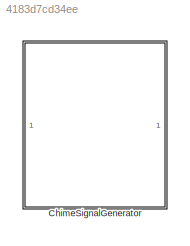
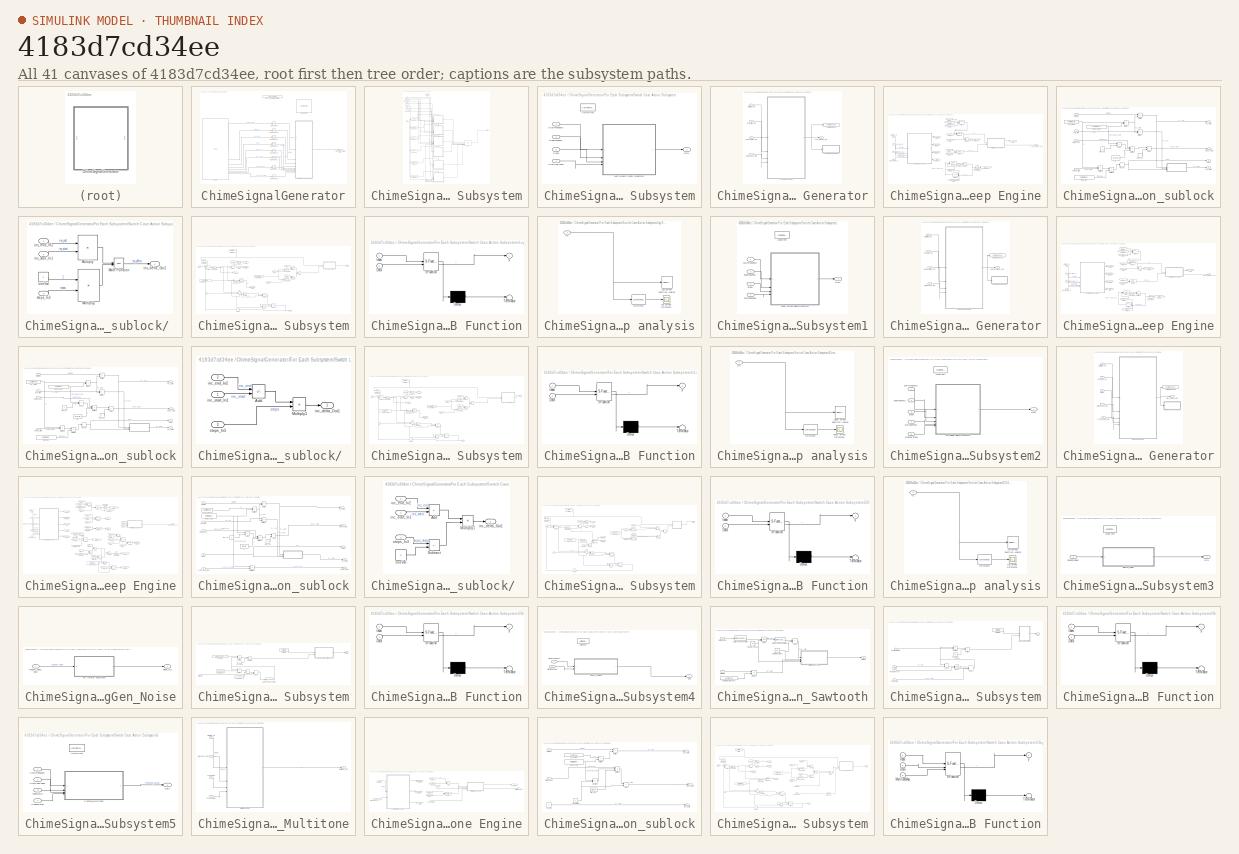
[diagram: thumbnail index - all 41 canvases of the model, root first then tree order]
MODEL slx_4183d7cd34ee
KIND library
CONFIG AbsTol = auto
CONFIG EnableMultiTasking = off
CONFIG FixedStep = auto
CONFIG MaxStep = auto
CONFIG MinStep = auto
CONFIG RelTol = 1e-3
CONFIG SampleTimeConstraint = Unconstrained
CONFIG SolverName = VariableStepAuto
CONFIG StartTime = 0.0
CONFIG StopTime = 10.0
BLOCK [SubSystem] ChimeSignalGenerator
BLOCK [Reference] ChimeSignalGenerator/FeaturePath  REF=FeaturePath/FeaturePath
  SourceBlock = FeaturePath/FeaturePath
  SourceType = Talaria Feature Path
BLOCK [SubSystem] ChimeSignalGenerator/For Each Subsystem
  TreatAsAtomicUnit = on
BLOCK [Inport] ChimeSignalGenerator/For Each Subsystem/CyclesPerSteps
  Partition = on
  PartitionDimension = 2
  PartitionOffset = 0
  PartitionWidth = 2
  Port = 8
BLOCK [DataTypeConversion] ChimeSignalGenerator/For Each Subsystem/Data Type Conversion
  OutDataTypeStr = single
  RndMeth = Floor
  SaturateOnIntegerOverflow = off
BLOCK [Inport] ChimeSignalGenerator/For Each Subsystem/EndFrequency
  Partition = on
  PartitionDimension = 2
  PartitionOffset = 0
  PartitionWidth = 2
  Port = 3
BLOCK [ForEach] ChimeSignalGenerator/For Each Subsystem/For Each
  DisableCoverage = on
BLOCK [Merge] ChimeSignalGenerator/For Each Subsystem/Merge
  Inputs = 6
BLOCK [Outport] ChimeSignalGenerator/For Each Subsystem/Out
  ConcatenationDimension = 2
BLOCK [Inport] ChimeSignalGenerator/For Each Subsystem/RandomNoise
  Partition = on
  PartitionDimension = 2
  PartitionOffset = 0
  PartitionWidth = 2
  Port = 7
BLOCK [Inport] ChimeSignalGenerator/For Each Subsystem/StartFrequency
  Partition = on
  PartitionDimension = 2
  PartitionOffset = 0
  PartitionWidth = 2
  Port = 2
BLOCK [Inport] ChimeSignalGenerator/For Each Subsystem/StartingPhase
  Partition = on
  PartitionDimension = 2
  PartitionOffset = 0
  PartitionWidth = 2
  Port = 5
BLOCK [Inport] ChimeSignalGenerator/For Each Subsystem/Steps
  Partition = on
  PartitionDimension = 2
  PartitionOffset = 0
  PartitionWidth = 2
  Port = 4
BLOCK [SwitchCase] ChimeSignalGenerator/For Each Subsystem/Switch Case
  ShowDefaultCase = off
BLOCK [SubSystem] ChimeSignalGenerator/For Each Subsystem/Switch Case Action Subsystem
  TreatAsAtomicUnit = on
BLOCK [ActionPort] ChimeSignalGenerator/For Each Subsystem/Switch Case Action Subsystem/Action Port
BLOCK [Inport] ChimeSignalGenerator/For Each Subsystem/Switch Case Action Subsystem/EndFrequency
  Port = 2
BLOCK [SubSystem] ChimeSignalGenerator/For Each Subsystem/Switch Case Action Subsystem/Log Sweep Signal Generator
BLOCK [SubSystem] ChimeSignalGenerator/For Each Subsystem/Switch Case Action Subsystem/Log Sweep Signal Generator/Log Sweep Engine
  TreatAsAtomicUnit = on
BLOCK [Reference] ChimeSignalGenerator/For Each Subsystem/Switch Case Action Subsystem/Log Sweep Signal Generator/Log Sweep Engine/Compare To Constant1  REF=simulink/Logic and Bit
Operations/Compare
To Constant
  NameLocation = top
  SourceBlock = simulink/Logic and Bit\nOperations/Compare\nTo Constant
  SourceType = Compare To Constant
BLOCK [SubSystem] ChimeSignalGenerator/For Each Subsystem/Switch Case Action Subsystem/Log Sweep Signal Generator/Log Sweep Engine/Configuration_sublock
BLOCK [SubSystem] ChimeSignalGenerator/For Each Subsystem/Switch Case Action Subsystem/Log Sweep Signal Generator/Log Sweep Engine/Configuration_sublock/ 
  TreatAsAtomicUnit = on
BLOCK [Math] ChimeSignalGenerator/For Each Subsystem/Switch Case Action Subsystem/Log Sweep Signal Generator/Log Sweep Engine/Configuration_sublock/ /Math Function
  Operator = pow
  SignedPower = on
BLOCK [Product] ChimeSignalGenerator/For Each Subsystem/Switch Case Action Subsystem/Log Sweep Signal Generator/Log Sweep Engine/Configuration_sublock/ /Multiply
  Inputs = */
BLOCK [Product] ChimeSignalGenerator/For Each Subsystem/Switch Case Action Subsystem/Log Sweep Signal Generator/Log Sweep Engine/Configuration_sublock/ /Multiply1
  Inputs = */
BLOCK [Outport] ChimeSignalGenerator/For Each Subsystem/Switch Case Action Subsystem/Log Sweep Signal Generator/Log Sweep Engine/Configuration_sublock/ /inc_delta_Out1
  VectorParamsAs1DForOutWhenUnconnected = off
BLOCK [Inport] ChimeSignalGenerator/For Each Subsystem/Switch Case Action Subsystem/Log Sweep Signal Generator/Log Sweep Engine/Configuration_sublock/ /inc_end_In2
  Port = 2
BLOCK [Inport] ChimeSignalGenerator/For Each Subsystem/Switch Case Action Subsystem/Log Sweep Signal Generator/Log Sweep Engine/Configuration_sublock/ /inc_start_In1
BLOCK [Constant] ChimeSignalGenerator/For Each Subsystem/Switch Case Action Subsystem/Log Sweep Signal Generator/Log Sweep Engine/Configuration_sublock/ /oneVal
  OutDataTypeStr = single
BLOCK [Inport] ChimeSignalGenerator/For Each Subsystem/Switch Case Action Subsystem/Log Sweep Signal Generator/Log Sweep Engine/Configuration_sublock/ /steps_In3
  Port = 3
BLOCK [Sum] ChimeSignalGenerator/For Each Subsystem/Switch Case Action Subsystem/Log Sweep Signal Generator/Log Sweep Engine/Configuration_sublock/Add
  IconShape = rectangular
BLOCK [Sum] ChimeSignalGenerator/For Each Subsystem/Switch Case Action Subsystem/Log Sweep Signal Generator/Log Sweep Engine/Configuration_sublock/Add1
  IconShape = rectangular
  Inputs = +-
BLOCK [Constant] ChimeSignalGenerator/For Each Subsystem/Switch Case Action Subsystem/Log Sweep Signal Generator/Log Sweep Engine/Configuration_sublock/Fs_value
  OutDataTypeStr = single
  Value = Config.FsHz
BLOCK [Product] ChimeSignalGenerator/For Each Subsystem/Switch Case Action Subsystem/Log Sweep Signal Generator/Log Sweep Engine/Configuration_sublock/Multiply
  Inputs = */
BLOCK [Product] ChimeSignalGenerator/For Each Subsystem/Switch Case Action Subsystem/Log Sweep Signal Generator/Log Sweep Engine/Configuration_sublock/Multiply1
  Inputs = */
BLOCK [Product] ChimeSignalGenerator/For Each Subsystem/Switch Case Action Subsystem/Log Sweep Signal Generator/Log Sweep Engine/Configuration_sublock/Multiply2
  Inputs = ***
BLOCK [Product] ChimeSignalGenerator/For Each Subsystem/Switch Case Action Subsystem/Log Sweep Signal Generator/Log Sweep Engine/Configuration_sublock/Multiply4
  Inputs = */
BLOCK [Product] ChimeSignalGenerator/For Each Subsystem/Switch Case Action Subsystem/Log Sweep Signal Generator/Log Sweep Engine/Configuration_sublock/Multiply5
  Inputs = **
BLOCK [Product] ChimeSignalGenerator/For Each Subsystem/Switch Case Action Subsystem/Log Sweep Signal Generator/Log Sweep Engine/Configuration_sublock/Multiply6
  Inputs = */
BLOCK [Rounding] ChimeSignalGenerator/For Each Subsystem/Switch Case Action Subsystem/Log Sweep Signal Generator/Log Sweep Engine/Configuration_sublock/Round
  Operator = round
BLOCK [Inport] ChimeSignalGenerator/For Each Subsystem/Switch Case Action Subsystem/Log Sweep Signal Generator/Log Sweep Engine/Configuration_sublock/end_freq
  Port = 2
BLOCK [Constant] ChimeSignalGenerator/For Each Subsystem/Switch Case Action Subsystem/Log Sweep Signal Generator/Log Sweep Engine/Configuration_sublock/framesize
  OutDataTypeStr = uint32
  Value = Config.FrameSizeSamples
  VectorParams1D = off
BLOCK [Outport] ChimeSignalGenerator/For Each Subsystem/Switch Case Action Subsystem/Log Sweep Signal Generator/Log Sweep Engine/Configuration_sublock/inc_delta
  Port = 4
  VectorParamsAs1DForOutWhenUnconnected = off
BLOCK [Outport] ChimeSignalGenerator/For Each Subsystem/Switch Case Action Subsystem/Log Sweep Signal Generator/Log Sweep Engine/Configuration_sublock/inc_start
  VectorParamsAs1DForOutWhenUnconnected = off
BLOCK [Outport] ChimeSignalGenerator/For Each Subsystem/Switch Case Action Subsystem/Log Sweep Signal Generator/Log Sweep Engine/Configuration_sublock/index_start
  Port = 3
  VectorParamsAs1DForOutWhenUnconnected = off
BLOCK [Constant] ChimeSignalGenerator/For Each Subsystem/Switch Case Action Subsystem/Log Sweep Signal Generator/Log Sweep Engine/Configuration_sublock/pi
  OutDataTypeStr = single
  Value = 1/(2*pi)
  VectorParams1D = off
BLOCK [Inport] ChimeSignalGenerator/For Each Subsystem/Switch Case Action Subsystem/Log Sweep Signal Generator/Log Sweep Engine/Configuration_sublock/start_freq
BLOCK [Inport] ChimeSignalGenerator/For Each Subsystem/Switch Case Action Subsystem/Log Sweep Signal Generator/Log Sweep Engine/Configuration_sublock/start_phase
  Port = 3
BLOCK [Outport] ChimeSignalGenerator/For Each Subsystem/Switch Case Action Subsystem/Log Sweep Signal Generator/Log Sweep Engine/Configuration_sublock/steps
  Port = 2
  VectorParamsAs1DForOutWhenUnconnected = off
BLOCK [Inport] ChimeSignalGenerator/For Each Subsystem/Switch Case Action Subsystem/Log Sweep Signal Generator/Log Sweep Engine/Configuration_sublock/sweep_time 
  Port = 4
BLOCK [Constant] ChimeSignalGenerator/For Each Subsystem/Switch Case Action Subsystem/Log Sweep Signal Generator/Log Sweep Engine/Configuration_sublock/tableLength
  OutDataTypeStr = single
  Value = Config.SineTableLength
  VectorParams1D = off
BLOCK [Constant] ChimeSignalGenerator/For Each Subsystem/Switch Case Action Subsystem/Log Sweep Signal Generator/Log Sweep Engine/Configuration_sublock/two_val
  OutDataTypeStr = uint32
  VectorParams1D = off
BLOCK [Constant] ChimeSignalGenerator/For Each Subsystem/Switch Case Action Subsystem/Log Sweep Signal Generator/Log Sweep Engine/Configuration_sublock/zero_Val
  OutDataTypeStr = single
  VectorParams1D = off
BLOCK [Constant] ChimeSignalGenerator/For Each Subsystem/Switch Case Action Subsystem/Log Sweep Signal Generator/Log Sweep Engine/Constant1
  OutDataTypeStr = single
BLOCK [Delay] ChimeSignalGenerator/For Each Subsystem/Switch Case Action Subsystem/Log Sweep Signal Generator/Log Sweep Engine/Delay
  DelayLength = 1
  InitialConditionSource = Input port
  InputPortMap = u0,p4
BLOCK [Delay] ChimeSignalGenerator/For Each Subsystem/Switch Case Action Subsystem/Log Sweep Signal Generator/Log Sweep Engine/Delay1
  DelayLength = 1
  InitialConditionSource = Input port
  InputPortMap = u0,p4
BLOCK [Delay] ChimeSignalGenerator/For Each Subsystem/Switch Case Action Subsystem/Log Sweep Signal Generator/Log Sweep Engine/Delay2
  DelayLength = 1
  InitialConditionSource = Input port
  InputPortMap = u0,p4
BLOCK [SubSystem] ChimeSignalGenerator/For Each Subsystem/Switch Case Action Subsystem/Log Sweep Signal Generator/Log Sweep Engine/For Iterator Subsystem
  TreatAsAtomicUnit = on
BLOCK [Sum] ChimeSignalGenerator/For Each Subsystem/Switch Case Action Subsystem/Log Sweep Signal Generator/Log Sweep Engine/For Iterator Subsystem/Add
  IconShape = rectangular
BLOCK [Sum] ChimeSignalGenerator/For Each Subsystem/Switch Case Action Subsystem/Log Sweep Signal Generator/Log Sweep Engine/For Iterator Subsystem/Add2
  IconShape = rectangular
BLOCK [Sum] ChimeSignalGenerator/For Each Subsystem/Switch Case Action Subsystem/Log Sweep Signal Generator/Log Sweep Engine/For Iterator Subsystem/Add3
  IconShape = rectangular
BLOCK [Reference] ChimeSignalGenerator/For Each Subsystem/Switch Case Action Subsystem/Log Sweep Signal Generator/Log Sweep Engine/For Iterator Subsystem/Bitwise AND  REF=simulink/Logic and Bit
Operations/Bitwise
Operator
  SourceBlock = simulink/Logic and Bit\nOperations/Bitwise\nOperator
  SourceType = Bitwise Operator
BLOCK [Reference] ChimeSignalGenerator/For Each Subsystem/Switch Case Action Subsystem/Log Sweep Signal Generator/Log Sweep Engine/For Iterator Subsystem/Compare To Constant  REF=simulink/Logic and Bit
Operations/Compare
To Constant
  SourceBlock = simulink/Logic and Bit\nOperations/Compare\nTo Constant
  SourceType = Compare To Constant
BLOCK [Constant] ChimeSignalGenerator/For Each Subsystem/Switch Case Action Subsystem/Log Sweep Signal Generator/Log Sweep Engine/For Iterator Subsystem/Constant1
  OutDataTypeStr = single
BLOCK [DataTypeConversion] ChimeSignalGenerator/For Each Subsystem/Switch Case Action Subsystem/Log Sweep Signal Generator/Log Sweep Engine/For Iterator Subsystem/Data Type Conversion
  OutDataTypeStr = uint32
  RndMeth = Floor
  SaturateOnIntegerOverflow = off
BLOCK [DataTypeConversion] ChimeSignalGenerator/For Each Subsystem/Switch Case Action Subsystem/Log Sweep Signal Generator/Log Sweep Engine/For Iterator Subsystem/Data Type Conversion1
  OutDataTypeStr = uint32
  RndMeth = Floor
  SaturateOnIntegerOverflow = off
BLOCK [Delay] ChimeSignalGenerator/For Each Subsystem/Switch Case Action Subsystem/Log Sweep Signal Generator/Log Sweep Engine/For Iterator Subsystem/Delay
  DelayLength = 0
  InputPortMap = u0
BLOCK [ForIterator] ChimeSignalGenerator/For Each Subsystem/Switch Case Action Subsystem/Log Sweep Signal Generator/Log Sweep Engine/For Iterator Subsystem/For Iterator
  IterationLimit = Config.FrameSizeSamples
  ResetStates = reset
BLOCK [From] ChimeSignalGenerator/For Each Subsystem/Switch Case Action Subsystem/Log Sweep Signal Generator/Log Sweep Engine/For Iterator Subsystem/From
  GotoTag = w0
BLOCK [From] ChimeSignalGenerator/For Each Subsystem/Switch Case Action Subsystem/Log Sweep Signal Generator/Log Sweep Engine/For Iterator Subsystem/From1
  GotoTag = w1
BLOCK [From] ChimeSignalGenerator/For Each Subsystem/Switch Case Action Subsystem/Log Sweep Signal Generator/Log Sweep Engine/For Iterator Subsystem/From2
  GotoTag = m0
BLOCK [From] ChimeSignalGenerator/For Each Subsystem/Switch Case Action Subsystem/Log Sweep Signal Generator/Log Sweep Engine/For Iterator Subsystem/From4
  GotoTag = m1
BLOCK [Goto] ChimeSignalGenerator/For Each Subsystem/Switch Case Action Subsystem/Log Sweep Signal Generator/Log Sweep Engine/For Iterator Subsystem/Goto
  GotoTag = w0
BLOCK [Goto] ChimeSignalGenerator/For Each Subsystem/Switch Case Action Subsystem/Log Sweep Signal Generator/Log Sweep Engine/For Iterator Subsystem/Goto1
  GotoTag = w1
BLOCK [Goto] ChimeSignalGenerator/For Each Subsystem/Switch Case Action Subsystem/Log Sweep Signal Generator/Log Sweep Engine/For Iterator Subsystem/Goto2
  GotoTag = m0
BLOCK [Goto] ChimeSignalGenerator/For Each Subsystem/Switch Case Action Subsystem/Log Sweep Signal Generator/Log Sweep Engine/For Iterator Subsystem/Goto3
  GotoTag = m1
BLOCK [Inport] ChimeSignalGenerator/For Each Subsystem/Switch Case Action Subsystem/Log Sweep Signal Generator/Log Sweep Engine/For Iterator Subsystem/Inc 
BLOCK [Selector] ChimeSignalGenerator/For Each Subsystem/Switch Case Action Subsystem/Log Sweep Signal Generator/Log Sweep Engine/For Iterator Subsystem/LookUpTable
  IndexMode = Zero-based
  IndexOptions = Index vector (port)
  Indices = [1 3]
  InputPortWidth = Config.SineTableLength
  OutputSizes = 1
BLOCK [Selector] ChimeSignalGenerator/For Each Subsystem/Switch Case Action Subsystem/Log Sweep Signal Generator/Log Sweep Engine/For Iterator Subsystem/LookUpTable1
  IndexMode = Zero-based
  IndexOptions = Index vector (port)
  Indices = [1 3]
  InputPortWidth = Config.SineTableLength
  OutputSizes = 1
BLOCK [SubSystem] ChimeSignalGenerator/For Each Subsystem/Switch Case Action Subsystem/Log Sweep Signal Generator/Log Sweep Engine/For Iterator Subsystem/MATLAB Function
  ErrorFcn = Stateflow.Translate.translate
  PermitHierarchicalResolution = ExplicitOnly
  SFBlockType = MATLAB Function
  TreatAsAtomicUnit = on
BLOCK [Demux] ChimeSignalGenerator/For Each Subsystem/Switch Case Action Subsystem/Log Sweep Signal Generator/Log Sweep Engine/For Iterator Subsystem/MATLAB Function/ Demux 
  Outputs = 1
BLOCK [S-Function] ChimeSignalGenerator/For Each Subsystem/Switch Case Action Subsystem/Log Sweep Signal Generator/Log Sweep Engine/For Iterator Subsystem/MATLAB Function/ SFunction 
  EnableBusSupport = off
  FunctionName = sf_sfun
  Parameters = frameSize_samples
  PortCounts = [2 2]
  SFcnIsStateOwnerBlock = off
  SFunctionDeploymentMode = off
  Tag = Stateflow S-Function 59
BLOCK [Terminator] ChimeSignalGenerator/For Each Subsystem/Switch Case Action Subsystem/Log Sweep Signal Generator/Log Sweep Engine/For Iterator Subsystem/MATLAB Function/ Terminator 
BLOCK [Inport] ChimeSignalGenerator/For Each Subsystem/Switch Case Action Subsystem/Log Sweep Signal Generator/Log Sweep Engine/For Iterator Subsystem/MATLAB Function/Data
  Port = 2
BLOCK [Inport] ChimeSignalGenerator/For Each Subsystem/Switch Case Action Subsystem/Log Sweep Signal Generator/Log Sweep Engine/For Iterator Subsystem/MATLAB Function/Index
BLOCK [Outport] ChimeSignalGenerator/For Each Subsystem/Switch Case Action Subsystem/Log Sweep Signal Generator/Log Sweep Engine/For Iterator Subsystem/MATLAB Function/y
  VectorParamsAs1DForOutWhenUnconnected = off
BLOCK [Memory] ChimeSignalGenerator/For Each Subsystem/Switch Case Action Subsystem/Log Sweep Signal Generator/Log Sweep Engine/For Iterator Subsystem/Memory
  InheritSampleTime = on
BLOCK [Outport] ChimeSignalGenerator/For Each Subsystem/Switch Case Action Subsystem/Log Sweep Signal Generator/Log Sweep Engine/For Iterator Subsystem/Out1
  Port = 2
  VectorParamsAs1DForOutWhenUnconnected = off
BLOCK [Product] ChimeSignalGenerator/For Each Subsystem/Switch Case Action Subsystem/Log Sweep Signal Generator/Log Sweep Engine/For Iterator Subsystem/Product
BLOCK [Product] ChimeSignalGenerator/For Each Subsystem/Switch Case Action Subsystem/Log Sweep Signal Generator/Log Sweep Engine/For Iterator Subsystem/Product1
BLOCK [Sum] ChimeSignalGenerator/For Each Subsystem/Switch Case Action Subsystem/Log Sweep Signal Generator/Log Sweep Engine/For Iterator Subsystem/Subtract
  IconShape = rectangular
  Inputs = +-
  OutDataTypeStr = single
BLOCK [Sum] ChimeSignalGenerator/For Each Subsystem/Switch Case Action Subsystem/Log Sweep Signal Generator/Log Sweep Engine/For Iterator Subsystem/Subtract1
  IconShape = rectangular
  Inputs = +-
  OutDataTypeStr = single
BLOCK [Sum] ChimeSignalGenerator/For Each Subsystem/Switch Case Action Subsystem/Log Sweep Signal Generator/Log Sweep Engine/For Iterator Subsystem/Subtract2
  IconShape = rectangular
  Inputs = +-
BLOCK [Switch] ChimeSignalGenerator/For Each Subsystem/Switch Case Action Subsystem/Log Sweep Signal Generator/Log Sweep Engine/For Iterator Subsystem/Switch
  Criteria = u2 ~= 0
  InputSameDT = off
  SaturateOnIntegerOverflow = off
BLOCK [Switch] ChimeSignalGenerator/For Each Subsystem/Switch Case Action Subsystem/Log Sweep Signal Generator/Log Sweep Engine/For Iterator Subsystem/Switch1
  InputSameDT = off
  SaturateOnIntegerOverflow = off
BLOCK [Switch] ChimeSignalGenerator/For Each Subsystem/Switch Case Action Subsystem/Log Sweep Signal Generator/Log Sweep Engine/For Iterator Subsystem/Switch2
  InputSameDT = off
  SaturateOnIntegerOverflow = off
BLOCK [Constant] ChimeSignalGenerator/For Each Subsystem/Switch Case Action Subsystem/Log Sweep Signal Generator/Log Sweep Engine/For Iterator Subsystem/TableLength
  OutDataTypeStr = single
  Value = Config.SineTableLength
  VectorParams1D = off
BLOCK [Inport] ChimeSignalGenerator/For Each Subsystem/Switch Case Action Subsystem/Log Sweep Signal Generator/Log Sweep Engine/For Iterator Subsystem/index
  Port = 2
BLOCK [Outport] ChimeSignalGenerator/For Each Subsystem/Switch Case Action Subsystem/Log Sweep Signal Generator/Log Sweep Engine/For Iterator Subsystem/m
  VectorParamsAs1DForOutWhenUnconnected = off
BLOCK [Constant] ChimeSignalGenerator/For Each Subsystem/Switch Case Action Subsystem/Log Sweep Signal Generator/Log Sweep Engine/For Iterator Subsystem/sineTable
  OutDataTypeStr = single
  Value = Config.SineTable
BLOCK [From] ChimeSignalGenerator/For Each Subsystem/Switch Case Action Subsystem/Log Sweep Signal Generator/Log Sweep Engine/From
  GotoTag = Delta
BLOCK [From] ChimeSignalGenerator/For Each Subsystem/Switch Case Action Subsystem/Log Sweep Signal Generator/Log Sweep Engine/From1
  GotoTag = Index_init
BLOCK [From] ChimeSignalGenerator/For Each Subsystem/Switch Case Action Subsystem/Log Sweep Signal Generator/Log Sweep Engine/From2
  GotoTag = Step_Init
BLOCK [From] ChimeSignalGenerator/For Each Subsystem/Switch Case Action Subsystem/Log Sweep Signal Generator/Log Sweep Engine/From3
  GotoTag = If_Step_Gt_zero
BLOCK [From] ChimeSignalGenerator/For Each Subsystem/Switch Case Action Subsystem/Log Sweep Signal Generator/Log Sweep Engine/From4
  GotoTag = m
BLOCK [From] ChimeSignalGenerator/For Each Subsystem/Switch Case Action Subsystem/Log Sweep Signal Generator/Log Sweep Engine/From5
  GotoTag = If_Step_Gt_zero
BLOCK [From] ChimeSignalGenerator/For Each Subsystem/Switch Case Action Subsystem/Log Sweep Signal Generator/Log Sweep Engine/From6
  GotoTag = Inc_add_delta
BLOCK [From] ChimeSignalGenerator/For Each Subsystem/Switch Case Action Subsystem/Log Sweep Signal Generator/Log Sweep Engine/From7
  GotoTag = Inc_init
BLOCK [From] ChimeSignalGenerator/For Each Subsystem/Switch Case Action Subsystem/Log Sweep Signal Generator/Log Sweep Engine/From8
  GotoTag = Inc_init
BLOCK [Goto] ChimeSignalGenerator/For Each Subsystem/Switch Case Action Subsystem/Log Sweep Signal Generator/Log Sweep Engine/Goto
  GotoTag = Delta
BLOCK [Goto] ChimeSignalGenerator/For Each Subsystem/Switch Case Action Subsystem/Log Sweep Signal Generator/Log Sweep Engine/Goto1
  GotoTag = Index_init
BLOCK [Goto] ChimeSignalGenerator/For Each Subsystem/Switch Case Action Subsystem/Log Sweep Signal Generator/Log Sweep Engine/Goto2
  GotoTag = Step_Init
BLOCK [Goto] ChimeSignalGenerator/For Each Subsystem/Switch Case Action Subsystem/Log Sweep Signal Generator/Log Sweep Engine/Goto3
  GotoTag = If_Step_Gt_zero
BLOCK [Goto] ChimeSignalGenerator/For Each Subsystem/Switch Case Action Subsystem/Log Sweep Signal Generator/Log Sweep Engine/Goto4
  GotoTag = m
BLOCK [Goto] ChimeSignalGenerator/For Each Subsystem/Switch Case Action Subsystem/Log Sweep Signal Generator/Log Sweep Engine/Goto5
  GotoTag = Inc_add_delta
BLOCK [Goto] ChimeSignalGenerator/For Each Subsystem/Switch Case Action Subsystem/Log Sweep Signal Generator/Log Sweep Engine/Goto6
  GotoTag = Inc_init
BLOCK [Outport] ChimeSignalGenerator/For Each Subsystem/Switch Case Action Subsystem/Log Sweep Signal Generator/Log Sweep Engine/Log_Sweep_Out
  VectorParamsAs1DForOutWhenUnconnected = off
BLOCK [Product] ChimeSignalGenerator/For Each Subsystem/Switch Case Action Subsystem/Log Sweep Signal Generator/Log Sweep Engine/Product
BLOCK [Sum] ChimeSignalGenerator/For Each Subsystem/Switch Case Action Subsystem/Log Sweep Signal Generator/Log Sweep Engine/Subtract
  IconShape = rectangular
  Inputs = +-
BLOCK [Switch] ChimeSignalGenerator/For Each Subsystem/Switch Case Action Subsystem/Log Sweep Signal Generator/Log Sweep Engine/Switch1
  Criteria = u2 ~= 0
  InputSameDT = off
  NameLocation = top
  SaturateOnIntegerOverflow = off
BLOCK [Switch] ChimeSignalGenerator/For Each Subsystem/Switch Case Action Subsystem/Log Sweep Signal Generator/Log Sweep Engine/Switch2
  Criteria = u2 ~= 0
  InputSameDT = off
  SaturateOnIntegerOverflow = off
BLOCK [Inport] ChimeSignalGenerator/For Each Subsystem/Switch Case Action Subsystem/Log Sweep Signal Generator/Log Sweep Engine/end_freq_In
  Port = 2
BLOCK [Inport] ChimeSignalGenerator/For Each Subsystem/Switch Case Action Subsystem/Log Sweep Signal Generator/Log Sweep Engine/start_freq_In
BLOCK [Inport] ChimeSignalGenerator/For Each Subsystem/Switch Case Action Subsystem/Log Sweep Signal Generator/Log Sweep Engine/start_phase_In
  Port = 4
BLOCK [Inport] ChimeSignalGenerator/For Each Subsystem/Switch Case Action Subsystem/Log Sweep Signal Generator/Log Sweep Engine/sweep_time_In
  Port = 3
BLOCK [SubSystem] ChimeSignalGenerator/For Each Subsystem/Switch Case Action Subsystem/Log Sweep Signal Generator/Log sweep analysis
  Commented = on
BLOCK [Reference] ChimeSignalGenerator/For Each Subsystem/Switch Case Action Subsystem/Log Sweep Signal Generator/Log sweep analysis/Difference  REF=dspmathops/Difference
  SourceBlock = dspmathops/Difference
  SourceType = Difference
  UserDataPersistent = on
BLOCK [Inport] ChimeSignalGenerator/For Each Subsystem/Switch Case Action Subsystem/Log Sweep Signal Generator/Log sweep analysis/In1
BLOCK [Scope] ChimeSignalGenerator/For Each Subsystem/Switch Case Action Subsystem/Log Sweep Signal Generator/Log sweep analysis/Log Sweep Difference
  DefaultConfigurationName = spbscopes.TimeScopeBlockCfg
  Floating = off
  NumInputPorts = 1
  ScopeSpecificationString = spbscopes.TimeScopeBlockCfg('CurrentConfiguration', extmgr.ConfigurationSet(extmgr.Configuration('Core','General UI',true,'FigureColor',[0.156862745098039 0.156862745098039 0.156862745098039]),extmgr.Configuration('Core','Source UI',true),extmgr.Configuration('Sources','WiredSimulink',true,'DataLoggingVariableName','ScopeData6'),extmgr.Configuration('Visuals','Time Domain',true,'DisplayPropertyDef...<+1454ch>  <repeated x3 — deduplicated; at blocks: Log Sweep Difference, Linear Sweep Difference, Old Sweep Difference>
  UserDataPersistent = on
BLOCK [SpectrumAnalyzer] ChimeSignalGenerator/For Each Subsystem/Switch Case Action Subsystem/Log Sweep Signal Generator/Log sweep analysis/Log Sweep Spectrum Analyzer
  ScopeSpecificationString = spbscopes.SpectrumAnalyzerBlockCfg('CurrentConfiguration', extmgr.ConfigurationSet(extmgr.Configuration('Core','General UI',true),extmgr.Configuration('Core','Source UI',true),extmgr.Configuration('Sources','WiredSimulink',true),extmgr.Configuration('Visuals','Spectrum',true,'AxesProperties',struct('Color',{[0 0 0],[0 0 0]},'XColor',{[0.686274509803922 0.686274509803922 0.686274509803922],[0.68627...<+2154ch>  <repeated x3 — deduplicated; at blocks: Log Sweep Spectrum Analyzer, Linear Sweep Spectrum Analyzer, Old Sweep Spectrum Analyzer>
BLOCK [Outport] ChimeSignalGenerator/For Each Subsystem/Switch Case Action Subsystem/Log Sweep Signal Generator/Log_Sweep_Out
  VectorParamsAs1DForOutWhenUnconnected = off
BLOCK [ToWorkspace] ChimeSignalGenerator/For Each Subsystem/Switch Case Action Subsystem/Log Sweep Signal Generator/To Workspace
  Commented = on
  MaxDataPoints = inf
  SampleTime = -1
  Save2DSignal = 2-D array (concatenate along first dimension)
  VariableName = LogSweepOutput
BLOCK [Inport] ChimeSignalGenerator/For Each Subsystem/Switch Case Action Subsystem/Log Sweep Signal Generator/end_freq_Hz
  Port = 2
BLOCK [Inport] ChimeSignalGenerator/For Each Subsystem/Switch Case Action Subsystem/Log Sweep Signal Generator/start_freq_Hz
BLOCK [Inport] ChimeSignalGenerator/For Each Subsystem/Switch Case Action Subsystem/Log Sweep Signal Generator/start_phase_rad
  Port = 4
BLOCK [Inport] ChimeSignalGenerator/For Each Subsystem/Switch Case Action Subsystem/Log Sweep Signal Generator/sweep_time_sec
  Port = 3
BLOCK [Outport] ChimeSignalGenerator/For Each Subsystem/Switch Case Action Subsystem/Out1
BLOCK [Inport] ChimeSignalGenerator/For Each Subsystem/Switch Case Action Subsystem/StartFrequency
BLOCK [Inport] ChimeSignalGenerator/For Each Subsystem/Switch Case Action Subsystem/StartingPhase
  Port = 4
BLOCK [Inport] ChimeSignalGenerator/For Each Subsystem/Switch Case Action Subsystem/Steps
  Port = 3
BLOCK [SubSystem] ChimeSignalGenerator/For Each Subsystem/Switch Case Action Subsystem1
  TreatAsAtomicUnit = on
BLOCK [ActionPort] ChimeSignalGenerator/For Each Subsystem/Switch Case Action Subsystem1/Action Port
BLOCK [Inport] ChimeSignalGenerator/For Each Subsystem/Switch Case Action Subsystem1/EndFrequency
  Port = 2
BLOCK [SubSystem] ChimeSignalGenerator/For Each Subsystem/Switch Case Action Subsystem1/Linear Sweep Signal Generator
BLOCK [SubSystem] ChimeSignalGenerator/For Each Subsystem/Switch Case Action Subsystem1/Linear Sweep Signal Generator/Linear Sweep Engine
  TreatAsAtomicUnit = on
BLOCK [Sum] ChimeSignalGenerator/For Each Subsystem/Switch Case Action Subsystem1/Linear Sweep Signal Generator/Linear Sweep Engine/Add
  IconShape = rectangular
BLOCK [Reference] ChimeSignalGenerator/For Each Subsystem/Switch Case Action Subsystem1/Linear Sweep Signal Generator/Linear Sweep Engine/Compare To Constant1  REF=simulink/Logic and Bit
Operations/Compare
To Constant
  NameLocation = top
  SourceBlock = simulink/Logic and Bit\nOperations/Compare\nTo Constant
  SourceType = Compare To Constant
BLOCK [SubSystem] ChimeSignalGenerator/For Each Subsystem/Switch Case Action Subsystem1/Linear Sweep Signal Generator/Linear Sweep Engine/Configuration_sublock
BLOCK [SubSystem] ChimeSignalGenerator/For Each Subsystem/Switch Case Action Subsystem1/Linear Sweep Signal Generator/Linear Sweep Engine/Configuration_sublock/ 
  TreatAsAtomicUnit = on
BLOCK [Sum] ChimeSignalGenerator/For Each Subsystem/Switch Case Action Subsystem1/Linear Sweep Signal Generator/Linear Sweep Engine/Configuration_sublock/ /Add
  IconShape = rectangular
  Inputs = +-
BLOCK [Product] ChimeSignalGenerator/For Each Subsystem/Switch Case Action Subsystem1/Linear Sweep Signal Generator/Linear Sweep Engine/Configuration_sublock/ /Multiply1
  Inputs = */
BLOCK [Outport] ChimeSignalGenerator/For Each Subsystem/Switch Case Action Subsystem1/Linear Sweep Signal Generator/Linear Sweep Engine/Configuration_sublock/ /inc_delta_Out1
  VectorParamsAs1DForOutWhenUnconnected = off
BLOCK [Inport] ChimeSignalGenerator/For Each Subsystem/Switch Case Action Subsystem1/Linear Sweep Signal Generator/Linear Sweep Engine/Configuration_sublock/ /inc_end_In2
  Port = 2
BLOCK [Inport] ChimeSignalGenerator/For Each Subsystem/Switch Case Action Subsystem1/Linear Sweep Signal Generator/Linear Sweep Engine/Configuration_sublock/ /inc_start_In1
BLOCK [Inport] ChimeSignalGenerator/For Each Subsystem/Switch Case Action Subsystem1/Linear Sweep Signal Generator/Linear Sweep Engine/Configuration_sublock/ /steps_In3
  Port = 3
BLOCK [Sum] ChimeSignalGenerator/For Each Subsystem/Switch Case Action Subsystem1/Linear Sweep Signal Generator/Linear Sweep Engine/Configuration_sublock/Add
  IconShape = rectangular
BLOCK [Sum] ChimeSignalGenerator/For Each Subsystem/Switch Case Action Subsystem1/Linear Sweep Signal Generator/Linear Sweep Engine/Configuration_sublock/Add1
  IconShape = rectangular
  Inputs = +-
BLOCK [Constant] ChimeSignalGenerator/For Each Subsystem/Switch Case Action Subsystem1/Linear Sweep Signal Generator/Linear Sweep Engine/Configuration_sublock/Fs_value
  OutDataTypeStr = single
  Value = Config.FsHz
BLOCK [Product] ChimeSignalGenerator/For Each Subsystem/Switch Case Action Subsystem1/Linear Sweep Signal Generator/Linear Sweep Engine/Configuration_sublock/Multiply
  Inputs = */
BLOCK [Product] ChimeSignalGenerator/For Each Subsystem/Switch Case Action Subsystem1/Linear Sweep Signal Generator/Linear Sweep Engine/Configuration_sublock/Multiply1
  Inputs = */
BLOCK [Product] ChimeSignalGenerator/For Each Subsystem/Switch Case Action Subsystem1/Linear Sweep Signal Generator/Linear Sweep Engine/Configuration_sublock/Multiply2
  Inputs = ***
BLOCK [Product] ChimeSignalGenerator/For Each Subsystem/Switch Case Action Subsystem1/Linear Sweep Signal Generator/Linear Sweep Engine/Configuration_sublock/Multiply4
  Inputs = */
BLOCK [Product] ChimeSignalGenerator/For Each Subsystem/Switch Case Action Subsystem1/Linear Sweep Signal Generator/Linear Sweep Engine/Configuration_sublock/Multiply5
  Inputs = **
BLOCK [Product] ChimeSignalGenerator/For Each Subsystem/Switch Case Action Subsystem1/Linear Sweep Signal Generator/Linear Sweep Engine/Configuration_sublock/Multiply6
  Inputs = */
BLOCK [Rounding] ChimeSignalGenerator/For Each Subsystem/Switch Case Action Subsystem1/Linear Sweep Signal Generator/Linear Sweep Engine/Configuration_sublock/Round
  Operator = round
BLOCK [Inport] ChimeSignalGenerator/For Each Subsystem/Switch Case Action Subsystem1/Linear Sweep Signal Generator/Linear Sweep Engine/Configuration_sublock/end_freq
  Port = 2
BLOCK [Constant] ChimeSignalGenerator/For Each Subsystem/Switch Case Action Subsystem1/Linear Sweep Signal Generator/Linear Sweep Engine/Configuration_sublock/framesize
  OutDataTypeStr = uint32
  Value = Config.FrameSizeSamples
  VectorParams1D = off
BLOCK [Outport] ChimeSignalGenerator/For Each Subsystem/Switch Case Action Subsystem1/Linear Sweep Signal Generator/Linear Sweep Engine/Configuration_sublock/inc_delta
  Port = 4
  VectorParamsAs1DForOutWhenUnconnected = off
BLOCK [Outport] ChimeSignalGenerator/For Each Subsystem/Switch Case Action Subsystem1/Linear Sweep Signal Generator/Linear Sweep Engine/Configuration_sublock/inc_start
  VectorParamsAs1DForOutWhenUnconnected = off
BLOCK [Outport] ChimeSignalGenerator/For Each Subsystem/Switch Case Action Subsystem1/Linear Sweep Signal Generator/Linear Sweep Engine/Configuration_sublock/index_start
  Port = 3
  VectorParamsAs1DForOutWhenUnconnected = off
BLOCK [Constant] ChimeSignalGenerator/For Each Subsystem/Switch Case Action Subsystem1/Linear Sweep Signal Generator/Linear Sweep Engine/Configuration_sublock/pi
  OutDataTypeStr = single
  Value = 1/(2*pi)
  VectorParams1D = off
BLOCK [Inport] ChimeSignalGenerator/For Each Subsystem/Switch Case Action Subsystem1/Linear Sweep Signal Generator/Linear Sweep Engine/Configuration_sublock/start_freq
BLOCK [Inport] ChimeSignalGenerator/For Each Subsystem/Switch Case Action Subsystem1/Linear Sweep Signal Generator/Linear Sweep Engine/Configuration_sublock/start_phase
  Port = 3
BLOCK [Outport] ChimeSignalGenerator/For Each Subsystem/Switch Case Action Subsystem1/Linear Sweep Signal Generator/Linear Sweep Engine/Configuration_sublock/steps
  Port = 2
  VectorParamsAs1DForOutWhenUnconnected = off
BLOCK [Inport] ChimeSignalGenerator/For Each Subsystem/Switch Case Action Subsystem1/Linear Sweep Signal Generator/Linear Sweep Engine/Configuration_sublock/sweep_time 
  Port = 4
BLOCK [Constant] ChimeSignalGenerator/For Each Subsystem/Switch Case Action Subsystem1/Linear Sweep Signal Generator/Linear Sweep Engine/Configuration_sublock/tableLength
  OutDataTypeStr = single
  Value = Config.SineTableLength
  VectorParams1D = off
BLOCK [Constant] ChimeSignalGenerator/For Each Subsystem/Switch Case Action Subsystem1/Linear Sweep Signal Generator/Linear Sweep Engine/Configuration_sublock/two_val
  OutDataTypeStr = uint32
  VectorParams1D = off
BLOCK [Constant] ChimeSignalGenerator/For Each Subsystem/Switch Case Action Subsystem1/Linear Sweep Signal Generator/Linear Sweep Engine/Configuration_sublock/zero_Val
  OutDataTypeStr = single
  VectorParams1D = off
BLOCK [Constant] ChimeSignalGenerator/For Each Subsystem/Switch Case Action Subsystem1/Linear Sweep Signal Generator/Linear Sweep Engine/Constant1
  OutDataTypeStr = single
BLOCK [Delay] ChimeSignalGenerator/For Each Subsystem/Switch Case Action Subsystem1/Linear Sweep Signal Generator/Linear Sweep Engine/Delay
  DelayLength = 1
  InitialConditionSource = Input port
  InputPortMap = u0,p4
BLOCK [Delay] ChimeSignalGenerator/For Each Subsystem/Switch Case Action Subsystem1/Linear Sweep Signal Generator/Linear Sweep Engine/Delay1
  DelayLength = 1
  InitialConditionSource = Input port
  InputPortMap = u0,p4
BLOCK [Delay] ChimeSignalGenerator/For Each Subsystem/Switch Case Action Subsystem1/Linear Sweep Signal Generator/Linear Sweep Engine/Delay2
  DelayLength = 1
  InitialConditionSource = Input port
  InputPortMap = u0,p4
BLOCK [SubSystem] ChimeSignalGenerator/For Each Subsystem/Switch Case Action Subsystem1/Linear Sweep Signal Generator/Linear Sweep Engine/For Iterator Subsystem
  TreatAsAtomicUnit = on
BLOCK [Sum] ChimeSignalGenerator/For Each Subsystem/Switch Case Action Subsystem1/Linear Sweep Signal Generator/Linear Sweep Engine/For Iterator Subsystem/Add
  IconShape = rectangular
BLOCK [Sum] ChimeSignalGenerator/For Each Subsystem/Switch Case Action Subsystem1/Linear Sweep Signal Generator/Linear Sweep Engine/For Iterator Subsystem/Add2
  IconShape = rectangular
BLOCK [Sum] ChimeSignalGenerator/For Each Subsystem/Switch Case Action Subsystem1/Linear Sweep Signal Generator/Linear Sweep Engine/For Iterator Subsystem/Add3
  IconShape = rectangular
BLOCK [Reference] ChimeSignalGenerator/For Each Subsystem/Switch Case Action Subsystem1/Linear Sweep Signal Generator/Linear Sweep Engine/For Iterator Subsystem/Bitwise AND  REF=simulink/Logic and Bit
Operations/Bitwise
Operator
  SourceBlock = simulink/Logic and Bit\nOperations/Bitwise\nOperator
  SourceType = Bitwise Operator
BLOCK [Reference] ChimeSignalGenerator/For Each Subsystem/Switch Case Action Subsystem1/Linear Sweep Signal Generator/Linear Sweep Engine/For Iterator Subsystem/Compare To Constant  REF=simulink/Logic and Bit
Operations/Compare
To Constant
  SourceBlock = simulink/Logic and Bit\nOperations/Compare\nTo Constant
  SourceType = Compare To Constant
BLOCK [Constant] ChimeSignalGenerator/For Each Subsystem/Switch Case Action Subsystem1/Linear Sweep Signal Generator/Linear Sweep Engine/For Iterator Subsystem/Constant1
  OutDataTypeStr = single
BLOCK [DataTypeConversion] ChimeSignalGenerator/For Each Subsystem/Switch Case Action Subsystem1/Linear Sweep Signal Generator/Linear Sweep Engine/For Iterator Subsystem/Data Type Conversion
  OutDataTypeStr = uint32
  RndMeth = Floor
  SaturateOnIntegerOverflow = off
BLOCK [DataTypeConversion] ChimeSignalGenerator/For Each Subsystem/Switch Case Action Subsystem1/Linear Sweep Signal Generator/Linear Sweep Engine/For Iterator Subsystem/Data Type Conversion1
  OutDataTypeStr = uint32
  RndMeth = Floor
  SaturateOnIntegerOverflow = off
BLOCK [Delay] ChimeSignalGenerator/For Each Subsystem/Switch Case Action Subsystem1/Linear Sweep Signal Generator/Linear Sweep Engine/For Iterator Subsystem/Delay
  DelayLength = 0
  InputPortMap = u0
BLOCK [ForIterator] ChimeSignalGenerator/For Each Subsystem/Switch Case Action Subsystem1/Linear Sweep Signal Generator/Linear Sweep Engine/For Iterator Subsystem/For Iterator
  IterationLimit = Config.FrameSizeSamples
  ResetStates = reset
BLOCK [From] ChimeSignalGenerator/For Each Subsystem/Switch Case Action Subsystem1/Linear Sweep Signal Generator/Linear Sweep Engine/For Iterator Subsystem/From
  GotoTag = w0
BLOCK [From] ChimeSignalGenerator/For Each Subsystem/Switch Case Action Subsystem1/Linear Sweep Signal Generator/Linear Sweep Engine/For Iterator Subsystem/From1
  GotoTag = w1
BLOCK [From] ChimeSignalGenerator/For Each Subsystem/Switch Case Action Subsystem1/Linear Sweep Signal Generator/Linear Sweep Engine/For Iterator Subsystem/From2
  GotoTag = m0
BLOCK [From] ChimeSignalGenerator/For Each Subsystem/Switch Case Action Subsystem1/Linear Sweep Signal Generator/Linear Sweep Engine/For Iterator Subsystem/From4
  GotoTag = m1
BLOCK [Goto] ChimeSignalGenerator/For Each Subsystem/Switch Case Action Subsystem1/Linear Sweep Signal Generator/Linear Sweep Engine/For Iterator Subsystem/Goto
  GotoTag = w0
BLOCK [Goto] ChimeSignalGenerator/For Each Subsystem/Switch Case Action Subsystem1/Linear Sweep Signal Generator/Linear Sweep Engine/For Iterator Subsystem/Goto1
  GotoTag = w1
BLOCK [Goto] ChimeSignalGenerator/For Each Subsystem/Switch Case Action Subsystem1/Linear Sweep Signal Generator/Linear Sweep Engine/For Iterator Subsystem/Goto2
  GotoTag = m0
BLOCK [Goto] ChimeSignalGenerator/For Each Subsystem/Switch Case Action Subsystem1/Linear Sweep Signal Generator/Linear Sweep Engine/For Iterator Subsystem/Goto3
  GotoTag = m1
BLOCK [Inport] ChimeSignalGenerator/For Each Subsystem/Switch Case Action Subsystem1/Linear Sweep Signal Generator/Linear Sweep Engine/For Iterator Subsystem/Inc 
BLOCK [Selector] ChimeSignalGenerator/For Each Subsystem/Switch Case Action Subsystem1/Linear Sweep Signal Generator/Linear Sweep Engine/For Iterator Subsystem/LookUpTable
  IndexMode = Zero-based
  IndexOptions = Index vector (port)
  Indices = [1 3]
  InputPortWidth = Config.SineTableLength
  OutputSizes = 1
BLOCK [Selector] ChimeSignalGenerator/For Each Subsystem/Switch Case Action Subsystem1/Linear Sweep Signal Generator/Linear Sweep Engine/For Iterator Subsystem/LookUpTable1
  IndexMode = Zero-based
  IndexOptions = Index vector (port)
  Indices = [1 3]
  InputPortWidth = Config.SineTableLength
  OutputSizes = 1
BLOCK [SubSystem] ChimeSignalGenerator/For Each Subsystem/Switch Case Action Subsystem1/Linear Sweep Signal Generator/Linear Sweep Engine/For Iterator Subsystem/MATLAB Function
  ErrorFcn = Stateflow.Translate.translate
  PermitHierarchicalResolution = ExplicitOnly
  SFBlockType = MATLAB Function
  TreatAsAtomicUnit = on
BLOCK [Demux] ChimeSignalGenerator/For Each Subsystem/Switch Case Action Subsystem1/Linear Sweep Signal Generator/Linear Sweep Engine/For Iterator Subsystem/MATLAB Function/ Demux 
  Outputs = 1
BLOCK [S-Function] ChimeSignalGenerator/For Each Subsystem/Switch Case Action Subsystem1/Linear Sweep Signal Generator/Linear Sweep Engine/For Iterator Subsystem/MATLAB Function/ SFunction 
  EnableBusSupport = off
  FunctionName = sf_sfun
  Parameters = frameSize_samples
  PortCounts = [2 2]
  SFcnIsStateOwnerBlock = off
  SFunctionDeploymentMode = off
  Tag = Stateflow S-Function 58
BLOCK [Terminator] ChimeSignalGenerator/For Each Subsystem/Switch Case Action Subsystem1/Linear Sweep Signal Generator/Linear Sweep Engine/For Iterator Subsystem/MATLAB Function/ Terminator 
BLOCK [Inport] ChimeSignalGenerator/For Each Subsystem/Switch Case Action Subsystem1/Linear Sweep Signal Generator/Linear Sweep Engine/For Iterator Subsystem/MATLAB Function/Data
  Port = 2
BLOCK [Inport] ChimeSignalGenerator/For Each Subsystem/Switch Case Action Subsystem1/Linear Sweep Signal Generator/Linear Sweep Engine/For Iterator Subsystem/MATLAB Function/Index
BLOCK [Outport] ChimeSignalGenerator/For Each Subsystem/Switch Case Action Subsystem1/Linear Sweep Signal Generator/Linear Sweep Engine/For Iterator Subsystem/MATLAB Function/y
  VectorParamsAs1DForOutWhenUnconnected = off
BLOCK [Memory] ChimeSignalGenerator/For Each Subsystem/Switch Case Action Subsystem1/Linear Sweep Signal Generator/Linear Sweep Engine/For Iterator Subsystem/Memory
  InheritSampleTime = on
BLOCK [Outport] ChimeSignalGenerator/For Each Subsystem/Switch Case Action Subsystem1/Linear Sweep Signal Generator/Linear Sweep Engine/For Iterator Subsystem/Out1
  Port = 2
  VectorParamsAs1DForOutWhenUnconnected = off
BLOCK [Product] ChimeSignalGenerator/For Each Subsystem/Switch Case Action Subsystem1/Linear Sweep Signal Generator/Linear Sweep Engine/For Iterator Subsystem/Product
BLOCK [Product] ChimeSignalGenerator/For Each Subsystem/Switch Case Action Subsystem1/Linear Sweep Signal Generator/Linear Sweep Engine/For Iterator Subsystem/Product1
BLOCK [Sum] ChimeSignalGenerator/For Each Subsystem/Switch Case Action Subsystem1/Linear Sweep Signal Generator/Linear Sweep Engine/For Iterator Subsystem/Subtract
  IconShape = rectangular
  Inputs = +-
  OutDataTypeStr = single
BLOCK [Sum] ChimeSignalGenerator/For Each Subsystem/Switch Case Action Subsystem1/Linear Sweep Signal Generator/Linear Sweep Engine/For Iterator Subsystem/Subtract1
  IconShape = rectangular
  Inputs = +-
  OutDataTypeStr = single
BLOCK [Sum] ChimeSignalGenerator/For Each Subsystem/Switch Case Action Subsystem1/Linear Sweep Signal Generator/Linear Sweep Engine/For Iterator Subsystem/Subtract2
  IconShape = rectangular
  Inputs = +-
BLOCK [Switch] ChimeSignalGenerator/For Each Subsystem/Switch Case Action Subsystem1/Linear Sweep Signal Generator/Linear Sweep Engine/For Iterator Subsystem/Switch
  Criteria = u2 ~= 0
  InputSameDT = off
  SaturateOnIntegerOverflow = off
BLOCK [Switch] ChimeSignalGenerator/For Each Subsystem/Switch Case Action Subsystem1/Linear Sweep Signal Generator/Linear Sweep Engine/For Iterator Subsystem/Switch1
  InputSameDT = off
  SaturateOnIntegerOverflow = off
BLOCK [Switch] ChimeSignalGenerator/For Each Subsystem/Switch Case Action Subsystem1/Linear Sweep Signal Generator/Linear Sweep Engine/For Iterator Subsystem/Switch2
  InputSameDT = off
  SaturateOnIntegerOverflow = off
BLOCK [Constant] ChimeSignalGenerator/For Each Subsystem/Switch Case Action Subsystem1/Linear Sweep Signal Generator/Linear Sweep Engine/For Iterator Subsystem/TableLength
  OutDataTypeStr = single
  Value = Config.SineTableLength
  VectorParams1D = off
BLOCK [Inport] ChimeSignalGenerator/For Each Subsystem/Switch Case Action Subsystem1/Linear Sweep Signal Generator/Linear Sweep Engine/For Iterator Subsystem/index
  Port = 2
BLOCK [Outport] ChimeSignalGenerator/For Each Subsystem/Switch Case Action Subsystem1/Linear Sweep Signal Generator/Linear Sweep Engine/For Iterator Subsystem/m
  VectorParamsAs1DForOutWhenUnconnected = off
BLOCK [Constant] ChimeSignalGenerator/For Each Subsystem/Switch Case Action Subsystem1/Linear Sweep Signal Generator/Linear Sweep Engine/For Iterator Subsystem/sineTable
  OutDataTypeStr = single
  Value = Config.SineTable
BLOCK [From] ChimeSignalGenerator/For Each Subsystem/Switch Case Action Subsystem1/Linear Sweep Signal Generator/Linear Sweep Engine/From
  GotoTag = Delta
BLOCK [From] ChimeSignalGenerator/For Each Subsystem/Switch Case Action Subsystem1/Linear Sweep Signal Generator/Linear Sweep Engine/From1
  GotoTag = Index_init
BLOCK [From] ChimeSignalGenerator/For Each Subsystem/Switch Case Action Subsystem1/Linear Sweep Signal Generator/Linear Sweep Engine/From2
  GotoTag = Step_Init
BLOCK [From] ChimeSignalGenerator/For Each Subsystem/Switch Case Action Subsystem1/Linear Sweep Signal Generator/Linear Sweep Engine/From3
  GotoTag = If_Step_Gt_zero
BLOCK [From] ChimeSignalGenerator/For Each Subsystem/Switch Case Action Subsystem1/Linear Sweep Signal Generator/Linear Sweep Engine/From4
  GotoTag = m
BLOCK [From] ChimeSignalGenerator/For Each Subsystem/Switch Case Action Subsystem1/Linear Sweep Signal Generator/Linear Sweep Engine/From5
  GotoTag = If_Step_Gt_zero
BLOCK [From] ChimeSignalGenerator/For Each Subsystem/Switch Case Action Subsystem1/Linear Sweep Signal Generator/Linear Sweep Engine/From6
  GotoTag = Inc_add_delta
BLOCK [From] ChimeSignalGenerator/For Each Subsystem/Switch Case Action Subsystem1/Linear Sweep Signal Generator/Linear Sweep Engine/From7
  GotoTag = Inc_init
BLOCK [From] ChimeSignalGenerator/For Each Subsystem/Switch Case Action Subsystem1/Linear Sweep Signal Generator/Linear Sweep Engine/From8
  GotoTag = Inc_init
BLOCK [Goto] ChimeSignalGenerator/For Each Subsystem/Switch Case Action Subsystem1/Linear Sweep Signal Generator/Linear Sweep Engine/Goto
  GotoTag = Delta
BLOCK [Goto] ChimeSignalGenerator/For Each Subsystem/Switch Case Action Subsystem1/Linear Sweep Signal Generator/Linear Sweep Engine/Goto1
  GotoTag = Index_init
BLOCK [Goto] ChimeSignalGenerator/For Each Subsystem/Switch Case Action Subsystem1/Linear Sweep Signal Generator/Linear Sweep Engine/Goto2
  GotoTag = Step_Init
BLOCK [Goto] ChimeSignalGenerator/For Each Subsystem/Switch Case Action Subsystem1/Linear Sweep Signal Generator/Linear Sweep Engine/Goto3
  GotoTag = If_Step_Gt_zero
BLOCK [Goto] ChimeSignalGenerator/For Each Subsystem/Switch Case Action Subsystem1/Linear Sweep Signal Generator/Linear Sweep Engine/Goto4
  GotoTag = m
BLOCK [Goto] ChimeSignalGenerator/For Each Subsystem/Switch Case Action Subsystem1/Linear Sweep Signal Generator/Linear Sweep Engine/Goto5
  GotoTag = Inc_add_delta
BLOCK [Goto] ChimeSignalGenerator/For Each Subsystem/Switch Case Action Subsystem1/Linear Sweep Signal Generator/Linear Sweep Engine/Goto6
  GotoTag = Inc_init
BLOCK [Outport] ChimeSignalGenerator/For Each Subsystem/Switch Case Action Subsystem1/Linear Sweep Signal Generator/Linear Sweep Engine/Linear_Sweep_Out
  VectorParamsAs1DForOutWhenUnconnected = off
BLOCK [Sum] ChimeSignalGenerator/For Each Subsystem/Switch Case Action Subsystem1/Linear Sweep Signal Generator/Linear Sweep Engine/Subtract
  IconShape = rectangular
  Inputs = +-
BLOCK [Switch] ChimeSignalGenerator/For Each Subsystem/Switch Case Action Subsystem1/Linear Sweep Signal Generator/Linear Sweep Engine/Switch1
  Criteria = u2 ~= 0
  InputSameDT = off
  NameLocation = top
  SaturateOnIntegerOverflow = off
BLOCK [Switch] ChimeSignalGenerator/For Each Subsystem/Switch Case Action Subsystem1/Linear Sweep Signal Generator/Linear Sweep Engine/Switch2
  Criteria = u2 ~= 0
  InputSameDT = off
  SaturateOnIntegerOverflow = off
BLOCK [Inport] ChimeSignalGenerator/For Each Subsystem/Switch Case Action Subsystem1/Linear Sweep Signal Generator/Linear Sweep Engine/end_freq_In
  Port = 2
BLOCK [Inport] ChimeSignalGenerator/For Each Subsystem/Switch Case Action Subsystem1/Linear Sweep Signal Generator/Linear Sweep Engine/start_freq_In
BLOCK [Inport] ChimeSignalGenerator/For Each Subsystem/Switch Case Action Subsystem1/Linear Sweep Signal Generator/Linear Sweep Engine/start_phase_In
  Port = 4
BLOCK [Inport] ChimeSignalGenerator/For Each Subsystem/Switch Case Action Subsystem1/Linear Sweep Signal Generator/Linear Sweep Engine/sweep_time_In
  Port = 3
BLOCK [SubSystem] ChimeSignalGenerator/For Each Subsystem/Switch Case Action Subsystem1/Linear Sweep Signal Generator/Linear sweep analysis
  Commented = on
BLOCK [Reference] ChimeSignalGenerator/For Each Subsystem/Switch Case Action Subsystem1/Linear Sweep Signal Generator/Linear sweep analysis/Difference  REF=dspmathops/Difference
  SourceBlock = dspmathops/Difference
  SourceType = Difference
  UserDataPersistent = on
BLOCK [Inport] ChimeSignalGenerator/For Each Subsystem/Switch Case Action Subsystem1/Linear Sweep Signal Generator/Linear sweep analysis/In1
BLOCK [Scope] ChimeSignalGenerator/For Each Subsystem/Switch Case Action Subsystem1/Linear Sweep Signal Generator/Linear sweep analysis/Linear Sweep Difference
  DefaultConfigurationName = spbscopes.TimeScopeBlockCfg
  Floating = off
  NumInputPorts = 1
  UserDataPersistent = on
BLOCK [SpectrumAnalyzer] ChimeSignalGenerator/For Each Subsystem/Switch Case Action Subsystem1/Linear Sweep Signal Generator/Linear sweep analysis/Linear Sweep Spectrum Analyzer
BLOCK [Outport] ChimeSignalGenerator/For Each Subsystem/Switch Case Action Subsystem1/Linear Sweep Signal Generator/Linear_Sweep_Out
  VectorParamsAs1DForOutWhenUnconnected = off
BLOCK [ToWorkspace] ChimeSignalGenerator/For Each Subsystem/Switch Case Action Subsystem1/Linear Sweep Signal Generator/To Workspace1
  Commented = on
  MaxDataPoints = inf
  SampleTime = -1
  Save2DSignal = 2-D array (concatenate along first dimension)
  VariableName = LinearSweepOutput
BLOCK [Inport] ChimeSignalGenerator/For Each Subsystem/Switch Case Action Subsystem1/Linear Sweep Signal Generator/end_freq_Hz
  Port = 2
BLOCK [Inport] ChimeSignalGenerator/For Each Subsystem/Switch Case Action Subsystem1/Linear Sweep Signal Generator/start_freq_Hz
BLOCK [Inport] ChimeSignalGenerator/For Each Subsystem/Switch Case Action Subsystem1/Linear Sweep Signal Generator/start_phase_rad
  Port = 4
BLOCK [Inport] ChimeSignalGenerator/For Each Subsystem/Switch Case Action Subsystem1/Linear Sweep Signal Generator/sweep_time_sec
  Port = 3
BLOCK [Outport] ChimeSignalGenerator/For Each Subsystem/Switch Case Action Subsystem1/Out1
BLOCK [Inport] ChimeSignalGenerator/For Each Subsystem/Switch Case Action Subsystem1/StartFrequency
BLOCK [Inport] ChimeSignalGenerator/For Each Subsystem/Switch Case Action Subsystem1/StartingPhase
  Port = 4
BLOCK [Inport] ChimeSignalGenerator/For Each Subsystem/Switch Case Action Subsystem1/Steps
  Port = 3
BLOCK [SubSystem] ChimeSignalGenerator/For Each Subsystem/Switch Case Action Subsystem2
  TreatAsAtomicUnit = on
BLOCK [ActionPort] ChimeSignalGenerator/For Each Subsystem/Switch Case Action Subsystem2/Action Port
BLOCK [Inport] ChimeSignalGenerator/For Each Subsystem/Switch Case Action Subsystem2/CyclesPerSteps
  Port = 5
BLOCK [Inport] ChimeSignalGenerator/For Each Subsystem/Switch Case Action Subsystem2/EndFrequency
  Port = 2
BLOCK [SubSystem] ChimeSignalGenerator/For Each Subsystem/Switch Case Action Subsystem2/Old Sweep Signal Generator
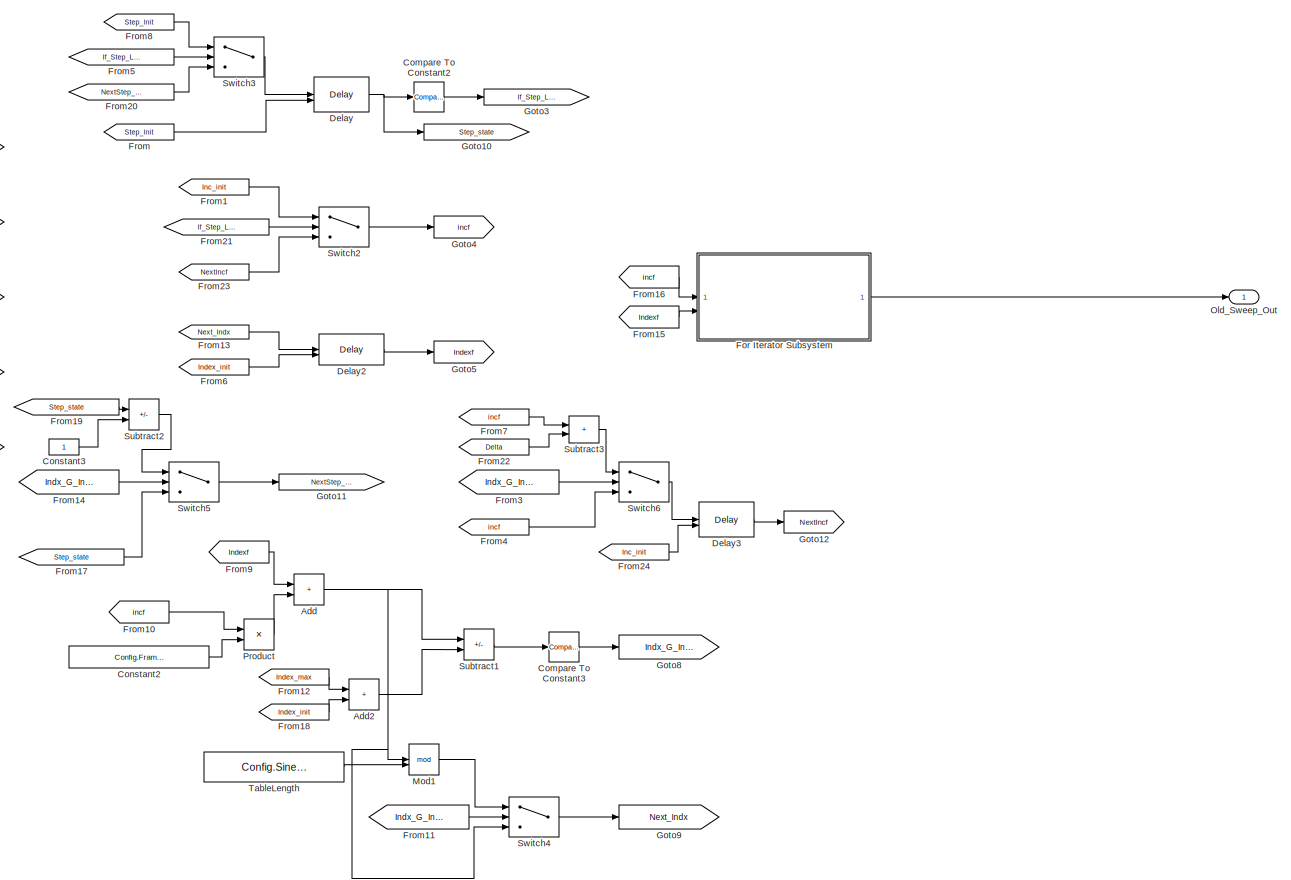
[diagram: ChimeSignalGenerator/For Each Subsystem/Switch Case Action Subsystem2/Old Sweep Signal Generator/Old Sweep Engine - part 1/2, center side, full height]
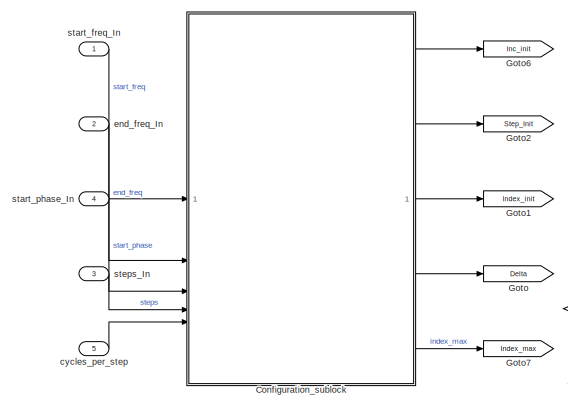
[diagram: ChimeSignalGenerator/For Each Subsystem/Switch Case Action Subsystem2/Old Sweep Signal Generator/Old Sweep Engine - part 2/2, middle left region]
BLOCK [SubSystem] ChimeSignalGenerator/For Each Subsystem/Switch Case Action Subsystem2/Old Sweep Signal Generator/Old Sweep Engine
  TreatAsAtomicUnit = on
BLOCK [Sum] ChimeSignalGenerator/For Each Subsystem/Switch Case Action Subsystem2/Old Sweep Signal Generator/Old Sweep Engine/Add
  IconShape = rectangular
BLOCK [Sum] ChimeSignalGenerator/For Each Subsystem/Switch Case Action Subsystem2/Old Sweep Signal Generator/Old Sweep Engine/Add2
  AccumDataTypeStr = single
  IconShape = rectangular
BLOCK [Reference] ChimeSignalGenerator/For Each Subsystem/Switch Case Action Subsystem2/Old Sweep Signal Generator/Old Sweep Engine/Compare To Constant2  REF=simulink/Logic and Bit
Operations/Compare
To Constant
  NameLocation = top
  SourceBlock = simulink/Logic and Bit\nOperations/Compare\nTo Constant
  SourceType = Compare To Constant
BLOCK [Reference] ChimeSignalGenerator/For Each Subsystem/Switch Case Action Subsystem2/Old Sweep Signal Generator/Old Sweep Engine/Compare To Constant3  REF=simulink/Logic and Bit
Operations/Compare
To Constant
  NameLocation = top
  SourceBlock = simulink/Logic and Bit\nOperations/Compare\nTo Constant
  SourceType = Compare To Constant
BLOCK [SubSystem] ChimeSignalGenerator/For Each Subsystem/Switch Case Action Subsystem2/Old Sweep Signal Generator/Old Sweep Engine/Configuration_sublock
BLOCK [SubSystem] ChimeSignalGenerator/For Each Subsystem/Switch Case Action Subsystem2/Old Sweep Signal Generator/Old Sweep Engine/Configuration_sublock/ 
  TreatAsAtomicUnit = on
BLOCK [Sum] ChimeSignalGenerator/For Each Subsystem/Switch Case Action Subsystem2/Old Sweep Signal Generator/Old Sweep Engine/Configuration_sublock/ /Add
  IconShape = rectangular
  Inputs = +-
BLOCK [Product] ChimeSignalGenerator/For Each Subsystem/Switch Case Action Subsystem2/Old Sweep Signal Generator/Old Sweep Engine/Configuration_sublock/ /Multiply1
  Inputs = */
BLOCK [Sum] ChimeSignalGenerator/For Each Subsystem/Switch Case Action Subsystem2/Old Sweep Signal Generator/Old Sweep Engine/Configuration_sublock/ /Subtract
  IconShape = rectangular
  Inputs = +-
BLOCK [Outport] ChimeSignalGenerator/For Each Subsystem/Switch Case Action Subsystem2/Old Sweep Signal Generator/Old Sweep Engine/Configuration_sublock/ /inc_delta_Out1
  VectorParamsAs1DForOutWhenUnconnected = off
BLOCK [Inport] ChimeSignalGenerator/For Each Subsystem/Switch Case Action Subsystem2/Old Sweep Signal Generator/Old Sweep Engine/Configuration_sublock/ /inc_end_In2
  Port = 2
BLOCK [Inport] ChimeSignalGenerator/For Each Subsystem/Switch Case Action Subsystem2/Old Sweep Signal Generator/Old Sweep Engine/Configuration_sublock/ /inc_start_In1
BLOCK [Constant] ChimeSignalGenerator/For Each Subsystem/Switch Case Action Subsystem2/Old Sweep Signal Generator/Old Sweep Engine/Configuration_sublock/ /oneVal
  OutDataTypeStr = uint32
BLOCK [Inport] ChimeSignalGenerator/For Each Subsystem/Switch Case Action Subsystem2/Old Sweep Signal Generator/Old Sweep Engine/Configuration_sublock/ /steps_In3
  Port = 3
BLOCK [Sum] ChimeSignalGenerator/For Each Subsystem/Switch Case Action Subsystem2/Old Sweep Signal Generator/Old Sweep Engine/Configuration_sublock/Add
  IconShape = rectangular
BLOCK [Sum] ChimeSignalGenerator/For Each Subsystem/Switch Case Action Subsystem2/Old Sweep Signal Generator/Old Sweep Engine/Configuration_sublock/Add1
  IconShape = rectangular
  Inputs = +-
BLOCK [Constant] ChimeSignalGenerator/For Each Subsystem/Switch Case Action Subsystem2/Old Sweep Signal Generator/Old Sweep Engine/Configuration_sublock/Fs_value
  OutDataTypeStr = single
  Value = Config.FsHz
BLOCK [Product] ChimeSignalGenerator/For Each Subsystem/Switch Case Action Subsystem2/Old Sweep Signal Generator/Old Sweep Engine/Configuration_sublock/Multiply
  Inputs = */
BLOCK [Product] ChimeSignalGenerator/For Each Subsystem/Switch Case Action Subsystem2/Old Sweep Signal Generator/Old Sweep Engine/Configuration_sublock/Multiply1
  Inputs = */
BLOCK [Product] ChimeSignalGenerator/For Each Subsystem/Switch Case Action Subsystem2/Old Sweep Signal Generator/Old Sweep Engine/Configuration_sublock/Multiply2
  Inputs = ***
BLOCK [Product] ChimeSignalGenerator/For Each Subsystem/Switch Case Action Subsystem2/Old Sweep Signal Generator/Old Sweep Engine/Configuration_sublock/Multiply4
  Inputs = */
BLOCK [Product] ChimeSignalGenerator/For Each Subsystem/Switch Case Action Subsystem2/Old Sweep Signal Generator/Old Sweep Engine/Configuration_sublock/Multiply5
  Inputs = **
BLOCK [Inport] ChimeSignalGenerator/For Each Subsystem/Switch Case Action Subsystem2/Old Sweep Signal Generator/Old Sweep Engine/Configuration_sublock/cycles_per_step
  Port = 5
BLOCK [Inport] ChimeSignalGenerator/For Each Subsystem/Switch Case Action Subsystem2/Old Sweep Signal Generator/Old Sweep Engine/Configuration_sublock/end_freq
  Port = 2
BLOCK [Outport] ChimeSignalGenerator/For Each Subsystem/Switch Case Action Subsystem2/Old Sweep Signal Generator/Old Sweep Engine/Configuration_sublock/inc_delta
  Port = 4
  VectorParamsAs1DForOutWhenUnconnected = off
BLOCK [Outport] ChimeSignalGenerator/For Each Subsystem/Switch Case Action Subsystem2/Old Sweep Signal Generator/Old Sweep Engine/Configuration_sublock/inc_start
  VectorParamsAs1DForOutWhenUnconnected = off
BLOCK [Outport] ChimeSignalGenerator/For Each Subsystem/Switch Case Action Subsystem2/Old Sweep Signal Generator/Old Sweep Engine/Configuration_sublock/index_max
  Port = 5
  VectorParamsAs1DForOutWhenUnconnected = off
BLOCK [Outport] ChimeSignalGenerator/For Each Subsystem/Switch Case Action Subsystem2/Old Sweep Signal Generator/Old Sweep Engine/Configuration_sublock/index_start
  Port = 3
  VectorParamsAs1DForOutWhenUnconnected = off
BLOCK [Constant] ChimeSignalGenerator/For Each Subsystem/Switch Case Action Subsystem2/Old Sweep Signal Generator/Old Sweep Engine/Configuration_sublock/pi
  OutDataTypeStr = single
  Value = 1/(2*pi)
  VectorParams1D = off
BLOCK [Inport] ChimeSignalGenerator/For Each Subsystem/Switch Case Action Subsystem2/Old Sweep Signal Generator/Old Sweep Engine/Configuration_sublock/start_freq
BLOCK [Inport] ChimeSignalGenerator/For Each Subsystem/Switch Case Action Subsystem2/Old Sweep Signal Generator/Old Sweep Engine/Configuration_sublock/start_phase
  Port = 3
BLOCK [Outport] ChimeSignalGenerator/For Each Subsystem/Switch Case Action Subsystem2/Old Sweep Signal Generator/Old Sweep Engine/Configuration_sublock/steps
  Port = 2
  VectorParamsAs1DForOutWhenUnconnected = off
BLOCK [Inport] ChimeSignalGenerator/For Each Subsystem/Switch Case Action Subsystem2/Old Sweep Signal Generator/Old Sweep Engine/Configuration_sublock/steps 
  Port = 4
BLOCK [Constant] ChimeSignalGenerator/For Each Subsystem/Switch Case Action Subsystem2/Old Sweep Signal Generator/Old Sweep Engine/Configuration_sublock/tableLength
  OutDataTypeStr = single
  Value = Config.SineTableLength
BLOCK [Constant] ChimeSignalGenerator/For Each Subsystem/Switch Case Action Subsystem2/Old Sweep Signal Generator/Old Sweep Engine/Configuration_sublock/two_val
  OutDataTypeStr = uint32
  VectorParams1D = off
BLOCK [Constant] ChimeSignalGenerator/For Each Subsystem/Switch Case Action Subsystem2/Old Sweep Signal Generator/Old Sweep Engine/Configuration_sublock/zero_Val
  OutDataTypeStr = uint32
  Value = 0
BLOCK [Constant] ChimeSignalGenerator/For Each Subsystem/Switch Case Action Subsystem2/Old Sweep Signal Generator/Old Sweep Engine/Constant2
  OutDataTypeStr = uint32
  Value = Config.FrameSizeSamples
BLOCK [Constant] ChimeSignalGenerator/For Each Subsystem/Switch Case Action Subsystem2/Old Sweep Signal Generator/Old Sweep Engine/Constant3
  OutDataTypeStr = single
BLOCK [Delay] ChimeSignalGenerator/For Each Subsystem/Switch Case Action Subsystem2/Old Sweep Signal Generator/Old Sweep Engine/Delay
  DelayLength = 1
  InitialConditionSource = Input port
  InputPortMap = u0,p4
BLOCK [Delay] ChimeSignalGenerator/For Each Subsystem/Switch Case Action Subsystem2/Old Sweep Signal Generator/Old Sweep Engine/Delay2
  DelayLength = 1
  InitialConditionSource = Input port
  InputPortMap = u0,p4
BLOCK [Delay] ChimeSignalGenerator/For Each Subsystem/Switch Case Action Subsystem2/Old Sweep Signal Generator/Old Sweep Engine/Delay3
  DelayLength = 1
  InitialConditionSource = Input port
  InputPortMap = u0,p4
BLOCK [SubSystem] ChimeSignalGenerator/For Each Subsystem/Switch Case Action Subsystem2/Old Sweep Signal Generator/Old Sweep Engine/For Iterator Subsystem
  TreatAsAtomicUnit = on
BLOCK [Sum] ChimeSignalGenerator/For Each Subsystem/Switch Case Action Subsystem2/Old Sweep Signal Generator/Old Sweep Engine/For Iterator Subsystem/Add
  IconShape = rectangular
BLOCK [Sum] ChimeSignalGenerator/For Each Subsystem/Switch Case Action Subsystem2/Old Sweep Signal Generator/Old Sweep Engine/For Iterator Subsystem/Add2
  IconShape = rectangular
BLOCK [Sum] ChimeSignalGenerator/For Each Subsystem/Switch Case Action Subsystem2/Old Sweep Signal Generator/Old Sweep Engine/For Iterator Subsystem/Add3
  IconShape = rectangular
BLOCK [Reference] ChimeSignalGenerator/For Each Subsystem/Switch Case Action Subsystem2/Old Sweep Signal Generator/Old Sweep Engine/For Iterator Subsystem/Bitwise AND  REF=simulink/Logic and Bit
Operations/Bitwise
Operator
  SourceBlock = simulink/Logic and Bit\nOperations/Bitwise\nOperator
  SourceType = Bitwise Operator
BLOCK [Reference] ChimeSignalGenerator/For Each Subsystem/Switch Case Action Subsystem2/Old Sweep Signal Generator/Old Sweep Engine/For Iterator Subsystem/Compare To Constant  REF=simulink/Logic and Bit
Operations/Compare
To Constant
  SourceBlock = simulink/Logic and Bit\nOperations/Compare\nTo Constant
  SourceType = Compare To Constant
BLOCK [Constant] ChimeSignalGenerator/For Each Subsystem/Switch Case Action Subsystem2/Old Sweep Signal Generator/Old Sweep Engine/For Iterator Subsystem/Constant1
  OutDataTypeStr = single
BLOCK [Constant] ChimeSignalGenerator/For Each Subsystem/Switch Case Action Subsystem2/Old Sweep Signal Generator/Old Sweep Engine/For Iterator Subsystem/Constant4
  NameLocation = top
  OutDataTypeStr = uint32
BLOCK [DataTypeConversion] ChimeSignalGenerator/For Each Subsystem/Switch Case Action Subsystem2/Old Sweep Signal Generator/Old Sweep Engine/For Iterator Subsystem/Data Type Conversion
  OutDataTypeStr = uint32
  RndMeth = Floor
  SaturateOnIntegerOverflow = off
BLOCK [DataTypeConversion] ChimeSignalGenerator/For Each Subsystem/Switch Case Action Subsystem2/Old Sweep Signal Generator/Old Sweep Engine/For Iterator Subsystem/Data Type Conversion1
  OutDataTypeStr = uint32
  RndMeth = Floor
  SaturateOnIntegerOverflow = off
BLOCK [Delay] ChimeSignalGenerator/For Each Subsystem/Switch Case Action Subsystem2/Old Sweep Signal Generator/Old Sweep Engine/For Iterator Subsystem/Delay
  DelayLength = 0
  InputPortMap = u0
BLOCK [ForIterator] ChimeSignalGenerator/For Each Subsystem/Switch Case Action Subsystem2/Old Sweep Signal Generator/Old Sweep Engine/For Iterator Subsystem/For Iterator
  IterationLimit = Config.FrameSizeSamples
  ResetStates = reset
BLOCK [From] ChimeSignalGenerator/For Each Subsystem/Switch Case Action Subsystem2/Old Sweep Signal Generator/Old Sweep Engine/For Iterator Subsystem/From
  GotoTag = w0
BLOCK [From] ChimeSignalGenerator/For Each Subsystem/Switch Case Action Subsystem2/Old Sweep Signal Generator/Old Sweep Engine/For Iterator Subsystem/From1
  GotoTag = w1
BLOCK [From] ChimeSignalGenerator/For Each Subsystem/Switch Case Action Subsystem2/Old Sweep Signal Generator/Old Sweep Engine/For Iterator Subsystem/From2
  GotoTag = m0
BLOCK [From] ChimeSignalGenerator/For Each Subsystem/Switch Case Action Subsystem2/Old Sweep Signal Generator/Old Sweep Engine/For Iterator Subsystem/From4
  GotoTag = m1
BLOCK [Goto] ChimeSignalGenerator/For Each Subsystem/Switch Case Action Subsystem2/Old Sweep Signal Generator/Old Sweep Engine/For Iterator Subsystem/Goto
  GotoTag = w0
BLOCK [Goto] ChimeSignalGenerator/For Each Subsystem/Switch Case Action Subsystem2/Old Sweep Signal Generator/Old Sweep Engine/For Iterator Subsystem/Goto1
  GotoTag = w1
BLOCK [Goto] ChimeSignalGenerator/For Each Subsystem/Switch Case Action Subsystem2/Old Sweep Signal Generator/Old Sweep Engine/For Iterator Subsystem/Goto2
  GotoTag = m0
BLOCK [Goto] ChimeSignalGenerator/For Each Subsystem/Switch Case Action Subsystem2/Old Sweep Signal Generator/Old Sweep Engine/For Iterator Subsystem/Goto3
  GotoTag = m1
BLOCK [Inport] ChimeSignalGenerator/For Each Subsystem/Switch Case Action Subsystem2/Old Sweep Signal Generator/Old Sweep Engine/For Iterator Subsystem/Inc 
BLOCK [Selector] ChimeSignalGenerator/For Each Subsystem/Switch Case Action Subsystem2/Old Sweep Signal Generator/Old Sweep Engine/For Iterator Subsystem/LookUpTable
  IndexMode = Zero-based
  IndexOptions = Index vector (port)
  Indices = [1 3]
  InputPortWidth = Config.SineTableLength
  OutputSizes = 1
BLOCK [Selector] ChimeSignalGenerator/For Each Subsystem/Switch Case Action Subsystem2/Old Sweep Signal Generator/Old Sweep Engine/For Iterator Subsystem/LookUpTable1
  IndexMode = Zero-based
  IndexOptions = Index vector (port)
  Indices = [1 3]
  InputPortWidth = Config.SineTableLength
  OutputSizes = 1
BLOCK [SubSystem] ChimeSignalGenerator/For Each Subsystem/Switch Case Action Subsystem2/Old Sweep Signal Generator/Old Sweep Engine/For Iterator Subsystem/MATLAB Function
  ErrorFcn = Stateflow.Translate.translate
  PermitHierarchicalResolution = ExplicitOnly
  SFBlockType = MATLAB Function
  TreatAsAtomicUnit = on
BLOCK [Demux] ChimeSignalGenerator/For Each Subsystem/Switch Case Action Subsystem2/Old Sweep Signal Generator/Old Sweep Engine/For Iterator Subsystem/MATLAB Function/ Demux 
  Outputs = 1
BLOCK [S-Function] ChimeSignalGenerator/For Each Subsystem/Switch Case Action Subsystem2/Old Sweep Signal Generator/Old Sweep Engine/For Iterator Subsystem/MATLAB Function/ SFunction 
  EnableBusSupport = off
  FunctionName = sf_sfun
  Parameters = frameSize_samples
  PortCounts = [2 2]
  SFcnIsStateOwnerBlock = off
  SFunctionDeploymentMode = off
  Tag = Stateflow S-Function 61
BLOCK [Terminator] ChimeSignalGenerator/For Each Subsystem/Switch Case Action Subsystem2/Old Sweep Signal Generator/Old Sweep Engine/For Iterator Subsystem/MATLAB Function/ Terminator 
BLOCK [Inport] ChimeSignalGenerator/For Each Subsystem/Switch Case Action Subsystem2/Old Sweep Signal Generator/Old Sweep Engine/For Iterator Subsystem/MATLAB Function/Data
  Port = 2
BLOCK [Inport] ChimeSignalGenerator/For Each Subsystem/Switch Case Action Subsystem2/Old Sweep Signal Generator/Old Sweep Engine/For Iterator Subsystem/MATLAB Function/Index
BLOCK [Outport] ChimeSignalGenerator/For Each Subsystem/Switch Case Action Subsystem2/Old Sweep Signal Generator/Old Sweep Engine/For Iterator Subsystem/MATLAB Function/y
  VectorParamsAs1DForOutWhenUnconnected = off
BLOCK [Memory] ChimeSignalGenerator/For Each Subsystem/Switch Case Action Subsystem2/Old Sweep Signal Generator/Old Sweep Engine/For Iterator Subsystem/Memory
  InheritSampleTime = on
BLOCK [Outport] ChimeSignalGenerator/For Each Subsystem/Switch Case Action Subsystem2/Old Sweep Signal Generator/Old Sweep Engine/For Iterator Subsystem/Out1
  VectorParamsAs1DForOutWhenUnconnected = off
BLOCK [Product] ChimeSignalGenerator/For Each Subsystem/Switch Case Action Subsystem2/Old Sweep Signal Generator/Old Sweep Engine/For Iterator Subsystem/Product
BLOCK [Product] ChimeSignalGenerator/For Each Subsystem/Switch Case Action Subsystem2/Old Sweep Signal Generator/Old Sweep Engine/For Iterator Subsystem/Product1
BLOCK [Sum] ChimeSignalGenerator/For Each Subsystem/Switch Case Action Subsystem2/Old Sweep Signal Generator/Old Sweep Engine/For Iterator Subsystem/Subtract
  IconShape = rectangular
  Inputs = +-
  OutDataTypeStr = single
BLOCK [Sum] ChimeSignalGenerator/For Each Subsystem/Switch Case Action Subsystem2/Old Sweep Signal Generator/Old Sweep Engine/For Iterator Subsystem/Subtract1
  IconShape = rectangular
  Inputs = +-
  OutDataTypeStr = single
BLOCK [Sum] ChimeSignalGenerator/For Each Subsystem/Switch Case Action Subsystem2/Old Sweep Signal Generator/Old Sweep Engine/For Iterator Subsystem/Subtract2
  IconShape = rectangular
  Inputs = +-
BLOCK [Sum] ChimeSignalGenerator/For Each Subsystem/Switch Case Action Subsystem2/Old Sweep Signal Generator/Old Sweep Engine/For Iterator Subsystem/Subtract3
  IconShape = rectangular
  Inputs = +-
BLOCK [Switch] ChimeSignalGenerator/For Each Subsystem/Switch Case Action Subsystem2/Old Sweep Signal Generator/Old Sweep Engine/For Iterator Subsystem/Switch
  Criteria = u2 ~= 0
  InputSameDT = off
  SaturateOnIntegerOverflow = off
BLOCK [Switch] ChimeSignalGenerator/For Each Subsystem/Switch Case Action Subsystem2/Old Sweep Signal Generator/Old Sweep Engine/For Iterator Subsystem/Switch1
  InputSameDT = off
  SaturateOnIntegerOverflow = off
BLOCK [Switch] ChimeSignalGenerator/For Each Subsystem/Switch Case Action Subsystem2/Old Sweep Signal Generator/Old Sweep Engine/For Iterator Subsystem/Switch2
  InputSameDT = off
  SaturateOnIntegerOverflow = off
BLOCK [Constant] ChimeSignalGenerator/For Each Subsystem/Switch Case Action Subsystem2/Old Sweep Signal Generator/Old Sweep Engine/For Iterator Subsystem/TableLength
  OutDataTypeStr = single
  Value = Config.SineTableLength
  VectorParams1D = off
BLOCK [Inport] ChimeSignalGenerator/For Each Subsystem/Switch Case Action Subsystem2/Old Sweep Signal Generator/Old Sweep Engine/For Iterator Subsystem/index
  Port = 2
BLOCK [Constant] ChimeSignalGenerator/For Each Subsystem/Switch Case Action Subsystem2/Old Sweep Signal Generator/Old Sweep Engine/For Iterator Subsystem/sineTable
  OutDataTypeStr = single
  Value = Config.SineTable
BLOCK [From] ChimeSignalGenerator/For Each Subsystem/Switch Case Action Subsystem2/Old Sweep Signal Generator/Old Sweep Engine/From
  GotoTag = Step_Init
BLOCK [From] ChimeSignalGenerator/For Each Subsystem/Switch Case Action Subsystem2/Old Sweep Signal Generator/Old Sweep Engine/From1
  GotoTag = Inc_init
BLOCK [From] ChimeSignalGenerator/For Each Subsystem/Switch Case Action Subsystem2/Old Sweep Signal Generator/Old Sweep Engine/From10
  GotoTag = incf
BLOCK [From] ChimeSignalGenerator/For Each Subsystem/Switch Case Action Subsystem2/Old Sweep Signal Generator/Old Sweep Engine/From11
  GotoTag = Indx_G_IndxMax
BLOCK [From] ChimeSignalGenerator/For Each Subsystem/Switch Case Action Subsystem2/Old Sweep Signal Generator/Old Sweep Engine/From12
  GotoTag = Index_max
  TagVisibility = global
BLOCK [From] ChimeSignalGenerator/For Each Subsystem/Switch Case Action Subsystem2/Old Sweep Signal Generator/Old Sweep Engine/From13
  GotoTag = Next_Indx
BLOCK [From] ChimeSignalGenerator/For Each Subsystem/Switch Case Action Subsystem2/Old Sweep Signal Generator/Old Sweep Engine/From14
  GotoTag = Indx_G_IndxMax
BLOCK [From] ChimeSignalGenerator/For Each Subsystem/Switch Case Action Subsystem2/Old Sweep Signal Generator/Old Sweep Engine/From15
  GotoTag = Indexf
BLOCK [From] ChimeSignalGenerator/For Each Subsystem/Switch Case Action Subsystem2/Old Sweep Signal Generator/Old Sweep Engine/From16
  GotoTag = incf
BLOCK [From] ChimeSignalGenerator/For Each Subsystem/Switch Case Action Subsystem2/Old Sweep Signal Generator/Old Sweep Engine/From17
  GotoTag = Step_state
BLOCK [From] ChimeSignalGenerator/For Each Subsystem/Switch Case Action Subsystem2/Old Sweep Signal Generator/Old Sweep Engine/From18
  GotoTag = Index_init
BLOCK [From] ChimeSignalGenerator/For Each Subsystem/Switch Case Action Subsystem2/Old Sweep Signal Generator/Old Sweep Engine/From19
  GotoTag = Step_state
BLOCK [From] ChimeSignalGenerator/For Each Subsystem/Switch Case Action Subsystem2/Old Sweep Signal Generator/Old Sweep Engine/From20
  GotoTag = NextStep_state
BLOCK [From] ChimeSignalGenerator/For Each Subsystem/Switch Case Action Subsystem2/Old Sweep Signal Generator/Old Sweep Engine/From21
  GotoTag = If_Step_Ls_zero
BLOCK [From] ChimeSignalGenerator/For Each Subsystem/Switch Case Action Subsystem2/Old Sweep Signal Generator/Old Sweep Engine/From22
  GotoTag = Delta
BLOCK [From] ChimeSignalGenerator/For Each Subsystem/Switch Case Action Subsystem2/Old Sweep Signal Generator/Old Sweep Engine/From23
  GotoTag = NextIncf
BLOCK [From] ChimeSignalGenerator/For Each Subsystem/Switch Case Action Subsystem2/Old Sweep Signal Generator/Old Sweep Engine/From24
  GotoTag = Inc_init
BLOCK [From] ChimeSignalGenerator/For Each Subsystem/Switch Case Action Subsystem2/Old Sweep Signal Generator/Old Sweep Engine/From3
  GotoTag = Indx_G_IndxMax
BLOCK [From] ChimeSignalGenerator/For Each Subsystem/Switch Case Action Subsystem2/Old Sweep Signal Generator/Old Sweep Engine/From4
  GotoTag = incf
BLOCK [From] ChimeSignalGenerator/For Each Subsystem/Switch Case Action Subsystem2/Old Sweep Signal Generator/Old Sweep Engine/From5
  GotoTag = If_Step_Ls_zero
BLOCK [From] ChimeSignalGenerator/For Each Subsystem/Switch Case Action Subsystem2/Old Sweep Signal Generator/Old Sweep Engine/From6
  GotoTag = Index_init
BLOCK [From] ChimeSignalGenerator/For Each Subsystem/Switch Case Action Subsystem2/Old Sweep Signal Generator/Old Sweep Engine/From7
  GotoTag = incf
BLOCK [From] ChimeSignalGenerator/For Each Subsystem/Switch Case Action Subsystem2/Old Sweep Signal Generator/Old Sweep Engine/From8
  GotoTag = Step_Init
BLOCK [From] ChimeSignalGenerator/For Each Subsystem/Switch Case Action Subsystem2/Old Sweep Signal Generator/Old Sweep Engine/From9
  GotoTag = Indexf
BLOCK [Goto] ChimeSignalGenerator/For Each Subsystem/Switch Case Action Subsystem2/Old Sweep Signal Generator/Old Sweep Engine/Goto
  GotoTag = Delta
BLOCK [Goto] ChimeSignalGenerator/For Each Subsystem/Switch Case Action Subsystem2/Old Sweep Signal Generator/Old Sweep Engine/Goto1
  GotoTag = Index_init
BLOCK [Goto] ChimeSignalGenerator/For Each Subsystem/Switch Case Action Subsystem2/Old Sweep Signal Generator/Old Sweep Engine/Goto10
  GotoTag = Step_state
BLOCK [Goto] ChimeSignalGenerator/For Each Subsystem/Switch Case Action Subsystem2/Old Sweep Signal Generator/Old Sweep Engine/Goto11
  GotoTag = NextStep_state
BLOCK [Goto] ChimeSignalGenerator/For Each Subsystem/Switch Case Action Subsystem2/Old Sweep Signal Generator/Old Sweep Engine/Goto12
  GotoTag = NextIncf
BLOCK [Goto] ChimeSignalGenerator/For Each Subsystem/Switch Case Action Subsystem2/Old Sweep Signal Generator/Old Sweep Engine/Goto2
  GotoTag = Step_Init
BLOCK [Goto] ChimeSignalGenerator/For Each Subsystem/Switch Case Action Subsystem2/Old Sweep Signal Generator/Old Sweep Engine/Goto3
  GotoTag = If_Step_Ls_zero
BLOCK [Goto] ChimeSignalGenerator/For Each Subsystem/Switch Case Action Subsystem2/Old Sweep Signal Generator/Old Sweep Engine/Goto4
  GotoTag = incf
BLOCK [Goto] ChimeSignalGenerator/For Each Subsystem/Switch Case Action Subsystem2/Old Sweep Signal Generator/Old Sweep Engine/Goto5
  GotoTag = Indexf
BLOCK [Goto] ChimeSignalGenerator/For Each Subsystem/Switch Case Action Subsystem2/Old Sweep Signal Generator/Old Sweep Engine/Goto6
  GotoTag = Inc_init
BLOCK [Goto] ChimeSignalGenerator/For Each Subsystem/Switch Case Action Subsystem2/Old Sweep Signal Generator/Old Sweep Engine/Goto7
  GotoTag = Index_max
  TagVisibility = global
BLOCK [Goto] ChimeSignalGenerator/For Each Subsystem/Switch Case Action Subsystem2/Old Sweep Signal Generator/Old Sweep Engine/Goto8
  GotoTag = Indx_G_IndxMax
BLOCK [Goto] ChimeSignalGenerator/For Each Subsystem/Switch Case Action Subsystem2/Old Sweep Signal Generator/Old Sweep Engine/Goto9
  GotoTag = Next_Indx
BLOCK [Math] ChimeSignalGenerator/For Each Subsystem/Switch Case Action Subsystem2/Old Sweep Signal Generator/Old Sweep Engine/Mod1
  Operator = mod
  SignedPower = on
BLOCK [Outport] ChimeSignalGenerator/For Each Subsystem/Switch Case Action Subsystem2/Old Sweep Signal Generator/Old Sweep Engine/Old_Sweep_Out
  VectorParamsAs1DForOutWhenUnconnected = off
BLOCK [Product] ChimeSignalGenerator/For Each Subsystem/Switch Case Action Subsystem2/Old Sweep Signal Generator/Old Sweep Engine/Product
BLOCK [Sum] ChimeSignalGenerator/For Each Subsystem/Switch Case Action Subsystem2/Old Sweep Signal Generator/Old Sweep Engine/Subtract1
  IconShape = rectangular
  Inputs = +-
BLOCK [Sum] ChimeSignalGenerator/For Each Subsystem/Switch Case Action Subsystem2/Old Sweep Signal Generator/Old Sweep Engine/Subtract2
  IconShape = rectangular
  Inputs = +-
BLOCK [Sum] ChimeSignalGenerator/For Each Subsystem/Switch Case Action Subsystem2/Old Sweep Signal Generator/Old Sweep Engine/Subtract3
  IconShape = rectangular
BLOCK [Switch] ChimeSignalGenerator/For Each Subsystem/Switch Case Action Subsystem2/Old Sweep Signal Generator/Old Sweep Engine/Switch2
  Criteria = u2 ~= 0
  InputSameDT = off
  SaturateOnIntegerOverflow = off
BLOCK [Switch] ChimeSignalGenerator/For Each Subsystem/Switch Case Action Subsystem2/Old Sweep Signal Generator/Old Sweep Engine/Switch3
  Criteria = u2 ~= 0
  InputSameDT = off
  SaturateOnIntegerOverflow = off
BLOCK [Switch] ChimeSignalGenerator/For Each Subsystem/Switch Case Action Subsystem2/Old Sweep Signal Generator/Old Sweep Engine/Switch4
  Criteria = u2 ~= 0
  InputSameDT = off
  SaturateOnIntegerOverflow = off
BLOCK [Switch] ChimeSignalGenerator/For Each Subsystem/Switch Case Action Subsystem2/Old Sweep Signal Generator/Old Sweep Engine/Switch5
  Criteria = u2 ~= 0
  InputSameDT = off
  SaturateOnIntegerOverflow = off
BLOCK [Switch] ChimeSignalGenerator/For Each Subsystem/Switch Case Action Subsystem2/Old Sweep Signal Generator/Old Sweep Engine/Switch6
  Criteria = u2 ~= 0
  InputSameDT = off
  SaturateOnIntegerOverflow = off
BLOCK [Constant] ChimeSignalGenerator/For Each Subsystem/Switch Case Action Subsystem2/Old Sweep Signal Generator/Old Sweep Engine/TableLength
  OutDataTypeStr = single
  Value = Config.SineTableLength
  VectorParams1D = off
BLOCK [Inport] ChimeSignalGenerator/For Each Subsystem/Switch Case Action Subsystem2/Old Sweep Signal Generator/Old Sweep Engine/cycles_per_step
  Port = 5
BLOCK [Inport] ChimeSignalGenerator/For Each Subsystem/Switch Case Action Subsystem2/Old Sweep Signal Generator/Old Sweep Engine/end_freq_In
  Port = 2
BLOCK [Inport] ChimeSignalGenerator/For Each Subsystem/Switch Case Action Subsystem2/Old Sweep Signal Generator/Old Sweep Engine/start_freq_In
BLOCK [Inport] ChimeSignalGenerator/For Each Subsystem/Switch Case Action Subsystem2/Old Sweep Signal Generator/Old Sweep Engine/start_phase_In
  Port = 4
BLOCK [Inport] ChimeSignalGenerator/For Each Subsystem/Switch Case Action Subsystem2/Old Sweep Signal Generator/Old Sweep Engine/steps_In
  Port = 3
BLOCK [SubSystem] ChimeSignalGenerator/For Each Subsystem/Switch Case Action Subsystem2/Old Sweep Signal Generator/Old sine sweep analysis
  Commented = on
BLOCK [Reference] ChimeSignalGenerator/For Each Subsystem/Switch Case Action Subsystem2/Old Sweep Signal Generator/Old sine sweep analysis/Difference  REF=dspmathops/Difference
  SourceBlock = dspmathops/Difference
  SourceType = Difference
  UserDataPersistent = on
BLOCK [Inport] ChimeSignalGenerator/For Each Subsystem/Switch Case Action Subsystem2/Old Sweep Signal Generator/Old sine sweep analysis/In1
BLOCK [Scope] ChimeSignalGenerator/For Each Subsystem/Switch Case Action Subsystem2/Old Sweep Signal Generator/Old sine sweep analysis/Old Sweep Difference
  DefaultConfigurationName = spbscopes.TimeScopeBlockCfg
  Floating = off
  NumInputPorts = 1
  UserDataPersistent = on
BLOCK [SpectrumAnalyzer] ChimeSignalGenerator/For Each Subsystem/Switch Case Action Subsystem2/Old Sweep Signal Generator/Old sine sweep analysis/Old Sweep Spectrum Analyzer
BLOCK [Outport] ChimeSignalGenerator/For Each Subsystem/Switch Case Action Subsystem2/Old Sweep Signal Generator/Old_sweep_Out
  VectorParamsAs1DForOutWhenUnconnected = off
BLOCK [ToWorkspace] ChimeSignalGenerator/For Each Subsystem/Switch Case Action Subsystem2/Old Sweep Signal Generator/To Workspace5
  Commented = on
  MaxDataPoints = inf
  SampleTime = -1
  Save2DSignal = 2-D array (concatenate along first dimension)
  VariableName = OldSweepOutput
BLOCK [Inport] ChimeSignalGenerator/For Each Subsystem/Switch Case Action Subsystem2/Old Sweep Signal Generator/cycles_per_step
  Port = 5
BLOCK [Inport] ChimeSignalGenerator/For Each Subsystem/Switch Case Action Subsystem2/Old Sweep Signal Generator/end_freq_Hz
  Port = 2
BLOCK [Inport] ChimeSignalGenerator/For Each Subsystem/Switch Case Action Subsystem2/Old Sweep Signal Generator/start_freq_Hz
BLOCK [Inport] ChimeSignalGenerator/For Each Subsystem/Switch Case Action Subsystem2/Old Sweep Signal Generator/start_phase_rad
  Port = 4
BLOCK [Inport] ChimeSignalGenerator/For Each Subsystem/Switch Case Action Subsystem2/Old Sweep Signal Generator/steps
  Port = 3
BLOCK [Outport] ChimeSignalGenerator/For Each Subsystem/Switch Case Action Subsystem2/Out1
BLOCK [Inport] ChimeSignalGenerator/For Each Subsystem/Switch Case Action Subsystem2/StartFrequency
BLOCK [Inport] ChimeSignalGenerator/For Each Subsystem/Switch Case Action Subsystem2/StartingPhase
  Port = 4
BLOCK [Inport] ChimeSignalGenerator/For Each Subsystem/Switch Case Action Subsystem2/Steps
  Port = 3
BLOCK [SubSystem] ChimeSignalGenerator/For Each Subsystem/Switch Case Action Subsystem3
  TreatAsAtomicUnit = on
BLOCK [ActionPort] ChimeSignalGenerator/For Each Subsystem/Switch Case Action Subsystem3/Action Port
BLOCK [Outport] ChimeSignalGenerator/For Each Subsystem/Switch Case Action Subsystem3/Out1
BLOCK [Inport] ChimeSignalGenerator/For Each Subsystem/Switch Case Action Subsystem3/RandomNoise
BLOCK [SubSystem] ChimeSignalGenerator/For Each Subsystem/Switch Case Action Subsystem3/SigGen_Noise
  TreatAsAtomicUnit = on
BLOCK [SubSystem] ChimeSignalGenerator/For Each Subsystem/Switch Case Action Subsystem3/SigGen_Noise/For Iterator Subsystem
  TreatAsAtomicUnit = on
BLOCK [Sum] ChimeSignalGenerator/For Each Subsystem/Switch Case Action Subsystem3/SigGen_Noise/For Iterator Subsystem/Add1
  IconShape = rectangular
BLOCK [Constant] ChimeSignalGenerator/For Each Subsystem/Switch Case Action Subsystem3/SigGen_Noise/For Iterator Subsystem/Constant4
BLOCK [DataTypeConversion] ChimeSignalGenerator/For Each Subsystem/Switch Case Action Subsystem3/SigGen_Noise/For Iterator Subsystem/Data Type Conversion
  OutDataTypeStr = uint32
  RndMeth = Floor
  SaturateOnIntegerOverflow = off
BLOCK [Delay] ChimeSignalGenerator/For Each Subsystem/Switch Case Action Subsystem3/SigGen_Noise/For Iterator Subsystem/Delay1
  DelayLength = 1
  InitialConditionSource = Input port
  InputPortMap = u0,p4
BLOCK [ForIterator] ChimeSignalGenerator/For Each Subsystem/Switch Case Action Subsystem3/SigGen_Noise/For Iterator Subsystem/For Iterator
  IterationLimit = Config.FrameSizeSamples
BLOCK [Inport] ChimeSignalGenerator/For Each Subsystem/Switch Case Action Subsystem3/SigGen_Noise/For Iterator Subsystem/InitSeed
BLOCK [SubSystem] ChimeSignalGenerator/For Each Subsystem/Switch Case Action Subsystem3/SigGen_Noise/For Iterator Subsystem/MATLAB Function
  ErrorFcn = Stateflow.Translate.translate
  PermitHierarchicalResolution = ExplicitOnly
  SFBlockType = MATLAB Function
  TreatAsAtomicUnit = on
BLOCK [Demux] ChimeSignalGenerator/For Each Subsystem/Switch Case Action Subsystem3/SigGen_Noise/For Iterator Subsystem/MATLAB Function/ Demux 
  Outputs = 1
BLOCK [S-Function] ChimeSignalGenerator/For Each Subsystem/Switch Case Action Subsystem3/SigGen_Noise/For Iterator Subsystem/MATLAB Function/ SFunction 
  EnableBusSupport = off
  FunctionName = sf_sfun
  Parameters = frameSize_samples
  PortCounts = [2 2]
  SFcnIsStateOwnerBlock = off
  SFunctionDeploymentMode = off
  Tag = Stateflow S-Function 63
BLOCK [Terminator] ChimeSignalGenerator/For Each Subsystem/Switch Case Action Subsystem3/SigGen_Noise/For Iterator Subsystem/MATLAB Function/ Terminator 
BLOCK [Inport] ChimeSignalGenerator/For Each Subsystem/Switch Case Action Subsystem3/SigGen_Noise/For Iterator Subsystem/MATLAB Function/Data
  Port = 2
BLOCK [Inport] ChimeSignalGenerator/For Each Subsystem/Switch Case Action Subsystem3/SigGen_Noise/For Iterator Subsystem/MATLAB Function/Index
BLOCK [Outport] ChimeSignalGenerator/For Each Subsystem/Switch Case Action Subsystem3/SigGen_Noise/For Iterator Subsystem/MATLAB Function/y
  VectorParamsAs1DForOutWhenUnconnected = off
BLOCK [Product] ChimeSignalGenerator/For Each Subsystem/Switch Case Action Subsystem3/SigGen_Noise/For Iterator Subsystem/Multiply
BLOCK [Product] ChimeSignalGenerator/For Each Subsystem/Switch Case Action Subsystem3/SigGen_Noise/For Iterator Subsystem/Multiply1
BLOCK [Outport] ChimeSignalGenerator/For Each Subsystem/Switch Case Action Subsystem3/SigGen_Noise/For Iterator Subsystem/Out1
  VectorParamsAs1DForOutWhenUnconnected = off
BLOCK [Sum] ChimeSignalGenerator/For Each Subsystem/Switch Case Action Subsystem3/SigGen_Noise/For Iterator Subsystem/Subtract
  IconShape = rectangular
  Inputs = +-
BLOCK [Constant] ChimeSignalGenerator/For Each Subsystem/Switch Case Action Subsystem3/SigGen_Noise/For Iterator Subsystem/rnParam1
  Value = 4.656612873077393e-010
BLOCK [Constant] ChimeSignalGenerator/For Each Subsystem/Switch Case Action Subsystem3/SigGen_Noise/For Iterator Subsystem/rnParam2
  Value = 1664525
BLOCK [Constant] ChimeSignalGenerator/For Each Subsystem/Switch Case Action Subsystem3/SigGen_Noise/For Iterator Subsystem/rnParam3
  Value = 1013904223
BLOCK [Outport] ChimeSignalGenerator/For Each Subsystem/Switch Case Action Subsystem3/SigGen_Noise/Noise_Out
  VectorParamsAs1DForOutWhenUnconnected = off
BLOCK [Inport] ChimeSignalGenerator/For Each Subsystem/Switch Case Action Subsystem3/SigGen_Noise/random_noise_input
BLOCK [SubSystem] ChimeSignalGenerator/For Each Subsystem/Switch Case Action Subsystem4
  TreatAsAtomicUnit = on
BLOCK [ActionPort] ChimeSignalGenerator/For Each Subsystem/Switch Case Action Subsystem4/Action Port
BLOCK [Outport] ChimeSignalGenerator/For Each Subsystem/Switch Case Action Subsystem4/Out1
BLOCK [SubSystem] ChimeSignalGenerator/For Each Subsystem/Switch Case Action Subsystem4/SigGen_Sawtooth
  TreatAsAtomicUnit = on
BLOCK [Sum] ChimeSignalGenerator/For Each Subsystem/Switch Case Action Subsystem4/SigGen_Sawtooth/Add
  IconShape = rectangular
BLOCK [DataTypeConversion] ChimeSignalGenerator/For Each Subsystem/Switch Case Action Subsystem4/SigGen_Sawtooth/Data Type Conversion
  OutDataTypeStr = double
  RndMeth = Floor
  SaturateOnIntegerOverflow = off
BLOCK [DataTypeConversion] ChimeSignalGenerator/For Each Subsystem/Switch Case Action Subsystem4/SigGen_Sawtooth/Data Type Conversion1
  OutDataTypeStr = single
  RndMeth = Floor
  SaturateOnIntegerOverflow = off
BLOCK [Product] ChimeSignalGenerator/For Each Subsystem/Switch Case Action Subsystem4/SigGen_Sawtooth/Divide1
  Inputs = */
BLOCK [SubSystem] ChimeSignalGenerator/For Each Subsystem/Switch Case Action Subsystem4/SigGen_Sawtooth/For Iterator Subsystem
  TreatAsAtomicUnit = on
BLOCK [Sum] ChimeSignalGenerator/For Each Subsystem/Switch Case Action Subsystem4/SigGen_Sawtooth/For Iterator Subsystem/Add1
  IconShape = rectangular
BLOCK [Constant] ChimeSignalGenerator/For Each Subsystem/Switch Case Action Subsystem4/SigGen_Sawtooth/For Iterator Subsystem/Constant
  Value = -2.0
BLOCK [Delay] ChimeSignalGenerator/For Each Subsystem/Switch Case Action Subsystem4/SigGen_Sawtooth/For Iterator Subsystem/Delay
  DelayLength = 1
  InitialConditionSource = Input port
  InputPortMap = u0,p4
BLOCK [ForIterator] ChimeSignalGenerator/For Each Subsystem/Switch Case Action Subsystem4/SigGen_Sawtooth/For Iterator Subsystem/For Iterator
  IterationLimit = Config.FrameSizeSamples
BLOCK [Inport] ChimeSignalGenerator/For Each Subsystem/Switch Case Action Subsystem4/SigGen_Sawtooth/For Iterator Subsystem/IncStart
  Port = 3
BLOCK [Inport] ChimeSignalGenerator/For Each Subsystem/Switch Case Action Subsystem4/SigGen_Sawtooth/For Iterator Subsystem/IndexStart
BLOCK [SubSystem] ChimeSignalGenerator/For Each Subsystem/Switch Case Action Subsystem4/SigGen_Sawtooth/For Iterator Subsystem/MATLAB Function
  ErrorFcn = Stateflow.Translate.translate
  PermitHierarchicalResolution = ExplicitOnly
  SFBlockType = MATLAB Function
  TreatAsAtomicUnit = on
BLOCK [Demux] ChimeSignalGenerator/For Each Subsystem/Switch Case Action Subsystem4/SigGen_Sawtooth/For Iterator Subsystem/MATLAB Function/ Demux 
  Outputs = 1
BLOCK [S-Function] ChimeSignalGenerator/For Each Subsystem/Switch Case Action Subsystem4/SigGen_Sawtooth/For Iterator Subsystem/MATLAB Function/ SFunction 
  EnableBusSupport = off
  FunctionName = sf_sfun
  Parameters = frameSize_samples
  PortCounts = [2 2]
  SFcnIsStateOwnerBlock = off
  SFunctionDeploymentMode = off
  Tag = Stateflow S-Function 64
BLOCK [Terminator] ChimeSignalGenerator/For Each Subsystem/Switch Case Action Subsystem4/SigGen_Sawtooth/For Iterator Subsystem/MATLAB Function/ Terminator 
BLOCK [Inport] ChimeSignalGenerator/For Each Subsystem/Switch Case Action Subsystem4/SigGen_Sawtooth/For Iterator Subsystem/MATLAB Function/Data
  Port = 2
BLOCK [Inport] ChimeSignalGenerator/For Each Subsystem/Switch Case Action Subsystem4/SigGen_Sawtooth/For Iterator Subsystem/MATLAB Function/Index
BLOCK [Outport] ChimeSignalGenerator/For Each Subsystem/Switch Case Action Subsystem4/SigGen_Sawtooth/For Iterator Subsystem/MATLAB Function/y
  VectorParamsAs1DForOutWhenUnconnected = off
BLOCK [Math] ChimeSignalGenerator/For Each Subsystem/Switch Case Action Subsystem4/SigGen_Sawtooth/For Iterator Subsystem/Mod1
  Operator = mod
  SignedPower = on
BLOCK [Inport] ChimeSignalGenerator/For Each Subsystem/Switch Case Action Subsystem4/SigGen_Sawtooth/For Iterator Subsystem/ModulePhase
  Port = 4
BLOCK [Product] ChimeSignalGenerator/For Each Subsystem/Switch Case Action Subsystem4/SigGen_Sawtooth/For Iterator Subsystem/Multiply
BLOCK [Outport] ChimeSignalGenerator/For Each Subsystem/Switch Case Action Subsystem4/SigGen_Sawtooth/For Iterator Subsystem/Out1
  VectorParamsAs1DForOutWhenUnconnected = off
BLOCK [Inport] ChimeSignalGenerator/For Each Subsystem/Switch Case Action Subsystem4/SigGen_Sawtooth/For Iterator Subsystem/SawtoothOffset
  Port = 2
BLOCK [Sum] ChimeSignalGenerator/For Each Subsystem/Switch Case Action Subsystem4/SigGen_Sawtooth/For Iterator Subsystem/Subtract
  IconShape = rectangular
  Inputs = +-
BLOCK [Math] ChimeSignalGenerator/For Each Subsystem/Switch Case Action Subsystem4/SigGen_Sawtooth/Mod
  Operator = mod
  SignedPower = on
BLOCK [Outport] ChimeSignalGenerator/For Each Subsystem/Switch Case Action Subsystem4/SigGen_Sawtooth/Output
  VectorParamsAs1DForOutWhenUnconnected = off
BLOCK [Inport] ChimeSignalGenerator/For Each Subsystem/Switch Case Action Subsystem4/SigGen_Sawtooth/StartFreq
BLOCK [Constant] ChimeSignalGenerator/For Each Subsystem/Switch Case Action Subsystem4/SigGen_Sawtooth/module_phase
  Value = 1.0
BLOCK [Constant] ChimeSignalGenerator/For Each Subsystem/Switch Case Action Subsystem4/SigGen_Sawtooth/sampling_frequency
  OutDataTypeStr = single
  SampleTime = Inf
  Value = Config.FsHz
BLOCK [Constant] ChimeSignalGenerator/For Each Subsystem/Switch Case Action Subsystem4/SigGen_Sawtooth/sawtooth_offset
  OutDataTypeStr = single
  Value = 0.5
BLOCK [Inport] ChimeSignalGenerator/For Each Subsystem/Switch Case Action Subsystem4/SigGen_Sawtooth/start_phase
  Port = 2
BLOCK [Inport] ChimeSignalGenerator/For Each Subsystem/Switch Case Action Subsystem4/StartFrequency
BLOCK [Inport] ChimeSignalGenerator/For Each Subsystem/Switch Case Action Subsystem4/StartingPhase
  Port = 2
BLOCK [SubSystem] ChimeSignalGenerator/For Each Subsystem/Switch Case Action Subsystem5
  TreatAsAtomicUnit = on
BLOCK [ActionPort] ChimeSignalGenerator/For Each Subsystem/Switch Case Action Subsystem5/Action Port
BLOCK [Inport] ChimeSignalGenerator/For Each Subsystem/Switch Case Action Subsystem5/ChannelMap
  Port = 4
BLOCK [Outport] ChimeSignalGenerator/For Each Subsystem/Switch Case Action Subsystem5/Out1
BLOCK [SubSystem] ChimeSignalGenerator/For Each Subsystem/Switch Case Action Subsystem5/SigGen_Multitone
BLOCK [Inport] ChimeSignalGenerator/For Each Subsystem/Switch Case Action Subsystem5/SigGen_Multitone/ChannelMap
  Port = 4
BLOCK [SubSystem] ChimeSignalGenerator/For Each Subsystem/Switch Case Action Subsystem5/SigGen_Multitone/Multitone Engine
  TreatAsAtomicUnit = on
BLOCK [Sum] ChimeSignalGenerator/For Each Subsystem/Switch Case Action Subsystem5/SigGen_Multitone/Multitone Engine/Add
  IconShape = rectangular
BLOCK [Inport] ChimeSignalGenerator/For Each Subsystem/Switch Case Action Subsystem5/SigGen_Multitone/Multitone Engine/ChannelMap
  Port = 4
BLOCK [SubSystem] ChimeSignalGenerator/For Each Subsystem/Switch Case Action Subsystem5/SigGen_Multitone/Multitone Engine/Configuration_sublock
BLOCK [Sum] ChimeSignalGenerator/For Each Subsystem/Switch Case Action Subsystem5/SigGen_Multitone/Multitone Engine/Configuration_sublock/Add
  IconShape = rectangular
BLOCK [Constant] ChimeSignalGenerator/For Each Subsystem/Switch Case Action Subsystem5/SigGen_Multitone/Multitone Engine/Configuration_sublock/Fs_value
  OutDataTypeStr = single
  Value = Config.FsHz
BLOCK [Constant] ChimeSignalGenerator/For Each Subsystem/Switch Case Action Subsystem5/SigGen_Multitone/Multitone Engine/Configuration_sublock/Incdelta
  OutDataTypeStr = uint32
  Value = 0
BLOCK [Product] ChimeSignalGenerator/For Each Subsystem/Switch Case Action Subsystem5/SigGen_Multitone/Multitone Engine/Configuration_sublock/Multiply
  Inputs = */
BLOCK [Product] ChimeSignalGenerator/For Each Subsystem/Switch Case Action Subsystem5/SigGen_Multitone/Multitone Engine/Configuration_sublock/Multiply1
  Inputs = ***
BLOCK [Product] ChimeSignalGenerator/For Each Subsystem/Switch Case Action Subsystem5/SigGen_Multitone/Multitone Engine/Configuration_sublock/Multiply4
  Inputs = */
BLOCK [Sum] ChimeSignalGenerator/For Each Subsystem/Switch Case Action Subsystem5/SigGen_Multitone/Multitone Engine/Configuration_sublock/Subtract
  IconShape = rectangular
  Inputs = +-
BLOCK [Constant] ChimeSignalGenerator/For Each Subsystem/Switch Case Action Subsystem5/SigGen_Multitone/Multitone Engine/Configuration_sublock/constant2
  OutDataTypeStr = uint32
BLOCK [Outport] ChimeSignalGenerator/For Each Subsystem/Switch Case Action Subsystem5/SigGen_Multitone/Multitone Engine/Configuration_sublock/inc_delta
  Port = 3
  VectorParamsAs1DForOutWhenUnconnected = off
BLOCK [Outport] ChimeSignalGenerator/For Each Subsystem/Switch Case Action Subsystem5/SigGen_Multitone/Multitone Engine/Configuration_sublock/inc_start
  VectorParamsAs1DForOutWhenUnconnected = off
BLOCK [Outport] ChimeSignalGenerator/For Each Subsystem/Switch Case Action Subsystem5/SigGen_Multitone/Multitone Engine/Configuration_sublock/index_start
  Port = 2
  VectorParamsAs1DForOutWhenUnconnected = off
BLOCK [Inport] ChimeSignalGenerator/For Each Subsystem/Switch Case Action Subsystem5/SigGen_Multitone/Multitone Engine/Configuration_sublock/start_freq
BLOCK [Inport] ChimeSignalGenerator/For Each Subsystem/Switch Case Action Subsystem5/SigGen_Multitone/Multitone Engine/Configuration_sublock/start_phase
  Port = 2
BLOCK [Constant] ChimeSignalGenerator/For Each Subsystem/Switch Case Action Subsystem5/SigGen_Multitone/Multitone Engine/Configuration_sublock/tableLength
  OutDataTypeStr = single
  Value = Config.SineTableLength
BLOCK [Constant] ChimeSignalGenerator/For Each Subsystem/Switch Case Action Subsystem5/SigGen_Multitone/Multitone Engine/Configuration_sublock/two_val
  OutDataTypeStr = single
  Value = 1/(2*pi)
BLOCK [Delay] ChimeSignalGenerator/For Each Subsystem/Switch Case Action Subsystem5/SigGen_Multitone/Multitone Engine/Delay
  DelayLength = 1
  InitialConditionSource = Input port
  InputPortMap = u0,p4
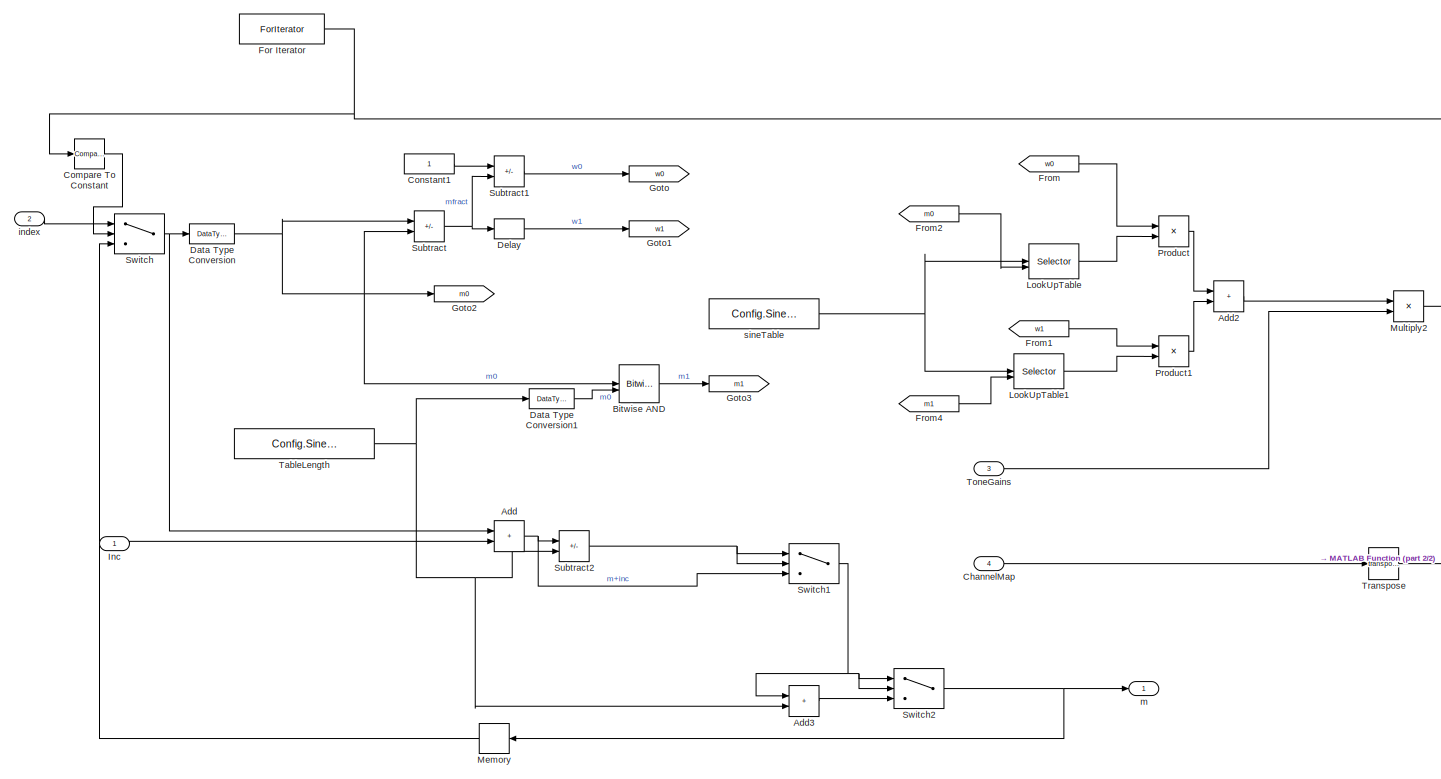
[diagram: ChimeSignalGenerator/For Each Subsystem/Switch Case Action Subsystem5/SigGen_Multitone/Multitone Engine/For Iterator Subsystem - part 1/2, most of the canvas]
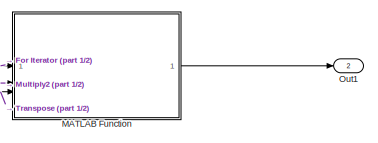
[diagram: ChimeSignalGenerator/For Each Subsystem/Switch Case Action Subsystem5/SigGen_Multitone/Multitone Engine/For Iterator Subsystem - part 2/2, top right region]
BLOCK [SubSystem] ChimeSignalGenerator/For Each Subsystem/Switch Case Action Subsystem5/SigGen_Multitone/Multitone Engine/For Iterator Subsystem
  TreatAsAtomicUnit = on
BLOCK [Sum] ChimeSignalGenerator/For Each Subsystem/Switch Case Action Subsystem5/SigGen_Multitone/Multitone Engine/For Iterator Subsystem/Add
  IconShape = rectangular
BLOCK [Sum] ChimeSignalGenerator/For Each Subsystem/Switch Case Action Subsystem5/SigGen_Multitone/Multitone Engine/For Iterator Subsystem/Add2
  IconShape = rectangular
BLOCK [Sum] ChimeSignalGenerator/For Each Subsystem/Switch Case Action Subsystem5/SigGen_Multitone/Multitone Engine/For Iterator Subsystem/Add3
  IconShape = rectangular
BLOCK [Reference] ChimeSignalGenerator/For Each Subsystem/Switch Case Action Subsystem5/SigGen_Multitone/Multitone Engine/For Iterator Subsystem/Bitwise AND  REF=simulink/Logic and Bit
Operations/Bitwise
Operator
  SourceBlock = simulink/Logic and Bit\nOperations/Bitwise\nOperator
  SourceType = Bitwise Operator
BLOCK [Inport] ChimeSignalGenerator/For Each Subsystem/Switch Case Action Subsystem5/SigGen_Multitone/Multitone Engine/For Iterator Subsystem/ChannelMap
  Port = 4
BLOCK [Reference] ChimeSignalGenerator/For Each Subsystem/Switch Case Action Subsystem5/SigGen_Multitone/Multitone Engine/For Iterator Subsystem/Compare To Constant  REF=simulink/Logic and Bit
Operations/Compare
To Constant
  SourceBlock = simulink/Logic and Bit\nOperations/Compare\nTo Constant
  SourceType = Compare To Constant
BLOCK [Constant] ChimeSignalGenerator/For Each Subsystem/Switch Case Action Subsystem5/SigGen_Multitone/Multitone Engine/For Iterator Subsystem/Constant1
  OutDataTypeStr = single
BLOCK [DataTypeConversion] ChimeSignalGenerator/For Each Subsystem/Switch Case Action Subsystem5/SigGen_Multitone/Multitone Engine/For Iterator Subsystem/Data Type Conversion
  OutDataTypeStr = uint32
  RndMeth = Floor
  SaturateOnIntegerOverflow = off
BLOCK [DataTypeConversion] ChimeSignalGenerator/For Each Subsystem/Switch Case Action Subsystem5/SigGen_Multitone/Multitone Engine/For Iterator Subsystem/Data Type Conversion1
  OutDataTypeStr = uint32
  RndMeth = Floor
  SaturateOnIntegerOverflow = off
BLOCK [Delay] ChimeSignalGenerator/For Each Subsystem/Switch Case Action Subsystem5/SigGen_Multitone/Multitone Engine/For Iterator Subsystem/Delay
  DelayLength = 0
  InputPortMap = u0
BLOCK [ForIterator] ChimeSignalGenerator/For Each Subsystem/Switch Case Action Subsystem5/SigGen_Multitone/Multitone Engine/For Iterator Subsystem/For Iterator
  IterationLimit = Config.FrameSizeSamples
  ResetStates = reset
BLOCK [From] ChimeSignalGenerator/For Each Subsystem/Switch Case Action Subsystem5/SigGen_Multitone/Multitone Engine/For Iterator Subsystem/From
  GotoTag = w0
BLOCK [From] ChimeSignalGenerator/For Each Subsystem/Switch Case Action Subsystem5/SigGen_Multitone/Multitone Engine/For Iterator Subsystem/From1
  GotoTag = w1
BLOCK [From] ChimeSignalGenerator/For Each Subsystem/Switch Case Action Subsystem5/SigGen_Multitone/Multitone Engine/For Iterator Subsystem/From2
  GotoTag = m0
BLOCK [From] ChimeSignalGenerator/For Each Subsystem/Switch Case Action Subsystem5/SigGen_Multitone/Multitone Engine/For Iterator Subsystem/From4
  GotoTag = m1
BLOCK [Goto] ChimeSignalGenerator/For Each Subsystem/Switch Case Action Subsystem5/SigGen_Multitone/Multitone Engine/For Iterator Subsystem/Goto
  GotoTag = w0
BLOCK [Goto] ChimeSignalGenerator/For Each Subsystem/Switch Case Action Subsystem5/SigGen_Multitone/Multitone Engine/For Iterator Subsystem/Goto1
  GotoTag = w1
BLOCK [Goto] ChimeSignalGenerator/For Each Subsystem/Switch Case Action Subsystem5/SigGen_Multitone/Multitone Engine/For Iterator Subsystem/Goto2
  GotoTag = m0
BLOCK [Goto] ChimeSignalGenerator/For Each Subsystem/Switch Case Action Subsystem5/SigGen_Multitone/Multitone Engine/For Iterator Subsystem/Goto3
  GotoTag = m1
BLOCK [Inport] ChimeSignalGenerator/For Each Subsystem/Switch Case Action Subsystem5/SigGen_Multitone/Multitone Engine/For Iterator Subsystem/Inc 
BLOCK [Selector] ChimeSignalGenerator/For Each Subsystem/Switch Case Action Subsystem5/SigGen_Multitone/Multitone Engine/For Iterator Subsystem/LookUpTable
  IndexMode = Zero-based
  IndexOptions = Index vector (port)
  Indices = [1 3]
  InputPortWidth = Config.SineTableLength
  OutputSizes = 1
BLOCK [Selector] ChimeSignalGenerator/For Each Subsystem/Switch Case Action Subsystem5/SigGen_Multitone/Multitone Engine/For Iterator Subsystem/LookUpTable1
  IndexMode = Zero-based
  IndexOptions = Index vector (port)
  Indices = [1 3]
  InputPortWidth = Config.SineTableLength
  OutputSizes = 1
BLOCK [SubSystem] ChimeSignalGenerator/For Each Subsystem/Switch Case Action Subsystem5/SigGen_Multitone/Multitone Engine/For Iterator Subsystem/MATLAB Function
  ErrorFcn = Stateflow.Translate.translate
  PermitHierarchicalResolution = ExplicitOnly
  SFBlockType = MATLAB Function
  TreatAsAtomicUnit = on
BLOCK [Demux] ChimeSignalGenerator/For Each Subsystem/Switch Case Action Subsystem5/SigGen_Multitone/Multitone Engine/For Iterator Subsystem/MATLAB Function/ Demux 
  Outputs = 1
BLOCK [S-Function] ChimeSignalGenerator/For Each Subsystem/Switch Case Action Subsystem5/SigGen_Multitone/Multitone Engine/For Iterator Subsystem/MATLAB Function/ SFunction 
  EnableBusSupport = off
  FunctionName = sf_sfun
  Parameters = frameSize_samples
  PortCounts = [3 2]
  SFcnIsStateOwnerBlock = off
  SFunctionDeploymentMode = off
  Tag = Stateflow S-Function 62
BLOCK [Terminator] ChimeSignalGenerator/For Each Subsystem/Switch Case Action Subsystem5/SigGen_Multitone/Multitone Engine/For Iterator Subsystem/MATLAB Function/ Terminator 
BLOCK [Inport] ChimeSignalGenerator/For Each Subsystem/Switch Case Action Subsystem5/SigGen_Multitone/Multitone Engine/For Iterator Subsystem/MATLAB Function/Data
  Port = 2
BLOCK [Inport] ChimeSignalGenerator/For Each Subsystem/Switch Case Action Subsystem5/SigGen_Multitone/Multitone Engine/For Iterator Subsystem/MATLAB Function/Index
BLOCK [Inport] ChimeSignalGenerator/For Each Subsystem/Switch Case Action Subsystem5/SigGen_Multitone/Multitone Engine/For Iterator Subsystem/MATLAB Function/MultitoneMap
  Port = 3
BLOCK [Outport] ChimeSignalGenerator/For Each Subsystem/Switch Case Action Subsystem5/SigGen_Multitone/Multitone Engine/For Iterator Subsystem/MATLAB Function/y
  VectorParamsAs1DForOutWhenUnconnected = off
BLOCK [Memory] ChimeSignalGenerator/For Each Subsystem/Switch Case Action Subsystem5/SigGen_Multitone/Multitone Engine/For Iterator Subsystem/Memory
  InheritSampleTime = on
BLOCK [Product] ChimeSignalGenerator/For Each Subsystem/Switch Case Action Subsystem5/SigGen_Multitone/Multitone Engine/For Iterator Subsystem/Multiply2
BLOCK [Outport] ChimeSignalGenerator/For Each Subsystem/Switch Case Action Subsystem5/SigGen_Multitone/Multitone Engine/For Iterator Subsystem/Out1
  Port = 2
  VectorParamsAs1DForOutWhenUnconnected = off
BLOCK [Product] ChimeSignalGenerator/For Each Subsystem/Switch Case Action Subsystem5/SigGen_Multitone/Multitone Engine/For Iterator Subsystem/Product
BLOCK [Product] ChimeSignalGenerator/For Each Subsystem/Switch Case Action Subsystem5/SigGen_Multitone/Multitone Engine/For Iterator Subsystem/Product1
BLOCK [Sum] ChimeSignalGenerator/For Each Subsystem/Switch Case Action Subsystem5/SigGen_Multitone/Multitone Engine/For Iterator Subsystem/Subtract
  IconShape = rectangular
  Inputs = +-
  OutDataTypeStr = single
BLOCK [Sum] ChimeSignalGenerator/For Each Subsystem/Switch Case Action Subsystem5/SigGen_Multitone/Multitone Engine/For Iterator Subsystem/Subtract1
  IconShape = rectangular
  Inputs = +-
  OutDataTypeStr = single
BLOCK [Sum] ChimeSignalGenerator/For Each Subsystem/Switch Case Action Subsystem5/SigGen_Multitone/Multitone Engine/For Iterator Subsystem/Subtract2
  IconShape = rectangular
  Inputs = +-
BLOCK [Switch] ChimeSignalGenerator/For Each Subsystem/Switch Case Action Subsystem5/SigGen_Multitone/Multitone Engine/For Iterator Subsystem/Switch
  Criteria = u2 ~= 0
  InputSameDT = off
  SaturateOnIntegerOverflow = off
BLOCK [Switch] ChimeSignalGenerator/For Each Subsystem/Switch Case Action Subsystem5/SigGen_Multitone/Multitone Engine/For Iterator Subsystem/Switch1
  InputSameDT = off
  SaturateOnIntegerOverflow = off
BLOCK [Switch] ChimeSignalGenerator/For Each Subsystem/Switch Case Action Subsystem5/SigGen_Multitone/Multitone Engine/For Iterator Subsystem/Switch2
  InputSameDT = off
  SaturateOnIntegerOverflow = off
BLOCK [Constant] ChimeSignalGenerator/For Each Subsystem/Switch Case Action Subsystem5/SigGen_Multitone/Multitone Engine/For Iterator Subsystem/TableLength
  OutDataTypeStr = single
  Value = Config.SineTableLength
  VectorParams1D = off
BLOCK [Inport] ChimeSignalGenerator/For Each Subsystem/Switch Case Action Subsystem5/SigGen_Multitone/Multitone Engine/For Iterator Subsystem/ToneGains
  Port = 3
BLOCK [Math] ChimeSignalGenerator/For Each Subsystem/Switch Case Action Subsystem5/SigGen_Multitone/Multitone Engine/For Iterator Subsystem/Transpose
  Operator = transpose
  SignedPower = on
BLOCK [Inport] ChimeSignalGenerator/For Each Subsystem/Switch Case Action Subsystem5/SigGen_Multitone/Multitone Engine/For Iterator Subsystem/index
  Port = 2
BLOCK [Outport] ChimeSignalGenerator/For Each Subsystem/Switch Case Action Subsystem5/SigGen_Multitone/Multitone Engine/For Iterator Subsystem/m
  VectorParamsAs1DForOutWhenUnconnected = off
BLOCK [Constant] ChimeSignalGenerator/For Each Subsystem/Switch Case Action Subsystem5/SigGen_Multitone/Multitone Engine/For Iterator Subsystem/sineTable
  OutDataTypeStr = single
  Value = Config.SineTable
BLOCK [From] ChimeSignalGenerator/For Each Subsystem/Switch Case Action Subsystem5/SigGen_Multitone/Multitone Engine/From
  GotoTag = Delta
BLOCK [From] ChimeSignalGenerator/For Each Subsystem/Switch Case Action Subsystem5/SigGen_Multitone/Multitone Engine/From1
  GotoTag = Index_init
BLOCK [From] ChimeSignalGenerator/For Each Subsystem/Switch Case Action Subsystem5/SigGen_Multitone/Multitone Engine/From4
  GotoTag = m
BLOCK [From] ChimeSignalGenerator/For Each Subsystem/Switch Case Action Subsystem5/SigGen_Multitone/Multitone Engine/From6
  GotoTag = Inc_init
BLOCK [Goto] ChimeSignalGenerator/For Each Subsystem/Switch Case Action Subsystem5/SigGen_Multitone/Multitone Engine/Goto
  GotoTag = Delta
BLOCK [Goto] ChimeSignalGenerator/For Each Subsystem/Switch Case Action Subsystem5/SigGen_Multitone/Multitone Engine/Goto1
  GotoTag = Index_init
BLOCK [Goto] ChimeSignalGenerator/For Each Subsystem/Switch Case Action Subsystem5/SigGen_Multitone/Multitone Engine/Goto4
  GotoTag = m
BLOCK [Goto] ChimeSignalGenerator/For Each Subsystem/Switch Case Action Subsystem5/SigGen_Multitone/Multitone Engine/Goto6
  GotoTag = Inc_init
BLOCK [Outport] ChimeSignalGenerator/For Each Subsystem/Switch Case Action Subsystem5/SigGen_Multitone/Multitone Engine/Multitone_Out
  VectorParamsAs1DForOutWhenUnconnected = off
BLOCK [Inport] ChimeSignalGenerator/For Each Subsystem/Switch Case Action Subsystem5/SigGen_Multitone/Multitone Engine/ToneGains
  Port = 3
BLOCK [Inport] ChimeSignalGenerator/For Each Subsystem/Switch Case Action Subsystem5/SigGen_Multitone/Multitone Engine/start_freq_In
BLOCK [Inport] ChimeSignalGenerator/For Each Subsystem/Switch Case Action Subsystem5/SigGen_Multitone/Multitone Engine/start_phase_In
  Port = 2
BLOCK [Outport] ChimeSignalGenerator/For Each Subsystem/Switch Case Action Subsystem5/SigGen_Multitone/Multitone_Out
  VectorParamsAs1DForOutWhenUnconnected = off
BLOCK [Inport] ChimeSignalGenerator/For Each Subsystem/Switch Case Action Subsystem5/SigGen_Multitone/ToneGains
  Port = 3
BLOCK [Inport] ChimeSignalGenerator/For Each Subsystem/Switch Case Action Subsystem5/SigGen_Multitone/start_freq_Hz
BLOCK [Inport] ChimeSignalGenerator/For Each Subsystem/Switch Case Action Subsystem5/SigGen_Multitone/start_phase_rad
  Port = 2
BLOCK [Inport] ChimeSignalGenerator/For Each Subsystem/Switch Case Action Subsystem5/StartFrequency
BLOCK [Inport] ChimeSignalGenerator/For Each Subsystem/Switch Case Action Subsystem5/StartingPhase
  Port = 2
BLOCK [Inport] ChimeSignalGenerator/For Each Subsystem/Switch Case Action Subsystem5/ToneGains
  Port = 3
BLOCK [SwitchCase] ChimeSignalGenerator/For Each Subsystem/Switch Case1
  CaseConditions = {2}
  ShowDefaultCase = off
BLOCK [SwitchCase] ChimeSignalGenerator/For Each Subsystem/Switch Case2
  CaseConditions = {3}
  ShowDefaultCase = off
BLOCK [SwitchCase] ChimeSignalGenerator/For Each Subsystem/Switch Case3
  CaseConditions = {4}
  ShowDefaultCase = off
BLOCK [SwitchCase] ChimeSignalGenerator/For Each Subsystem/Switch Case4
  CaseConditions = {5}
  ShowDefaultCase = off
BLOCK [SwitchCase] ChimeSignalGenerator/For Each Subsystem/Switch Case5
  CaseConditions = {6}
  ShowDefaultCase = off
BLOCK [Inport] ChimeSignalGenerator/For Each Subsystem/ToneGains
  Partition = on
  PartitionDimension = 2
  PartitionOffset = 0
  PartitionWidth = 2
  Port = 6
BLOCK [Inport] ChimeSignalGenerator/For Each Subsystem/mode
  Partition = on
  PartitionDimension = 2
  PartitionOffset = 0
  PartitionWidth = 1
BLOCK [Reference] ChimeSignalGenerator/HandyDefaultConfigFile  REF=HandyTextFile/HandyTextFile
  SourceBlock = HandyTextFile/HandyTextFile
  SourceType = Talaria Handy Text File
BLOCK [Reference] ChimeSignalGenerator/RTC  REF=RTC/RTC
  Description = It is LinearSignal generator block
  SourceBlock = RTC/RTC
  SourceType = Talaria RTC Receive
BLOCK [Outport] ChimeSignalGenerator/SignalGenerator_Out
  PortDimensions = [Config.FrameSizeSamples length(Config.SelectMode)]
  VectorParamsAs1DForOutWhenUnconnected = off
BLOCK [Math] ChimeSignalGenerator/Transpose
  Operator = transpose
  SignedPower = on
BLOCK [Math] ChimeSignalGenerator/Transpose1
  Operator = transpose
  SignedPower = on
BLOCK [Math] ChimeSignalGenerator/Transpose2
  Operator = transpose
  SignedPower = on
BLOCK [Math] ChimeSignalGenerator/Transpose3
  Operator = transpose
  SignedPower = on
BLOCK [Math] ChimeSignalGenerator/Transpose4
  Operator = transpose
  SignedPower = on
BLOCK [Math] ChimeSignalGenerator/Transpose5
  Operator = transpose
  SignedPower = on
BLOCK [Math] ChimeSignalGenerator/Transpose6
  Operator = transpose
  SignedPower = on
BLOCK [Math] ChimeSignalGenerator/Transpose7
  Operator = transpose
  SignedPower = on
ANNOTATION ChimeSignalGenerator/For Each Subsystem/Switch Case Action Subsystem/Log Sweep Signal Generator/Log Sweep Engine/Configuration_sublock: index_start
ANNOTATION ChimeSignalGenerator/For Each Subsystem/Switch Case Action Subsystem1/Linear Sweep Signal Generator/Linear Sweep Engine/Configuration_sublock: index_start
ANNOTATION ChimeSignalGenerator/For Each Subsystem/Switch Case Action Subsystem2/Old Sweep Signal Generator/Old Sweep Engine/Configuration_sublock: index_start
ANNOTATION ChimeSignalGenerator/For Each Subsystem/Switch Case Action Subsystem2/Old Sweep Signal Generator/Old Sweep Engine/Configuration_sublock: start_phase
ANNOTATION ChimeSignalGenerator/For Each Subsystem/Switch Case Action Subsystem5/SigGen_Multitone/Multitone Engine/Configuration_sublock: index_start
NET ChimeSignalGenerator/For Each Subsystem/CyclesPerSteps:1 -> ChimeSignalGenerator/For Each Subsystem/Data Type Conversion:1, ChimeSignalGenerator/For Each Subsystem/Switch Case Action Subsystem2:5
LINE ChimeSignalGenerator/For Each Subsystem/Data Type Conversion:1 -> ChimeSignalGenerator/For Each Subsystem/Switch Case Action Subsystem5:4
NET ChimeSignalGenerator/For Each Subsystem/EndFrequency:1 -> ChimeSignalGenerator/For Each Subsystem/Switch Case Action Subsystem1:2, ChimeSignalGenerator/For Each Subsystem/Switch Case Action Subsystem2:2, ChimeSignalGenerator/For Each Subsystem/Switch Case Action Subsystem:2
LINE ChimeSignalGenerator/For Each Subsystem/Merge:1 -> ChimeSignalGenerator/For Each Subsystem/Out:1
LINE ChimeSignalGenerator/For Each Subsystem/RandomNoise:1 -> ChimeSignalGenerator/For Each Subsystem/Switch Case Action Subsystem3:1
NET ChimeSignalGenerator/For Each Subsystem/StartFrequency:1 -> ChimeSignalGenerator/For Each Subsystem/Switch Case Action Subsystem1:1, ChimeSignalGenerator/For Each Subsystem/Switch Case Action Subsystem2:1, ChimeSignalGenerator/For Each Subsystem/Switch Case Action Subsystem4:1, ChimeSignalGenerator/For Each Subsystem/Switch Case Action Subsystem5:1, ChimeSignalGenerator/For Each Subsystem/Switch Case Action Subsystem:1
NET ChimeSignalGenerator/For Each Subsystem/StartingPhase:1 -> ChimeSignalGenerator/For Each Subsystem/Switch Case Action Subsystem1:4, ChimeSignalGenerator/For Each Subsystem/Switch Case Action Subsystem2:4, ChimeSignalGenerator/For Each Subsystem/Switch Case Action Subsystem4:2, ChimeSignalGenerator/For Each Subsystem/Switch Case Action Subsystem5:2, ChimeSignalGenerator/For Each Subsystem/Switch Case Action Subsystem:4
NET ChimeSignalGenerator/For Each Subsystem/Steps:1 -> ChimeSignalGenerator/For Each Subsystem/Switch Case Action Subsystem1:3, ChimeSignalGenerator/For Each Subsystem/Switch Case Action Subsystem2:3, ChimeSignalGenerator/For Each Subsystem/Switch Case Action Subsystem:3
LINE ChimeSignalGenerator/For Each Subsystem/Switch Case Action Subsystem/EndFrequency:1 -> ChimeSignalGenerator/For Each Subsystem/Switch Case Action Subsystem/Log Sweep Signal Generator:2
LINE ChimeSignalGenerator/For Each Subsystem/Switch Case Action Subsystem/Log Sweep Signal Generator/Log Sweep Engine/Compare To Constant1:1 -> ChimeSignalGenerator/For Each Subsystem/Switch Case Action Subsystem/Log Sweep Signal Generator/Log Sweep Engine/Goto3:1
LINE ChimeSignalGenerator/For Each Subsystem/Switch Case Action Subsystem/Log Sweep Signal Generator/Log Sweep Engine/Configuration_sublock/ /Math Function:1 -> ChimeSignalGenerator/For Each Subsystem/Switch Case Action Subsystem/Log Sweep Signal Generator/Log Sweep Engine/Configuration_sublock/ /inc_delta_Out1:1
LINE ChimeSignalGenerator/For Each Subsystem/Switch Case Action Subsystem/Log Sweep Signal Generator/Log Sweep Engine/Configuration_sublock/ /Multiply1:1 -> ChimeSignalGenerator/For Each Subsystem/Switch Case Action Subsystem/Log Sweep Signal Generator/Log Sweep Engine/Configuration_sublock/ /Math Function:2
LINE ChimeSignalGenerator/For Each Subsystem/Switch Case Action Subsystem/Log Sweep Signal Generator/Log Sweep Engine/Configuration_sublock/ /Multiply:1 -> ChimeSignalGenerator/For Each Subsystem/Switch Case Action Subsystem/Log Sweep Signal Generator/Log Sweep Engine/Configuration_sublock/ /Math Function:1
LINE ChimeSignalGenerator/For Each Subsystem/Switch Case Action Subsystem/Log Sweep Signal Generator/Log Sweep Engine/Configuration_sublock/ /inc_end_In2:1 -> ChimeSignalGenerator/For Each Subsystem/Switch Case Action Subsystem/Log Sweep Signal Generator/Log Sweep Engine/Configuration_sublock/ /Multiply:1
LINE ChimeSignalGenerator/For Each Subsystem/Switch Case Action Subsystem/Log Sweep Signal Generator/Log Sweep Engine/Configuration_sublock/ /inc_start_In1:1 -> ChimeSignalGenerator/For Each Subsystem/Switch Case Action Subsystem/Log Sweep Signal Generator/Log Sweep Engine/Configuration_sublock/ /Multiply:2
LINE ChimeSignalGenerator/For Each Subsystem/Switch Case Action Subsystem/Log Sweep Signal Generator/Log Sweep Engine/Configuration_sublock/ /oneVal:1 -> ChimeSignalGenerator/For Each Subsystem/Switch Case Action Subsystem/Log Sweep Signal Generator/Log Sweep Engine/Configuration_sublock/ /Multiply1:1
LINE ChimeSignalGenerator/For Each Subsystem/Switch Case Action Subsystem/Log Sweep Signal Generator/Log Sweep Engine/Configuration_sublock/ /steps_In3:1 -> ChimeSignalGenerator/For Each Subsystem/Switch Case Action Subsystem/Log Sweep Signal Generator/Log Sweep Engine/Configuration_sublock/ /Multiply1:2
LINE ChimeSignalGenerator/For Each Subsystem/Switch Case Action Subsystem/Log Sweep Signal Generator/Log Sweep Engine/Configuration_sublock/ :1 -> ChimeSignalGenerator/For Each Subsystem/Switch Case Action Subsystem/Log Sweep Signal Generator/Log Sweep Engine/Configuration_sublock/inc_delta:1
LINE ChimeSignalGenerator/For Each Subsystem/Switch Case Action Subsystem/Log Sweep Signal Generator/Log Sweep Engine/Configuration_sublock/Add1:1 -> ChimeSignalGenerator/For Each Subsystem/Switch Case Action Subsystem/Log Sweep Signal Generator/Log Sweep Engine/Configuration_sublock/Multiply2:2
LINE ChimeSignalGenerator/For Each Subsystem/Switch Case Action Subsystem/Log Sweep Signal Generator/Log Sweep Engine/Configuration_sublock/Add:1 -> ChimeSignalGenerator/For Each Subsystem/Switch Case Action Subsystem/Log Sweep Signal Generator/Log Sweep Engine/Configuration_sublock/index_start:1
NET ChimeSignalGenerator/For Each Subsystem/Switch Case Action Subsystem/Log Sweep Signal Generator/Log Sweep Engine/Configuration_sublock/Fs_value:1 -> ChimeSignalGenerator/For Each Subsystem/Switch Case Action Subsystem/Log Sweep Signal Generator/Log Sweep Engine/Configuration_sublock/Multiply4:1, ChimeSignalGenerator/For Each Subsystem/Switch Case Action Subsystem/Log Sweep Signal Generator/Log Sweep Engine/Configuration_sublock/Multiply5:1
LINE ChimeSignalGenerator/For Each Subsystem/Switch Case Action Subsystem/Log Sweep Signal Generator/Log Sweep Engine/Configuration_sublock/Multiply1:1 -> ChimeSignalGenerator/For Each Subsystem/Switch Case Action Subsystem/Log Sweep Signal Generator/Log Sweep Engine/Configuration_sublock/ :2
LINE ChimeSignalGenerator/For Each Subsystem/Switch Case Action Subsystem/Log Sweep Signal Generator/Log Sweep Engine/Configuration_sublock/Multiply2:1 -> ChimeSignalGenerator/For Each Subsystem/Switch Case Action Subsystem/Log Sweep Signal Generator/Log Sweep Engine/Configuration_sublock/Add:1
NET ChimeSignalGenerator/For Each Subsystem/Switch Case Action Subsystem/Log Sweep Signal Generator/Log Sweep Engine/Configuration_sublock/Multiply4:1 -> ChimeSignalGenerator/For Each Subsystem/Switch Case Action Subsystem/Log Sweep Signal Generator/Log Sweep Engine/Configuration_sublock/Multiply1:2, ChimeSignalGenerator/For Each Subsystem/Switch Case Action Subsystem/Log Sweep Signal Generator/Log Sweep Engine/Configuration_sublock/Multiply:2
LINE ChimeSignalGenerator/For Each Subsystem/Switch Case Action Subsystem/Log Sweep Signal Generator/Log Sweep Engine/Configuration_sublock/Multiply5:1 -> ChimeSignalGenerator/For Each Subsystem/Switch Case Action Subsystem/Log Sweep Signal Generator/Log Sweep Engine/Configuration_sublock/Multiply6:1
LINE ChimeSignalGenerator/For Each Subsystem/Switch Case Action Subsystem/Log Sweep Signal Generator/Log Sweep Engine/Configuration_sublock/Multiply6:1 -> ChimeSignalGenerator/For Each Subsystem/Switch Case Action Subsystem/Log Sweep Signal Generator/Log Sweep Engine/Configuration_sublock/Round:1
NET ChimeSignalGenerator/For Each Subsystem/Switch Case Action Subsystem/Log Sweep Signal Generator/Log Sweep Engine/Configuration_sublock/Multiply:1 -> ChimeSignalGenerator/For Each Subsystem/Switch Case Action Subsystem/Log Sweep Signal Generator/Log Sweep Engine/Configuration_sublock/ :1, ChimeSignalGenerator/For Each Subsystem/Switch Case Action Subsystem/Log Sweep Signal Generator/Log Sweep Engine/Configuration_sublock/inc_start:1
NET ChimeSignalGenerator/For Each Subsystem/Switch Case Action Subsystem/Log Sweep Signal Generator/Log Sweep Engine/Configuration_sublock/Round:1 -> ChimeSignalGenerator/For Each Subsystem/Switch Case Action Subsystem/Log Sweep Signal Generator/Log Sweep Engine/Configuration_sublock/ :3, ChimeSignalGenerator/For Each Subsystem/Switch Case Action Subsystem/Log Sweep Signal Generator/Log Sweep Engine/Configuration_sublock/steps:1
LINE ChimeSignalGenerator/For Each Subsystem/Switch Case Action Subsystem/Log Sweep Signal Generator/Log Sweep Engine/Configuration_sublock/end_freq:1 -> ChimeSignalGenerator/For Each Subsystem/Switch Case Action Subsystem/Log Sweep Signal Generator/Log Sweep Engine/Configuration_sublock/Multiply1:1
LINE ChimeSignalGenerator/For Each Subsystem/Switch Case Action Subsystem/Log Sweep Signal Generator/Log Sweep Engine/Configuration_sublock/framesize:1 -> ChimeSignalGenerator/For Each Subsystem/Switch Case Action Subsystem/Log Sweep Signal Generator/Log Sweep Engine/Configuration_sublock/Multiply6:2
LINE ChimeSignalGenerator/For Each Subsystem/Switch Case Action Subsystem/Log Sweep Signal Generator/Log Sweep Engine/Configuration_sublock/pi:1 -> ChimeSignalGenerator/For Each Subsystem/Switch Case Action Subsystem/Log Sweep Signal Generator/Log Sweep Engine/Configuration_sublock/Multiply2:3
LINE ChimeSignalGenerator/For Each Subsystem/Switch Case Action Subsystem/Log Sweep Signal Generator/Log Sweep Engine/Configuration_sublock/start_freq:1 -> ChimeSignalGenerator/For Each Subsystem/Switch Case Action Subsystem/Log Sweep Signal Generator/Log Sweep Engine/Configuration_sublock/Multiply:1
LINE ChimeSignalGenerator/For Each Subsystem/Switch Case Action Subsystem/Log Sweep Signal Generator/Log Sweep Engine/Configuration_sublock/start_phase:1 -> ChimeSignalGenerator/For Each Subsystem/Switch Case Action Subsystem/Log Sweep Signal Generator/Log Sweep Engine/Configuration_sublock/Multiply2:1
LINE ChimeSignalGenerator/For Each Subsystem/Switch Case Action Subsystem/Log Sweep Signal Generator/Log Sweep Engine/Configuration_sublock/sweep_time :1 -> ChimeSignalGenerator/For Each Subsystem/Switch Case Action Subsystem/Log Sweep Signal Generator/Log Sweep Engine/Configuration_sublock/Multiply5:2
NET ChimeSignalGenerator/For Each Subsystem/Switch Case Action Subsystem/Log Sweep Signal Generator/Log Sweep Engine/Configuration_sublock/tableLength:1 -> ChimeSignalGenerator/For Each Subsystem/Switch Case Action Subsystem/Log Sweep Signal Generator/Log Sweep Engine/Configuration_sublock/Add1:1, ChimeSignalGenerator/For Each Subsystem/Switch Case Action Subsystem/Log Sweep Signal Generator/Log Sweep Engine/Configuration_sublock/Multiply4:2
LINE ChimeSignalGenerator/For Each Subsystem/Switch Case Action Subsystem/Log Sweep Signal Generator/Log Sweep Engine/Configuration_sublock/two_val:1 -> ChimeSignalGenerator/For Each Subsystem/Switch Case Action Subsystem/Log Sweep Signal Generator/Log Sweep Engine/Configuration_sublock/Add1:2
LINE ChimeSignalGenerator/For Each Subsystem/Switch Case Action Subsystem/Log Sweep Signal Generator/Log Sweep Engine/Configuration_sublock/zero_Val:1 -> ChimeSignalGenerator/For Each Subsystem/Switch Case Action Subsystem/Log Sweep Signal Generator/Log Sweep Engine/Configuration_sublock/Add:2
LINE ChimeSignalGenerator/For Each Subsystem/Switch Case Action Subsystem/Log Sweep Signal Generator/Log Sweep Engine/Configuration_sublock:1 -> ChimeSignalGenerator/For Each Subsystem/Switch Case Action Subsystem/Log Sweep Signal Generator/Log Sweep Engine/Goto6:1
LINE ChimeSignalGenerator/For Each Subsystem/Switch Case Action Subsystem/Log Sweep Signal Generator/Log Sweep Engine/Configuration_sublock:2 -> ChimeSignalGenerator/For Each Subsystem/Switch Case Action Subsystem/Log Sweep Signal Generator/Log Sweep Engine/Goto2:1
LINE ChimeSignalGenerator/For Each Subsystem/Switch Case Action Subsystem/Log Sweep Signal Generator/Log Sweep Engine/Configuration_sublock:3 -> ChimeSignalGenerator/For Each Subsystem/Switch Case Action Subsystem/Log Sweep Signal Generator/Log Sweep Engine/Goto1:1
LINE ChimeSignalGenerator/For Each Subsystem/Switch Case Action Subsystem/Log Sweep Signal Generator/Log Sweep Engine/Configuration_sublock:4 -> ChimeSignalGenerator/For Each Subsystem/Switch Case Action Subsystem/Log Sweep Signal Generator/Log Sweep Engine/Goto:1
LINE ChimeSignalGenerator/For Each Subsystem/Switch Case Action Subsystem/Log Sweep Signal Generator/Log Sweep Engine/Constant1:1 -> ChimeSignalGenerator/For Each Subsystem/Switch Case Action Subsystem/Log Sweep Signal Generator/Log Sweep Engine/Subtract:2
LINE ChimeSignalGenerator/For Each Subsystem/Switch Case Action Subsystem/Log Sweep Signal Generator/Log Sweep Engine/Delay1:1 -> ChimeSignalGenerator/For Each Subsystem/Switch Case Action Subsystem/Log Sweep Signal Generator/Log Sweep Engine/Subtract:1
NET ChimeSignalGenerator/For Each Subsystem/Switch Case Action Subsystem/Log Sweep Signal Generator/Log Sweep Engine/Delay2:1 -> ChimeSignalGenerator/For Each Subsystem/Switch Case Action Subsystem/Log Sweep Signal Generator/Log Sweep Engine/For Iterator Subsystem:1, ChimeSignalGenerator/For Each Subsystem/Switch Case Action Subsystem/Log Sweep Signal Generator/Log Sweep Engine/Product:1
LINE ChimeSignalGenerator/For Each Subsystem/Switch Case Action Subsystem/Log Sweep Signal Generator/Log Sweep Engine/Delay:1 -> ChimeSignalGenerator/For Each Subsystem/Switch Case Action Subsystem/Log Sweep Signal Generator/Log Sweep Engine/For Iterator Subsystem:2
LINE ChimeSignalGenerator/For Each Subsystem/Switch Case Action Subsystem/Log Sweep Signal Generator/Log Sweep Engine/For Iterator Subsystem/Add2:1 -> ChimeSignalGenerator/For Each Subsystem/Switch Case Action Subsystem/Log Sweep Signal Generator/Log Sweep Engine/For Iterator Subsystem/MATLAB Function:2
LINE ChimeSignalGenerator/For Each Subsystem/Switch Case Action Subsystem/Log Sweep Signal Generator/Log Sweep Engine/For Iterator Subsystem/Add3:1 -> ChimeSignalGenerator/For Each Subsystem/Switch Case Action Subsystem/Log Sweep Signal Generator/Log Sweep Engine/For Iterator Subsystem/Switch2:3
NET ChimeSignalGenerator/For Each Subsystem/Switch Case Action Subsystem/Log Sweep Signal Generator/Log Sweep Engine/For Iterator Subsystem/Add:1 -> ChimeSignalGenerator/For Each Subsystem/Switch Case Action Subsystem/Log Sweep Signal Generator/Log Sweep Engine/For Iterator Subsystem/Subtract2:1, ChimeSignalGenerator/For Each Subsystem/Switch Case Action Subsystem/Log Sweep Signal Generator/Log Sweep Engine/For Iterator Subsystem/Switch1:3
LINE ChimeSignalGenerator/For Each Subsystem/Switch Case Action Subsystem/Log Sweep Signal Generator/Log Sweep Engine/For Iterator Subsystem/Bitwise AND:1 -> ChimeSignalGenerator/For Each Subsystem/Switch Case Action Subsystem/Log Sweep Signal Generator/Log Sweep Engine/For Iterator Subsystem/Goto3:1
LINE ChimeSignalGenerator/For Each Subsystem/Switch Case Action Subsystem/Log Sweep Signal Generator/Log Sweep Engine/For Iterator Subsystem/Compare To Constant:1 -> ChimeSignalGenerator/For Each Subsystem/Switch Case Action Subsystem/Log Sweep Signal Generator/Log Sweep Engine/For Iterator Subsystem/Switch:2
LINE ChimeSignalGenerator/For Each Subsystem/Switch Case Action Subsystem/Log Sweep Signal Generator/Log Sweep Engine/For Iterator Subsystem/Constant1:1 -> ChimeSignalGenerator/For Each Subsystem/Switch Case Action Subsystem/Log Sweep Signal Generator/Log Sweep Engine/For Iterator Subsystem/Subtract1:1
LINE ChimeSignalGenerator/For Each Subsystem/Switch Case Action Subsystem/Log Sweep Signal Generator/Log Sweep Engine/For Iterator Subsystem/Data Type Conversion1:1 -> ChimeSignalGenerator/For Each Subsystem/Switch Case Action Subsystem/Log Sweep Signal Generator/Log Sweep Engine/For Iterator Subsystem/Bitwise AND:2
NET ChimeSignalGenerator/For Each Subsystem/Switch Case Action Subsystem/Log Sweep Signal Generator/Log Sweep Engine/For Iterator Subsystem/Data Type Conversion:1 -> ChimeSignalGenerator/For Each Subsystem/Switch Case Action Subsystem/Log Sweep Signal Generator/Log Sweep Engine/For Iterator Subsystem/Bitwise AND:1, ChimeSignalGenerator/For Each Subsystem/Switch Case Action Subsystem/Log Sweep Signal Generator/Log Sweep Engine/For Iterator Subsystem/Goto2:1, ChimeSignalGenerator/For Each Subsystem/Switch Case Action Subsystem/Log Sweep Signal Generator/Log Sweep Engine/For Iterator Subsystem/Subtract:1, ChimeSignalGenerator/For Each Subsystem/Switch Case Action Subsystem/Log Sweep Signal Generator/Log Sweep Engine/For Iterator Subsystem/Subtract:2
LINE ChimeSignalGenerator/For Each Subsystem/Switch Case Action Subsystem/Log Sweep Signal Generator/Log Sweep Engine/For Iterator Subsystem/Delay:1 -> ChimeSignalGenerator/For Each Subsystem/Switch Case Action Subsystem/Log Sweep Signal Generator/Log Sweep Engine/For Iterator Subsystem/Goto1:1
NET ChimeSignalGenerator/For Each Subsystem/Switch Case Action Subsystem/Log Sweep Signal Generator/Log Sweep Engine/For Iterator Subsystem/For Iterator:1 -> ChimeSignalGenerator/For Each Subsystem/Switch Case Action Subsystem/Log Sweep Signal Generator/Log Sweep Engine/For Iterator Subsystem/Compare To Constant:1, ChimeSignalGenerator/For Each Subsystem/Switch Case Action Subsystem/Log Sweep Signal Generator/Log Sweep Engine/For Iterator Subsystem/MATLAB Function:1
LINE ChimeSignalGenerator/For Each Subsystem/Switch Case Action Subsystem/Log Sweep Signal Generator/Log Sweep Engine/For Iterator Subsystem/From1:1 -> ChimeSignalGenerator/For Each Subsystem/Switch Case Action Subsystem/Log Sweep Signal Generator/Log Sweep Engine/For Iterator Subsystem/Product1:1
LINE ChimeSignalGenerator/For Each Subsystem/Switch Case Action Subsystem/Log Sweep Signal Generator/Log Sweep Engine/For Iterator Subsystem/From2:1 -> ChimeSignalGenerator/For Each Subsystem/Switch Case Action Subsystem/Log Sweep Signal Generator/Log Sweep Engine/For Iterator Subsystem/LookUpTable:2
LINE ChimeSignalGenerator/For Each Subsystem/Switch Case Action Subsystem/Log Sweep Signal Generator/Log Sweep Engine/For Iterator Subsystem/From4:1 -> ChimeSignalGenerator/For Each Subsystem/Switch Case Action Subsystem/Log Sweep Signal Generator/Log Sweep Engine/For Iterator Subsystem/LookUpTable1:2
LINE ChimeSignalGenerator/For Each Subsystem/Switch Case Action Subsystem/Log Sweep Signal Generator/Log Sweep Engine/For Iterator Subsystem/From:1 -> ChimeSignalGenerator/For Each Subsystem/Switch Case Action Subsystem/Log Sweep Signal Generator/Log Sweep Engine/For Iterator Subsystem/Product:1
LINE ChimeSignalGenerator/For Each Subsystem/Switch Case Action Subsystem/Log Sweep Signal Generator/Log Sweep Engine/For Iterator Subsystem/Inc :1 -> ChimeSignalGenerator/For Each Subsystem/Switch Case Action Subsystem/Log Sweep Signal Generator/Log Sweep Engine/For Iterator Subsystem/Add:2
LINE ChimeSignalGenerator/For Each Subsystem/Switch Case Action Subsystem/Log Sweep Signal Generator/Log Sweep Engine/For Iterator Subsystem/LookUpTable1:1 -> ChimeSignalGenerator/For Each Subsystem/Switch Case Action Subsystem/Log Sweep Signal Generator/Log Sweep Engine/For Iterator Subsystem/Product1:2
LINE ChimeSignalGenerator/For Each Subsystem/Switch Case Action Subsystem/Log Sweep Signal Generator/Log Sweep Engine/For Iterator Subsystem/LookUpTable:1 -> ChimeSignalGenerator/For Each Subsystem/Switch Case Action Subsystem/Log Sweep Signal Generator/Log Sweep Engine/For Iterator Subsystem/Product:2
LINE ChimeSignalGenerator/For Each Subsystem/Switch Case Action Subsystem/Log Sweep Signal Generator/Log Sweep Engine/For Iterator Subsystem/MATLAB Function:1 -> ChimeSignalGenerator/For Each Subsystem/Switch Case Action Subsystem/Log Sweep Signal Generator/Log Sweep Engine/For Iterator Subsystem/Out1:1
LINE ChimeSignalGenerator/For Each Subsystem/Switch Case Action Subsystem/Log Sweep Signal Generator/Log Sweep Engine/For Iterator Subsystem/Memory:1 -> ChimeSignalGenerator/For Each Subsystem/Switch Case Action Subsystem/Log Sweep Signal Generator/Log Sweep Engine/For Iterator Subsystem/Switch:3
LINE ChimeSignalGenerator/For Each Subsystem/Switch Case Action Subsystem/Log Sweep Signal Generator/Log Sweep Engine/For Iterator Subsystem/Product1:1 -> ChimeSignalGenerator/For Each Subsystem/Switch Case Action Subsystem/Log Sweep Signal Generator/Log Sweep Engine/For Iterator Subsystem/Add2:2
LINE ChimeSignalGenerator/For Each Subsystem/Switch Case Action Subsystem/Log Sweep Signal Generator/Log Sweep Engine/For Iterator Subsystem/Product:1 -> ChimeSignalGenerator/For Each Subsystem/Switch Case Action Subsystem/Log Sweep Signal Generator/Log Sweep Engine/For Iterator Subsystem/Add2:1
LINE ChimeSignalGenerator/For Each Subsystem/Switch Case Action Subsystem/Log Sweep Signal Generator/Log Sweep Engine/For Iterator Subsystem/Subtract1:1 -> ChimeSignalGenerator/For Each Subsystem/Switch Case Action Subsystem/Log Sweep Signal Generator/Log Sweep Engine/For Iterator Subsystem/Goto:1
NET ChimeSignalGenerator/For Each Subsystem/Switch Case Action Subsystem/Log Sweep Signal Generator/Log Sweep Engine/For Iterator Subsystem/Subtract2:1 -> ChimeSignalGenerator/For Each Subsystem/Switch Case Action Subsystem/Log Sweep Signal Generator/Log Sweep Engine/For Iterator Subsystem/Switch1:1, ChimeSignalGenerator/For Each Subsystem/Switch Case Action Subsystem/Log Sweep Signal Generator/Log Sweep Engine/For Iterator Subsystem/Switch1:2
NET ChimeSignalGenerator/For Each Subsystem/Switch Case Action Subsystem/Log Sweep Signal Generator/Log Sweep Engine/For Iterator Subsystem/Subtract:1 -> ChimeSignalGenerator/For Each Subsystem/Switch Case Action Subsystem/Log Sweep Signal Generator/Log Sweep Engine/For Iterator Subsystem/Delay:1, ChimeSignalGenerator/For Each Subsystem/Switch Case Action Subsystem/Log Sweep Signal Generator/Log Sweep Engine/For Iterator Subsystem/Subtract1:2
NET ChimeSignalGenerator/For Each Subsystem/Switch Case Action Subsystem/Log Sweep Signal Generator/Log Sweep Engine/For Iterator Subsystem/Switch1:1 -> ChimeSignalGenerator/For Each Subsystem/Switch Case Action Subsystem/Log Sweep Signal Generator/Log Sweep Engine/For Iterator Subsystem/Add3:1, ChimeSignalGenerator/For Each Subsystem/Switch Case Action Subsystem/Log Sweep Signal Generator/Log Sweep Engine/For Iterator Subsystem/Switch2:1, ChimeSignalGenerator/For Each Subsystem/Switch Case Action Subsystem/Log Sweep Signal Generator/Log Sweep Engine/For Iterator Subsystem/Switch2:2
NET ChimeSignalGenerator/For Each Subsystem/Switch Case Action Subsystem/Log Sweep Signal Generator/Log Sweep Engine/For Iterator Subsystem/Switch2:1 -> ChimeSignalGenerator/For Each Subsystem/Switch Case Action Subsystem/Log Sweep Signal Generator/Log Sweep Engine/For Iterator Subsystem/Memory:1, ChimeSignalGenerator/For Each Subsystem/Switch Case Action Subsystem/Log Sweep Signal Generator/Log Sweep Engine/For Iterator Subsystem/m:1
NET ChimeSignalGenerator/For Each Subsystem/Switch Case Action Subsystem/Log Sweep Signal Generator/Log Sweep Engine/For Iterator Subsystem/Switch:1 -> ChimeSignalGenerator/For Each Subsystem/Switch Case Action Subsystem/Log Sweep Signal Generator/Log Sweep Engine/For Iterator Subsystem/Add:1, ChimeSignalGenerator/For Each Subsystem/Switch Case Action Subsystem/Log Sweep Signal Generator/Log Sweep Engine/For Iterator Subsystem/Data Type Conversion:1
NET ChimeSignalGenerator/For Each Subsystem/Switch Case Action Subsystem/Log Sweep Signal Generator/Log Sweep Engine/For Iterator Subsystem/TableLength:1 -> ChimeSignalGenerator/For Each Subsystem/Switch Case Action Subsystem/Log Sweep Signal Generator/Log Sweep Engine/For Iterator Subsystem/Add3:2, ChimeSignalGenerator/For Each Subsystem/Switch Case Action Subsystem/Log Sweep Signal Generator/Log Sweep Engine/For Iterator Subsystem/Data Type Conversion1:1, ChimeSignalGenerator/For Each Subsystem/Switch Case Action Subsystem/Log Sweep Signal Generator/Log Sweep Engine/For Iterator Subsystem/Subtract2:2
LINE ChimeSignalGenerator/For Each Subsystem/Switch Case Action Subsystem/Log Sweep Signal Generator/Log Sweep Engine/For Iterator Subsystem/index:1 -> ChimeSignalGenerator/For Each Subsystem/Switch Case Action Subsystem/Log Sweep Signal Generator/Log Sweep Engine/For Iterator Subsystem/Switch:1
NET ChimeSignalGenerator/For Each Subsystem/Switch Case Action Subsystem/Log Sweep Signal Generator/Log Sweep Engine/For Iterator Subsystem/sineTable:1 -> ChimeSignalGenerator/For Each Subsystem/Switch Case Action Subsystem/Log Sweep Signal Generator/Log Sweep Engine/For Iterator Subsystem/LookUpTable1:1, ChimeSignalGenerator/For Each Subsystem/Switch Case Action Subsystem/Log Sweep Signal Generator/Log Sweep Engine/For Iterator Subsystem/LookUpTable:1
LINE ChimeSignalGenerator/For Each Subsystem/Switch Case Action Subsystem/Log Sweep Signal Generator/Log Sweep Engine/For Iterator Subsystem:1 -> ChimeSignalGenerator/For Each Subsystem/Switch Case Action Subsystem/Log Sweep Signal Generator/Log Sweep Engine/Goto4:1
LINE ChimeSignalGenerator/For Each Subsystem/Switch Case Action Subsystem/Log Sweep Signal Generator/Log Sweep Engine/For Iterator Subsystem:2 -> ChimeSignalGenerator/For Each Subsystem/Switch Case Action Subsystem/Log Sweep Signal Generator/Log Sweep Engine/Log_Sweep_Out:1
LINE ChimeSignalGenerator/For Each Subsystem/Switch Case Action Subsystem/Log Sweep Signal Generator/Log Sweep Engine/From1:1 -> ChimeSignalGenerator/For Each Subsystem/Switch Case Action Subsystem/Log Sweep Signal Generator/Log Sweep Engine/Delay:2
NET ChimeSignalGenerator/For Each Subsystem/Switch Case Action Subsystem/Log Sweep Signal Generator/Log Sweep Engine/From2:1 -> ChimeSignalGenerator/For Each Subsystem/Switch Case Action Subsystem/Log Sweep Signal Generator/Log Sweep Engine/Delay1:2, ChimeSignalGenerator/For Each Subsystem/Switch Case Action Subsystem/Log Sweep Signal Generator/Log Sweep Engine/Switch1:1
LINE ChimeSignalGenerator/For Each Subsystem/Switch Case Action Subsystem/Log Sweep Signal Generator/Log Sweep Engine/From3:1 -> ChimeSignalGenerator/For Each Subsystem/Switch Case Action Subsystem/Log Sweep Signal Generator/Log Sweep Engine/Switch1:2
LINE ChimeSignalGenerator/For Each Subsystem/Switch Case Action Subsystem/Log Sweep Signal Generator/Log Sweep Engine/From4:1 -> ChimeSignalGenerator/For Each Subsystem/Switch Case Action Subsystem/Log Sweep Signal Generator/Log Sweep Engine/Delay:1
LINE ChimeSignalGenerator/For Each Subsystem/Switch Case Action Subsystem/Log Sweep Signal Generator/Log Sweep Engine/From5:1 -> ChimeSignalGenerator/For Each Subsystem/Switch Case Action Subsystem/Log Sweep Signal Generator/Log Sweep Engine/Switch2:2
LINE ChimeSignalGenerator/For Each Subsystem/Switch Case Action Subsystem/Log Sweep Signal Generator/Log Sweep Engine/From6:1 -> ChimeSignalGenerator/For Each Subsystem/Switch Case Action Subsystem/Log Sweep Signal Generator/Log Sweep Engine/Switch2:3
LINE ChimeSignalGenerator/For Each Subsystem/Switch Case Action Subsystem/Log Sweep Signal Generator/Log Sweep Engine/From7:1 -> ChimeSignalGenerator/For Each Subsystem/Switch Case Action Subsystem/Log Sweep Signal Generator/Log Sweep Engine/Delay2:2
LINE ChimeSignalGenerator/For Each Subsystem/Switch Case Action Subsystem/Log Sweep Signal Generator/Log Sweep Engine/From8:1 -> ChimeSignalGenerator/For Each Subsystem/Switch Case Action Subsystem/Log Sweep Signal Generator/Log Sweep Engine/Switch2:1
LINE ChimeSignalGenerator/For Each Subsystem/Switch Case Action Subsystem/Log Sweep Signal Generator/Log Sweep Engine/From:1 -> ChimeSignalGenerator/For Each Subsystem/Switch Case Action Subsystem/Log Sweep Signal Generator/Log Sweep Engine/Product:2
LINE ChimeSignalGenerator/For Each Subsystem/Switch Case Action Subsystem/Log Sweep Signal Generator/Log Sweep Engine/Product:1 -> ChimeSignalGenerator/For Each Subsystem/Switch Case Action Subsystem/Log Sweep Signal Generator/Log Sweep Engine/Goto5:1
NET ChimeSignalGenerator/For Each Subsystem/Switch Case Action Subsystem/Log Sweep Signal Generator/Log Sweep Engine/Subtract:1 -> ChimeSignalGenerator/For Each Subsystem/Switch Case Action Subsystem/Log Sweep Signal Generator/Log Sweep Engine/Compare To Constant1:1, ChimeSignalGenerator/For Each Subsystem/Switch Case Action Subsystem/Log Sweep Signal Generator/Log Sweep Engine/Switch1:3
LINE ChimeSignalGenerator/For Each Subsystem/Switch Case Action Subsystem/Log Sweep Signal Generator/Log Sweep Engine/Switch1:1 -> ChimeSignalGenerator/For Each Subsystem/Switch Case Action Subsystem/Log Sweep Signal Generator/Log Sweep Engine/Delay1:1
LINE ChimeSignalGenerator/For Each Subsystem/Switch Case Action Subsystem/Log Sweep Signal Generator/Log Sweep Engine/Switch2:1 -> ChimeSignalGenerator/For Each Subsystem/Switch Case Action Subsystem/Log Sweep Signal Generator/Log Sweep Engine/Delay2:1
LINE ChimeSignalGenerator/For Each Subsystem/Switch Case Action Subsystem/Log Sweep Signal Generator/Log Sweep Engine/end_freq_In:1 -> ChimeSignalGenerator/For Each Subsystem/Switch Case Action Subsystem/Log Sweep Signal Generator/Log Sweep Engine/Configuration_sublock:2
LINE ChimeSignalGenerator/For Each Subsystem/Switch Case Action Subsystem/Log Sweep Signal Generator/Log Sweep Engine/start_freq_In:1 -> ChimeSignalGenerator/For Each Subsystem/Switch Case Action Subsystem/Log Sweep Signal Generator/Log Sweep Engine/Configuration_sublock:1
LINE ChimeSignalGenerator/For Each Subsystem/Switch Case Action Subsystem/Log Sweep Signal Generator/Log Sweep Engine/start_phase_In:1 -> ChimeSignalGenerator/For Each Subsystem/Switch Case Action Subsystem/Log Sweep Signal Generator/Log Sweep Engine/Configuration_sublock:3
LINE ChimeSignalGenerator/For Each Subsystem/Switch Case Action Subsystem/Log Sweep Signal Generator/Log Sweep Engine/sweep_time_In:1 -> ChimeSignalGenerator/For Each Subsystem/Switch Case Action Subsystem/Log Sweep Signal Generator/Log Sweep Engine/Configuration_sublock:4
NET ChimeSignalGenerator/For Each Subsystem/Switch Case Action Subsystem/Log Sweep Signal Generator/Log Sweep Engine:1 -> ChimeSignalGenerator/For Each Subsystem/Switch Case Action Subsystem/Log Sweep Signal Generator/Log sweep analysis:1, ChimeSignalGenerator/For Each Subsystem/Switch Case Action Subsystem/Log Sweep Signal Generator/Log_Sweep_Out:1, ChimeSignalGenerator/For Each Subsystem/Switch Case Action Subsystem/Log Sweep Signal Generator/To Workspace:1
LINE ChimeSignalGenerator/For Each Subsystem/Switch Case Action Subsystem/Log Sweep Signal Generator/Log sweep analysis/Difference:1 -> ChimeSignalGenerator/For Each Subsystem/Switch Case Action Subsystem/Log Sweep Signal Generator/Log sweep analysis/Log Sweep Difference:1
NET ChimeSignalGenerator/For Each Subsystem/Switch Case Action Subsystem/Log Sweep Signal Generator/Log sweep analysis/In1:1 -> ChimeSignalGenerator/For Each Subsystem/Switch Case Action Subsystem/Log Sweep Signal Generator/Log sweep analysis/Difference:1, ChimeSignalGenerator/For Each Subsystem/Switch Case Action Subsystem/Log Sweep Signal Generator/Log sweep analysis/Log Sweep Spectrum Analyzer:1
LINE ChimeSignalGenerator/For Each Subsystem/Switch Case Action Subsystem/Log Sweep Signal Generator/end_freq_Hz:1 -> ChimeSignalGenerator/For Each Subsystem/Switch Case Action Subsystem/Log Sweep Signal Generator/Log Sweep Engine:2
LINE ChimeSignalGenerator/For Each Subsystem/Switch Case Action Subsystem/Log Sweep Signal Generator/start_freq_Hz:1 -> ChimeSignalGenerator/For Each Subsystem/Switch Case Action Subsystem/Log Sweep Signal Generator/Log Sweep Engine:1
LINE ChimeSignalGenerator/For Each Subsystem/Switch Case Action Subsystem/Log Sweep Signal Generator/start_phase_rad:1 -> ChimeSignalGenerator/For Each Subsystem/Switch Case Action Subsystem/Log Sweep Signal Generator/Log Sweep Engine:4
LINE ChimeSignalGenerator/For Each Subsystem/Switch Case Action Subsystem/Log Sweep Signal Generator/sweep_time_sec:1 -> ChimeSignalGenerator/For Each Subsystem/Switch Case Action Subsystem/Log Sweep Signal Generator/Log Sweep Engine:3
LINE ChimeSignalGenerator/For Each Subsystem/Switch Case Action Subsystem/Log Sweep Signal Generator:1 -> ChimeSignalGenerator/For Each Subsystem/Switch Case Action Subsystem/Out1:1
LINE ChimeSignalGenerator/For Each Subsystem/Switch Case Action Subsystem/StartFrequency:1 -> ChimeSignalGenerator/For Each Subsystem/Switch Case Action Subsystem/Log Sweep Signal Generator:1
LINE ChimeSignalGenerator/For Each Subsystem/Switch Case Action Subsystem/StartingPhase:1 -> ChimeSignalGenerator/For Each Subsystem/Switch Case Action Subsystem/Log Sweep Signal Generator:4
LINE ChimeSignalGenerator/For Each Subsystem/Switch Case Action Subsystem/Steps:1 -> ChimeSignalGenerator/For Each Subsystem/Switch Case Action Subsystem/Log Sweep Signal Generator:3
LINE ChimeSignalGenerator/For Each Subsystem/Switch Case Action Subsystem1/EndFrequency:1 -> ChimeSignalGenerator/For Each Subsystem/Switch Case Action Subsystem1/Linear Sweep Signal Generator:2
LINE ChimeSignalGenerator/For Each Subsystem/Switch Case Action Subsystem1/Linear Sweep Signal Generator/Linear Sweep Engine/Add:1 -> ChimeSignalGenerator/For Each Subsystem/Switch Case Action Subsystem1/Linear Sweep Signal Generator/Linear Sweep Engine/Goto5:1
LINE ChimeSignalGenerator/For Each Subsystem/Switch Case Action Subsystem1/Linear Sweep Signal Generator/Linear Sweep Engine/Compare To Constant1:1 -> ChimeSignalGenerator/For Each Subsystem/Switch Case Action Subsystem1/Linear Sweep Signal Generator/Linear Sweep Engine/Goto3:1
LINE ChimeSignalGenerator/For Each Subsystem/Switch Case Action Subsystem1/Linear Sweep Signal Generator/Linear Sweep Engine/Configuration_sublock/ /Add:1 -> ChimeSignalGenerator/For Each Subsystem/Switch Case Action Subsystem1/Linear Sweep Signal Generator/Linear Sweep Engine/Configuration_sublock/ /Multiply1:1
LINE ChimeSignalGenerator/For Each Subsystem/Switch Case Action Subsystem1/Linear Sweep Signal Generator/Linear Sweep Engine/Configuration_sublock/ /Multiply1:1 -> ChimeSignalGenerator/For Each Subsystem/Switch Case Action Subsystem1/Linear Sweep Signal Generator/Linear Sweep Engine/Configuration_sublock/ /inc_delta_Out1:1
LINE ChimeSignalGenerator/For Each Subsystem/Switch Case Action Subsystem1/Linear Sweep Signal Generator/Linear Sweep Engine/Configuration_sublock/ /inc_end_In2:1 -> ChimeSignalGenerator/For Each Subsystem/Switch Case Action Subsystem1/Linear Sweep Signal Generator/Linear Sweep Engine/Configuration_sublock/ /Add:1
LINE ChimeSignalGenerator/For Each Subsystem/Switch Case Action Subsystem1/Linear Sweep Signal Generator/Linear Sweep Engine/Configuration_sublock/ /inc_start_In1:1 -> ChimeSignalGenerator/For Each Subsystem/Switch Case Action Subsystem1/Linear Sweep Signal Generator/Linear Sweep Engine/Configuration_sublock/ /Add:2
LINE ChimeSignalGenerator/For Each Subsystem/Switch Case Action Subsystem1/Linear Sweep Signal Generator/Linear Sweep Engine/Configuration_sublock/ /steps_In3:1 -> ChimeSignalGenerator/For Each Subsystem/Switch Case Action Subsystem1/Linear Sweep Signal Generator/Linear Sweep Engine/Configuration_sublock/ /Multiply1:2
LINE ChimeSignalGenerator/For Each Subsystem/Switch Case Action Subsystem1/Linear Sweep Signal Generator/Linear Sweep Engine/Configuration_sublock/ :1 -> ChimeSignalGenerator/For Each Subsystem/Switch Case Action Subsystem1/Linear Sweep Signal Generator/Linear Sweep Engine/Configuration_sublock/inc_delta:1
LINE ChimeSignalGenerator/For Each Subsystem/Switch Case Action Subsystem1/Linear Sweep Signal Generator/Linear Sweep Engine/Configuration_sublock/Add1:1 -> ChimeSignalGenerator/For Each Subsystem/Switch Case Action Subsystem1/Linear Sweep Signal Generator/Linear Sweep Engine/Configuration_sublock/Multiply2:2
LINE ChimeSignalGenerator/For Each Subsystem/Switch Case Action Subsystem1/Linear Sweep Signal Generator/Linear Sweep Engine/Configuration_sublock/Add:1 -> ChimeSignalGenerator/For Each Subsystem/Switch Case Action Subsystem1/Linear Sweep Signal Generator/Linear Sweep Engine/Configuration_sublock/index_start:1
NET ChimeSignalGenerator/For Each Subsystem/Switch Case Action Subsystem1/Linear Sweep Signal Generator/Linear Sweep Engine/Configuration_sublock/Fs_value:1 -> ChimeSignalGenerator/For Each Subsystem/Switch Case Action Subsystem1/Linear Sweep Signal Generator/Linear Sweep Engine/Configuration_sublock/Multiply4:1, ChimeSignalGenerator/For Each Subsystem/Switch Case Action Subsystem1/Linear Sweep Signal Generator/Linear Sweep Engine/Configuration_sublock/Multiply5:1
LINE ChimeSignalGenerator/For Each Subsystem/Switch Case Action Subsystem1/Linear Sweep Signal Generator/Linear Sweep Engine/Configuration_sublock/Multiply1:1 -> ChimeSignalGenerator/For Each Subsystem/Switch Case Action Subsystem1/Linear Sweep Signal Generator/Linear Sweep Engine/Configuration_sublock/ :2
LINE ChimeSignalGenerator/For Each Subsystem/Switch Case Action Subsystem1/Linear Sweep Signal Generator/Linear Sweep Engine/Configuration_sublock/Multiply2:1 -> ChimeSignalGenerator/For Each Subsystem/Switch Case Action Subsystem1/Linear Sweep Signal Generator/Linear Sweep Engine/Configuration_sublock/Add:1
NET ChimeSignalGenerator/For Each Subsystem/Switch Case Action Subsystem1/Linear Sweep Signal Generator/Linear Sweep Engine/Configuration_sublock/Multiply4:1 -> ChimeSignalGenerator/For Each Subsystem/Switch Case Action Subsystem1/Linear Sweep Signal Generator/Linear Sweep Engine/Configuration_sublock/Multiply1:2, ChimeSignalGenerator/For Each Subsystem/Switch Case Action Subsystem1/Linear Sweep Signal Generator/Linear Sweep Engine/Configuration_sublock/Multiply:2
LINE ChimeSignalGenerator/For Each Subsystem/Switch Case Action Subsystem1/Linear Sweep Signal Generator/Linear Sweep Engine/Configuration_sublock/Multiply5:1 -> ChimeSignalGenerator/For Each Subsystem/Switch Case Action Subsystem1/Linear Sweep Signal Generator/Linear Sweep Engine/Configuration_sublock/Multiply6:1
LINE ChimeSignalGenerator/For Each Subsystem/Switch Case Action Subsystem1/Linear Sweep Signal Generator/Linear Sweep Engine/Configuration_sublock/Multiply6:1 -> ChimeSignalGenerator/For Each Subsystem/Switch Case Action Subsystem1/Linear Sweep Signal Generator/Linear Sweep Engine/Configuration_sublock/Round:1
NET ChimeSignalGenerator/For Each Subsystem/Switch Case Action Subsystem1/Linear Sweep Signal Generator/Linear Sweep Engine/Configuration_sublock/Multiply:1 -> ChimeSignalGenerator/For Each Subsystem/Switch Case Action Subsystem1/Linear Sweep Signal Generator/Linear Sweep Engine/Configuration_sublock/ :1, ChimeSignalGenerator/For Each Subsystem/Switch Case Action Subsystem1/Linear Sweep Signal Generator/Linear Sweep Engine/Configuration_sublock/inc_start:1
NET ChimeSignalGenerator/For Each Subsystem/Switch Case Action Subsystem1/Linear Sweep Signal Generator/Linear Sweep Engine/Configuration_sublock/Round:1 -> ChimeSignalGenerator/For Each Subsystem/Switch Case Action Subsystem1/Linear Sweep Signal Generator/Linear Sweep Engine/Configuration_sublock/ :3, ChimeSignalGenerator/For Each Subsystem/Switch Case Action Subsystem1/Linear Sweep Signal Generator/Linear Sweep Engine/Configuration_sublock/steps:1
LINE ChimeSignalGenerator/For Each Subsystem/Switch Case Action Subsystem1/Linear Sweep Signal Generator/Linear Sweep Engine/Configuration_sublock/end_freq:1 -> ChimeSignalGenerator/For Each Subsystem/Switch Case Action Subsystem1/Linear Sweep Signal Generator/Linear Sweep Engine/Configuration_sublock/Multiply1:1
LINE ChimeSignalGenerator/For Each Subsystem/Switch Case Action Subsystem1/Linear Sweep Signal Generator/Linear Sweep Engine/Configuration_sublock/framesize:1 -> ChimeSignalGenerator/For Each Subsystem/Switch Case Action Subsystem1/Linear Sweep Signal Generator/Linear Sweep Engine/Configuration_sublock/Multiply6:2
LINE ChimeSignalGenerator/For Each Subsystem/Switch Case Action Subsystem1/Linear Sweep Signal Generator/Linear Sweep Engine/Configuration_sublock/pi:1 -> ChimeSignalGenerator/For Each Subsystem/Switch Case Action Subsystem1/Linear Sweep Signal Generator/Linear Sweep Engine/Configuration_sublock/Multiply2:3
LINE ChimeSignalGenerator/For Each Subsystem/Switch Case Action Subsystem1/Linear Sweep Signal Generator/Linear Sweep Engine/Configuration_sublock/start_freq:1 -> ChimeSignalGenerator/For Each Subsystem/Switch Case Action Subsystem1/Linear Sweep Signal Generator/Linear Sweep Engine/Configuration_sublock/Multiply:1
LINE ChimeSignalGenerator/For Each Subsystem/Switch Case Action Subsystem1/Linear Sweep Signal Generator/Linear Sweep Engine/Configuration_sublock/start_phase:1 -> ChimeSignalGenerator/For Each Subsystem/Switch Case Action Subsystem1/Linear Sweep Signal Generator/Linear Sweep Engine/Configuration_sublock/Multiply2:1
LINE ChimeSignalGenerator/For Each Subsystem/Switch Case Action Subsystem1/Linear Sweep Signal Generator/Linear Sweep Engine/Configuration_sublock/sweep_time :1 -> ChimeSignalGenerator/For Each Subsystem/Switch Case Action Subsystem1/Linear Sweep Signal Generator/Linear Sweep Engine/Configuration_sublock/Multiply5:2
NET ChimeSignalGenerator/For Each Subsystem/Switch Case Action Subsystem1/Linear Sweep Signal Generator/Linear Sweep Engine/Configuration_sublock/tableLength:1 -> ChimeSignalGenerator/For Each Subsystem/Switch Case Action Subsystem1/Linear Sweep Signal Generator/Linear Sweep Engine/Configuration_sublock/Add1:1, ChimeSignalGenerator/For Each Subsystem/Switch Case Action Subsystem1/Linear Sweep Signal Generator/Linear Sweep Engine/Configuration_sublock/Multiply4:2
LINE ChimeSignalGenerator/For Each Subsystem/Switch Case Action Subsystem1/Linear Sweep Signal Generator/Linear Sweep Engine/Configuration_sublock/two_val:1 -> ChimeSignalGenerator/For Each Subsystem/Switch Case Action Subsystem1/Linear Sweep Signal Generator/Linear Sweep Engine/Configuration_sublock/Add1:2
LINE ChimeSignalGenerator/For Each Subsystem/Switch Case Action Subsystem1/Linear Sweep Signal Generator/Linear Sweep Engine/Configuration_sublock/zero_Val:1 -> ChimeSignalGenerator/For Each Subsystem/Switch Case Action Subsystem1/Linear Sweep Signal Generator/Linear Sweep Engine/Configuration_sublock/Add:2
LINE ChimeSignalGenerator/For Each Subsystem/Switch Case Action Subsystem1/Linear Sweep Signal Generator/Linear Sweep Engine/Configuration_sublock:1 -> ChimeSignalGenerator/For Each Subsystem/Switch Case Action Subsystem1/Linear Sweep Signal Generator/Linear Sweep Engine/Goto6:1
LINE ChimeSignalGenerator/For Each Subsystem/Switch Case Action Subsystem1/Linear Sweep Signal Generator/Linear Sweep Engine/Configuration_sublock:2 -> ChimeSignalGenerator/For Each Subsystem/Switch Case Action Subsystem1/Linear Sweep Signal Generator/Linear Sweep Engine/Goto2:1
LINE ChimeSignalGenerator/For Each Subsystem/Switch Case Action Subsystem1/Linear Sweep Signal Generator/Linear Sweep Engine/Configuration_sublock:3 -> ChimeSignalGenerator/For Each Subsystem/Switch Case Action Subsystem1/Linear Sweep Signal Generator/Linear Sweep Engine/Goto1:1
LINE ChimeSignalGenerator/For Each Subsystem/Switch Case Action Subsystem1/Linear Sweep Signal Generator/Linear Sweep Engine/Configuration_sublock:4 -> ChimeSignalGenerator/For Each Subsystem/Switch Case Action Subsystem1/Linear Sweep Signal Generator/Linear Sweep Engine/Goto:1
LINE ChimeSignalGenerator/For Each Subsystem/Switch Case Action Subsystem1/Linear Sweep Signal Generator/Linear Sweep Engine/Constant1:1 -> ChimeSignalGenerator/For Each Subsystem/Switch Case Action Subsystem1/Linear Sweep Signal Generator/Linear Sweep Engine/Subtract:2
LINE ChimeSignalGenerator/For Each Subsystem/Switch Case Action Subsystem1/Linear Sweep Signal Generator/Linear Sweep Engine/Delay1:1 -> ChimeSignalGenerator/For Each Subsystem/Switch Case Action Subsystem1/Linear Sweep Signal Generator/Linear Sweep Engine/Subtract:1
NET ChimeSignalGenerator/For Each Subsystem/Switch Case Action Subsystem1/Linear Sweep Signal Generator/Linear Sweep Engine/Delay2:1 -> ChimeSignalGenerator/For Each Subsystem/Switch Case Action Subsystem1/Linear Sweep Signal Generator/Linear Sweep Engine/Add:1, ChimeSignalGenerator/For Each Subsystem/Switch Case Action Subsystem1/Linear Sweep Signal Generator/Linear Sweep Engine/For Iterator Subsystem:1
LINE ChimeSignalGenerator/For Each Subsystem/Switch Case Action Subsystem1/Linear Sweep Signal Generator/Linear Sweep Engine/Delay:1 -> ChimeSignalGenerator/For Each Subsystem/Switch Case Action Subsystem1/Linear Sweep Signal Generator/Linear Sweep Engine/For Iterator Subsystem:2
LINE ChimeSignalGenerator/For Each Subsystem/Switch Case Action Subsystem1/Linear Sweep Signal Generator/Linear Sweep Engine/For Iterator Subsystem/Add2:1 -> ChimeSignalGenerator/For Each Subsystem/Switch Case Action Subsystem1/Linear Sweep Signal Generator/Linear Sweep Engine/For Iterator Subsystem/MATLAB Function:2
LINE ChimeSignalGenerator/For Each Subsystem/Switch Case Action Subsystem1/Linear Sweep Signal Generator/Linear Sweep Engine/For Iterator Subsystem/Add3:1 -> ChimeSignalGenerator/For Each Subsystem/Switch Case Action Subsystem1/Linear Sweep Signal Generator/Linear Sweep Engine/For Iterator Subsystem/Switch2:3
NET ChimeSignalGenerator/For Each Subsystem/Switch Case Action Subsystem1/Linear Sweep Signal Generator/Linear Sweep Engine/For Iterator Subsystem/Add:1 -> ChimeSignalGenerator/For Each Subsystem/Switch Case Action Subsystem1/Linear Sweep Signal Generator/Linear Sweep Engine/For Iterator Subsystem/Subtract2:1, ChimeSignalGenerator/For Each Subsystem/Switch Case Action Subsystem1/Linear Sweep Signal Generator/Linear Sweep Engine/For Iterator Subsystem/Switch1:3
LINE ChimeSignalGenerator/For Each Subsystem/Switch Case Action Subsystem1/Linear Sweep Signal Generator/Linear Sweep Engine/For Iterator Subsystem/Bitwise AND:1 -> ChimeSignalGenerator/For Each Subsystem/Switch Case Action Subsystem1/Linear Sweep Signal Generator/Linear Sweep Engine/For Iterator Subsystem/Goto3:1
LINE ChimeSignalGenerator/For Each Subsystem/Switch Case Action Subsystem1/Linear Sweep Signal Generator/Linear Sweep Engine/For Iterator Subsystem/Compare To Constant:1 -> ChimeSignalGenerator/For Each Subsystem/Switch Case Action Subsystem1/Linear Sweep Signal Generator/Linear Sweep Engine/For Iterator Subsystem/Switch:2
LINE ChimeSignalGenerator/For Each Subsystem/Switch Case Action Subsystem1/Linear Sweep Signal Generator/Linear Sweep Engine/For Iterator Subsystem/Constant1:1 -> ChimeSignalGenerator/For Each Subsystem/Switch Case Action Subsystem1/Linear Sweep Signal Generator/Linear Sweep Engine/For Iterator Subsystem/Subtract1:1
LINE ChimeSignalGenerator/For Each Subsystem/Switch Case Action Subsystem1/Linear Sweep Signal Generator/Linear Sweep Engine/For Iterator Subsystem/Data Type Conversion1:1 -> ChimeSignalGenerator/For Each Subsystem/Switch Case Action Subsystem1/Linear Sweep Signal Generator/Linear Sweep Engine/For Iterator Subsystem/Bitwise AND:2
NET ChimeSignalGenerator/For Each Subsystem/Switch Case Action Subsystem1/Linear Sweep Signal Generator/Linear Sweep Engine/For Iterator Subsystem/Data Type Conversion:1 -> ChimeSignalGenerator/For Each Subsystem/Switch Case Action Subsystem1/Linear Sweep Signal Generator/Linear Sweep Engine/For Iterator Subsystem/Bitwise AND:1, ChimeSignalGenerator/For Each Subsystem/Switch Case Action Subsystem1/Linear Sweep Signal Generator/Linear Sweep Engine/For Iterator Subsystem/Goto2:1, ChimeSignalGenerator/For Each Subsystem/Switch Case Action Subsystem1/Linear Sweep Signal Generator/Linear Sweep Engine/For Iterator Subsystem/Subtract:1, ChimeSignalGenerator/For Each Subsystem/Switch Case Action Subsystem1/Linear Sweep Signal Generator/Linear Sweep Engine/For Iterator Subsystem/Subtract:2
LINE ChimeSignalGenerator/For Each Subsystem/Switch Case Action Subsystem1/Linear Sweep Signal Generator/Linear Sweep Engine/For Iterator Subsystem/Delay:1 -> ChimeSignalGenerator/For Each Subsystem/Switch Case Action Subsystem1/Linear Sweep Signal Generator/Linear Sweep Engine/For Iterator Subsystem/Goto1:1
NET ChimeSignalGenerator/For Each Subsystem/Switch Case Action Subsystem1/Linear Sweep Signal Generator/Linear Sweep Engine/For Iterator Subsystem/For Iterator:1 -> ChimeSignalGenerator/For Each Subsystem/Switch Case Action Subsystem1/Linear Sweep Signal Generator/Linear Sweep Engine/For Iterator Subsystem/Compare To Constant:1, ChimeSignalGenerator/For Each Subsystem/Switch Case Action Subsystem1/Linear Sweep Signal Generator/Linear Sweep Engine/For Iterator Subsystem/MATLAB Function:1
LINE ChimeSignalGenerator/For Each Subsystem/Switch Case Action Subsystem1/Linear Sweep Signal Generator/Linear Sweep Engine/For Iterator Subsystem/From1:1 -> ChimeSignalGenerator/For Each Subsystem/Switch Case Action Subsystem1/Linear Sweep Signal Generator/Linear Sweep Engine/For Iterator Subsystem/Product1:1
LINE ChimeSignalGenerator/For Each Subsystem/Switch Case Action Subsystem1/Linear Sweep Signal Generator/Linear Sweep Engine/For Iterator Subsystem/From2:1 -> ChimeSignalGenerator/For Each Subsystem/Switch Case Action Subsystem1/Linear Sweep Signal Generator/Linear Sweep Engine/For Iterator Subsystem/LookUpTable:2
LINE ChimeSignalGenerator/For Each Subsystem/Switch Case Action Subsystem1/Linear Sweep Signal Generator/Linear Sweep Engine/For Iterator Subsystem/From4:1 -> ChimeSignalGenerator/For Each Subsystem/Switch Case Action Subsystem1/Linear Sweep Signal Generator/Linear Sweep Engine/For Iterator Subsystem/LookUpTable1:2
LINE ChimeSignalGenerator/For Each Subsystem/Switch Case Action Subsystem1/Linear Sweep Signal Generator/Linear Sweep Engine/For Iterator Subsystem/From:1 -> ChimeSignalGenerator/For Each Subsystem/Switch Case Action Subsystem1/Linear Sweep Signal Generator/Linear Sweep Engine/For Iterator Subsystem/Product:1
LINE ChimeSignalGenerator/For Each Subsystem/Switch Case Action Subsystem1/Linear Sweep Signal Generator/Linear Sweep Engine/For Iterator Subsystem/Inc :1 -> ChimeSignalGenerator/For Each Subsystem/Switch Case Action Subsystem1/Linear Sweep Signal Generator/Linear Sweep Engine/For Iterator Subsystem/Add:2
LINE ChimeSignalGenerator/For Each Subsystem/Switch Case Action Subsystem1/Linear Sweep Signal Generator/Linear Sweep Engine/For Iterator Subsystem/LookUpTable1:1 -> ChimeSignalGenerator/For Each Subsystem/Switch Case Action Subsystem1/Linear Sweep Signal Generator/Linear Sweep Engine/For Iterator Subsystem/Product1:2
LINE ChimeSignalGenerator/For Each Subsystem/Switch Case Action Subsystem1/Linear Sweep Signal Generator/Linear Sweep Engine/For Iterator Subsystem/LookUpTable:1 -> ChimeSignalGenerator/For Each Subsystem/Switch Case Action Subsystem1/Linear Sweep Signal Generator/Linear Sweep Engine/For Iterator Subsystem/Product:2
LINE ChimeSignalGenerator/For Each Subsystem/Switch Case Action Subsystem1/Linear Sweep Signal Generator/Linear Sweep Engine/For Iterator Subsystem/MATLAB Function:1 -> ChimeSignalGenerator/For Each Subsystem/Switch Case Action Subsystem1/Linear Sweep Signal Generator/Linear Sweep Engine/For Iterator Subsystem/Out1:1
LINE ChimeSignalGenerator/For Each Subsystem/Switch Case Action Subsystem1/Linear Sweep Signal Generator/Linear Sweep Engine/For Iterator Subsystem/Memory:1 -> ChimeSignalGenerator/For Each Subsystem/Switch Case Action Subsystem1/Linear Sweep Signal Generator/Linear Sweep Engine/For Iterator Subsystem/Switch:3
LINE ChimeSignalGenerator/For Each Subsystem/Switch Case Action Subsystem1/Linear Sweep Signal Generator/Linear Sweep Engine/For Iterator Subsystem/Product1:1 -> ChimeSignalGenerator/For Each Subsystem/Switch Case Action Subsystem1/Linear Sweep Signal Generator/Linear Sweep Engine/For Iterator Subsystem/Add2:2
LINE ChimeSignalGenerator/For Each Subsystem/Switch Case Action Subsystem1/Linear Sweep Signal Generator/Linear Sweep Engine/For Iterator Subsystem/Product:1 -> ChimeSignalGenerator/For Each Subsystem/Switch Case Action Subsystem1/Linear Sweep Signal Generator/Linear Sweep Engine/For Iterator Subsystem/Add2:1
LINE ChimeSignalGenerator/For Each Subsystem/Switch Case Action Subsystem1/Linear Sweep Signal Generator/Linear Sweep Engine/For Iterator Subsystem/Subtract1:1 -> ChimeSignalGenerator/For Each Subsystem/Switch Case Action Subsystem1/Linear Sweep Signal Generator/Linear Sweep Engine/For Iterator Subsystem/Goto:1
NET ChimeSignalGenerator/For Each Subsystem/Switch Case Action Subsystem1/Linear Sweep Signal Generator/Linear Sweep Engine/For Iterator Subsystem/Subtract2:1 -> ChimeSignalGenerator/For Each Subsystem/Switch Case Action Subsystem1/Linear Sweep Signal Generator/Linear Sweep Engine/For Iterator Subsystem/Switch1:1, ChimeSignalGenerator/For Each Subsystem/Switch Case Action Subsystem1/Linear Sweep Signal Generator/Linear Sweep Engine/For Iterator Subsystem/Switch1:2
NET ChimeSignalGenerator/For Each Subsystem/Switch Case Action Subsystem1/Linear Sweep Signal Generator/Linear Sweep Engine/For Iterator Subsystem/Subtract:1 -> ChimeSignalGenerator/For Each Subsystem/Switch Case Action Subsystem1/Linear Sweep Signal Generator/Linear Sweep Engine/For Iterator Subsystem/Delay:1, ChimeSignalGenerator/For Each Subsystem/Switch Case Action Subsystem1/Linear Sweep Signal Generator/Linear Sweep Engine/For Iterator Subsystem/Subtract1:2
NET ChimeSignalGenerator/For Each Subsystem/Switch Case Action Subsystem1/Linear Sweep Signal Generator/Linear Sweep Engine/For Iterator Subsystem/Switch1:1 -> ChimeSignalGenerator/For Each Subsystem/Switch Case Action Subsystem1/Linear Sweep Signal Generator/Linear Sweep Engine/For Iterator Subsystem/Add3:1, ChimeSignalGenerator/For Each Subsystem/Switch Case Action Subsystem1/Linear Sweep Signal Generator/Linear Sweep Engine/For Iterator Subsystem/Switch2:1, ChimeSignalGenerator/For Each Subsystem/Switch Case Action Subsystem1/Linear Sweep Signal Generator/Linear Sweep Engine/For Iterator Subsystem/Switch2:2
NET ChimeSignalGenerator/For Each Subsystem/Switch Case Action Subsystem1/Linear Sweep Signal Generator/Linear Sweep Engine/For Iterator Subsystem/Switch2:1 -> ChimeSignalGenerator/For Each Subsystem/Switch Case Action Subsystem1/Linear Sweep Signal Generator/Linear Sweep Engine/For Iterator Subsystem/Memory:1, ChimeSignalGenerator/For Each Subsystem/Switch Case Action Subsystem1/Linear Sweep Signal Generator/Linear Sweep Engine/For Iterator Subsystem/m:1
NET ChimeSignalGenerator/For Each Subsystem/Switch Case Action Subsystem1/Linear Sweep Signal Generator/Linear Sweep Engine/For Iterator Subsystem/Switch:1 -> ChimeSignalGenerator/For Each Subsystem/Switch Case Action Subsystem1/Linear Sweep Signal Generator/Linear Sweep Engine/For Iterator Subsystem/Add:1, ChimeSignalGenerator/For Each Subsystem/Switch Case Action Subsystem1/Linear Sweep Signal Generator/Linear Sweep Engine/For Iterator Subsystem/Data Type Conversion:1
NET ChimeSignalGenerator/For Each Subsystem/Switch Case Action Subsystem1/Linear Sweep Signal Generator/Linear Sweep Engine/For Iterator Subsystem/TableLength:1 -> ChimeSignalGenerator/For Each Subsystem/Switch Case Action Subsystem1/Linear Sweep Signal Generator/Linear Sweep Engine/For Iterator Subsystem/Add3:2, ChimeSignalGenerator/For Each Subsystem/Switch Case Action Subsystem1/Linear Sweep Signal Generator/Linear Sweep Engine/For Iterator Subsystem/Data Type Conversion1:1, ChimeSignalGenerator/For Each Subsystem/Switch Case Action Subsystem1/Linear Sweep Signal Generator/Linear Sweep Engine/For Iterator Subsystem/Subtract2:2
LINE ChimeSignalGenerator/For Each Subsystem/Switch Case Action Subsystem1/Linear Sweep Signal Generator/Linear Sweep Engine/For Iterator Subsystem/index:1 -> ChimeSignalGenerator/For Each Subsystem/Switch Case Action Subsystem1/Linear Sweep Signal Generator/Linear Sweep Engine/For Iterator Subsystem/Switch:1
NET ChimeSignalGenerator/For Each Subsystem/Switch Case Action Subsystem1/Linear Sweep Signal Generator/Linear Sweep Engine/For Iterator Subsystem/sineTable:1 -> ChimeSignalGenerator/For Each Subsystem/Switch Case Action Subsystem1/Linear Sweep Signal Generator/Linear Sweep Engine/For Iterator Subsystem/LookUpTable1:1, ChimeSignalGenerator/For Each Subsystem/Switch Case Action Subsystem1/Linear Sweep Signal Generator/Linear Sweep Engine/For Iterator Subsystem/LookUpTable:1
LINE ChimeSignalGenerator/For Each Subsystem/Switch Case Action Subsystem1/Linear Sweep Signal Generator/Linear Sweep Engine/For Iterator Subsystem:1 -> ChimeSignalGenerator/For Each Subsystem/Switch Case Action Subsystem1/Linear Sweep Signal Generator/Linear Sweep Engine/Goto4:1
LINE ChimeSignalGenerator/For Each Subsystem/Switch Case Action Subsystem1/Linear Sweep Signal Generator/Linear Sweep Engine/For Iterator Subsystem:2 -> ChimeSignalGenerator/For Each Subsystem/Switch Case Action Subsystem1/Linear Sweep Signal Generator/Linear Sweep Engine/Linear_Sweep_Out:1
LINE ChimeSignalGenerator/For Each Subsystem/Switch Case Action Subsystem1/Linear Sweep Signal Generator/Linear Sweep Engine/From1:1 -> ChimeSignalGenerator/For Each Subsystem/Switch Case Action Subsystem1/Linear Sweep Signal Generator/Linear Sweep Engine/Delay:2
NET ChimeSignalGenerator/For Each Subsystem/Switch Case Action Subsystem1/Linear Sweep Signal Generator/Linear Sweep Engine/From2:1 -> ChimeSignalGenerator/For Each Subsystem/Switch Case Action Subsystem1/Linear Sweep Signal Generator/Linear Sweep Engine/Delay1:2, ChimeSignalGenerator/For Each Subsystem/Switch Case Action Subsystem1/Linear Sweep Signal Generator/Linear Sweep Engine/Switch1:1
LINE ChimeSignalGenerator/For Each Subsystem/Switch Case Action Subsystem1/Linear Sweep Signal Generator/Linear Sweep Engine/From3:1 -> ChimeSignalGenerator/For Each Subsystem/Switch Case Action Subsystem1/Linear Sweep Signal Generator/Linear Sweep Engine/Switch1:2
LINE ChimeSignalGenerator/For Each Subsystem/Switch Case Action Subsystem1/Linear Sweep Signal Generator/Linear Sweep Engine/From4:1 -> ChimeSignalGenerator/For Each Subsystem/Switch Case Action Subsystem1/Linear Sweep Signal Generator/Linear Sweep Engine/Delay:1
LINE ChimeSignalGenerator/For Each Subsystem/Switch Case Action Subsystem1/Linear Sweep Signal Generator/Linear Sweep Engine/From5:1 -> ChimeSignalGenerator/For Each Subsystem/Switch Case Action Subsystem1/Linear Sweep Signal Generator/Linear Sweep Engine/Switch2:2
LINE ChimeSignalGenerator/For Each Subsystem/Switch Case Action Subsystem1/Linear Sweep Signal Generator/Linear Sweep Engine/From6:1 -> ChimeSignalGenerator/For Each Subsystem/Switch Case Action Subsystem1/Linear Sweep Signal Generator/Linear Sweep Engine/Switch2:3
LINE ChimeSignalGenerator/For Each Subsystem/Switch Case Action Subsystem1/Linear Sweep Signal Generator/Linear Sweep Engine/From7:1 -> ChimeSignalGenerator/For Each Subsystem/Switch Case Action Subsystem1/Linear Sweep Signal Generator/Linear Sweep Engine/Delay2:2
LINE ChimeSignalGenerator/For Each Subsystem/Switch Case Action Subsystem1/Linear Sweep Signal Generator/Linear Sweep Engine/From8:1 -> ChimeSignalGenerator/For Each Subsystem/Switch Case Action Subsystem1/Linear Sweep Signal Generator/Linear Sweep Engine/Switch2:1
LINE ChimeSignalGenerator/For Each Subsystem/Switch Case Action Subsystem1/Linear Sweep Signal Generator/Linear Sweep Engine/From:1 -> ChimeSignalGenerator/For Each Subsystem/Switch Case Action Subsystem1/Linear Sweep Signal Generator/Linear Sweep Engine/Add:2
NET ChimeSignalGenerator/For Each Subsystem/Switch Case Action Subsystem1/Linear Sweep Signal Generator/Linear Sweep Engine/Subtract:1 -> ChimeSignalGenerator/For Each Subsystem/Switch Case Action Subsystem1/Linear Sweep Signal Generator/Linear Sweep Engine/Compare To Constant1:1, ChimeSignalGenerator/For Each Subsystem/Switch Case Action Subsystem1/Linear Sweep Signal Generator/Linear Sweep Engine/Switch1:3
LINE ChimeSignalGenerator/For Each Subsystem/Switch Case Action Subsystem1/Linear Sweep Signal Generator/Linear Sweep Engine/Switch1:1 -> ChimeSignalGenerator/For Each Subsystem/Switch Case Action Subsystem1/Linear Sweep Signal Generator/Linear Sweep Engine/Delay1:1
LINE ChimeSignalGenerator/For Each Subsystem/Switch Case Action Subsystem1/Linear Sweep Signal Generator/Linear Sweep Engine/Switch2:1 -> ChimeSignalGenerator/For Each Subsystem/Switch Case Action Subsystem1/Linear Sweep Signal Generator/Linear Sweep Engine/Delay2:1
LINE ChimeSignalGenerator/For Each Subsystem/Switch Case Action Subsystem1/Linear Sweep Signal Generator/Linear Sweep Engine/end_freq_In:1 -> ChimeSignalGenerator/For Each Subsystem/Switch Case Action Subsystem1/Linear Sweep Signal Generator/Linear Sweep Engine/Configuration_sublock:2
LINE ChimeSignalGenerator/For Each Subsystem/Switch Case Action Subsystem1/Linear Sweep Signal Generator/Linear Sweep Engine/start_freq_In:1 -> ChimeSignalGenerator/For Each Subsystem/Switch Case Action Subsystem1/Linear Sweep Signal Generator/Linear Sweep Engine/Configuration_sublock:1
LINE ChimeSignalGenerator/For Each Subsystem/Switch Case Action Subsystem1/Linear Sweep Signal Generator/Linear Sweep Engine/start_phase_In:1 -> ChimeSignalGenerator/For Each Subsystem/Switch Case Action Subsystem1/Linear Sweep Signal Generator/Linear Sweep Engine/Configuration_sublock:3
LINE ChimeSignalGenerator/For Each Subsystem/Switch Case Action Subsystem1/Linear Sweep Signal Generator/Linear Sweep Engine/sweep_time_In:1 -> ChimeSignalGenerator/For Each Subsystem/Switch Case Action Subsystem1/Linear Sweep Signal Generator/Linear Sweep Engine/Configuration_sublock:4
NET ChimeSignalGenerator/For Each Subsystem/Switch Case Action Subsystem1/Linear Sweep Signal Generator/Linear Sweep Engine:1 -> ChimeSignalGenerator/For Each Subsystem/Switch Case Action Subsystem1/Linear Sweep Signal Generator/Linear sweep analysis:1, ChimeSignalGenerator/For Each Subsystem/Switch Case Action Subsystem1/Linear Sweep Signal Generator/Linear_Sweep_Out:1, ChimeSignalGenerator/For Each Subsystem/Switch Case Action Subsystem1/Linear Sweep Signal Generator/To Workspace1:1
LINE ChimeSignalGenerator/For Each Subsystem/Switch Case Action Subsystem1/Linear Sweep Signal Generator/Linear sweep analysis/Difference:1 -> ChimeSignalGenerator/For Each Subsystem/Switch Case Action Subsystem1/Linear Sweep Signal Generator/Linear sweep analysis/Linear Sweep Difference:1
NET ChimeSignalGenerator/For Each Subsystem/Switch Case Action Subsystem1/Linear Sweep Signal Generator/Linear sweep analysis/In1:1 -> ChimeSignalGenerator/For Each Subsystem/Switch Case Action Subsystem1/Linear Sweep Signal Generator/Linear sweep analysis/Difference:1, ChimeSignalGenerator/For Each Subsystem/Switch Case Action Subsystem1/Linear Sweep Signal Generator/Linear sweep analysis/Linear Sweep Spectrum Analyzer:1
LINE ChimeSignalGenerator/For Each Subsystem/Switch Case Action Subsystem1/Linear Sweep Signal Generator/end_freq_Hz:1 -> ChimeSignalGenerator/For Each Subsystem/Switch Case Action Subsystem1/Linear Sweep Signal Generator/Linear Sweep Engine:2
LINE ChimeSignalGenerator/For Each Subsystem/Switch Case Action Subsystem1/Linear Sweep Signal Generator/start_freq_Hz:1 -> ChimeSignalGenerator/For Each Subsystem/Switch Case Action Subsystem1/Linear Sweep Signal Generator/Linear Sweep Engine:1
LINE ChimeSignalGenerator/For Each Subsystem/Switch Case Action Subsystem1/Linear Sweep Signal Generator/start_phase_rad:1 -> ChimeSignalGenerator/For Each Subsystem/Switch Case Action Subsystem1/Linear Sweep Signal Generator/Linear Sweep Engine:4
LINE ChimeSignalGenerator/For Each Subsystem/Switch Case Action Subsystem1/Linear Sweep Signal Generator/sweep_time_sec:1 -> ChimeSignalGenerator/For Each Subsystem/Switch Case Action Subsystem1/Linear Sweep Signal Generator/Linear Sweep Engine:3
LINE ChimeSignalGenerator/For Each Subsystem/Switch Case Action Subsystem1/Linear Sweep Signal Generator:1 -> ChimeSignalGenerator/For Each Subsystem/Switch Case Action Subsystem1/Out1:1
LINE ChimeSignalGenerator/For Each Subsystem/Switch Case Action Subsystem1/StartFrequency:1 -> ChimeSignalGenerator/For Each Subsystem/Switch Case Action Subsystem1/Linear Sweep Signal Generator:1
LINE ChimeSignalGenerator/For Each Subsystem/Switch Case Action Subsystem1/StartingPhase:1 -> ChimeSignalGenerator/For Each Subsystem/Switch Case Action Subsystem1/Linear Sweep Signal Generator:4
LINE ChimeSignalGenerator/For Each Subsystem/Switch Case Action Subsystem1/Steps:1 -> ChimeSignalGenerator/For Each Subsystem/Switch Case Action Subsystem1/Linear Sweep Signal Generator:3
LINE ChimeSignalGenerator/For Each Subsystem/Switch Case Action Subsystem1:1 -> ChimeSignalGenerator/For Each Subsystem/Merge:2
LINE ChimeSignalGenerator/For Each Subsystem/Switch Case Action Subsystem2/CyclesPerSteps:1 -> ChimeSignalGenerator/For Each Subsystem/Switch Case Action Subsystem2/Old Sweep Signal Generator:5
LINE ChimeSignalGenerator/For Each Subsystem/Switch Case Action Subsystem2/EndFrequency:1 -> ChimeSignalGenerator/For Each Subsystem/Switch Case Action Subsystem2/Old Sweep Signal Generator:2
LINE ChimeSignalGenerator/For Each Subsystem/Switch Case Action Subsystem2/Old Sweep Signal Generator/Old Sweep Engine/Add2:1 -> ChimeSignalGenerator/For Each Subsystem/Switch Case Action Subsystem2/Old Sweep Signal Generator/Old Sweep Engine/Subtract1:2
NET ChimeSignalGenerator/For Each Subsystem/Switch Case Action Subsystem2/Old Sweep Signal Generator/Old Sweep Engine/Add:1 -> ChimeSignalGenerator/For Each Subsystem/Switch Case Action Subsystem2/Old Sweep Signal Generator/Old Sweep Engine/Mod1:1, ChimeSignalGenerator/For Each Subsystem/Switch Case Action Subsystem2/Old Sweep Signal Generator/Old Sweep Engine/Subtract1:1, ChimeSignalGenerator/For Each Subsystem/Switch Case Action Subsystem2/Old Sweep Signal Generator/Old Sweep Engine/Switch4:3
LINE ChimeSignalGenerator/For Each Subsystem/Switch Case Action Subsystem2/Old Sweep Signal Generator/Old Sweep Engine/Compare To Constant2:1 -> ChimeSignalGenerator/For Each Subsystem/Switch Case Action Subsystem2/Old Sweep Signal Generator/Old Sweep Engine/Goto3:1
LINE ChimeSignalGenerator/For Each Subsystem/Switch Case Action Subsystem2/Old Sweep Signal Generator/Old Sweep Engine/Compare To Constant3:1 -> ChimeSignalGenerator/For Each Subsystem/Switch Case Action Subsystem2/Old Sweep Signal Generator/Old Sweep Engine/Goto8:1
LINE ChimeSignalGenerator/For Each Subsystem/Switch Case Action Subsystem2/Old Sweep Signal Generator/Old Sweep Engine/Configuration_sublock/ /Add:1 -> ChimeSignalGenerator/For Each Subsystem/Switch Case Action Subsystem2/Old Sweep Signal Generator/Old Sweep Engine/Configuration_sublock/ /Multiply1:1
LINE ChimeSignalGenerator/For Each Subsystem/Switch Case Action Subsystem2/Old Sweep Signal Generator/Old Sweep Engine/Configuration_sublock/ /Multiply1:1 -> ChimeSignalGenerator/For Each Subsystem/Switch Case Action Subsystem2/Old Sweep Signal Generator/Old Sweep Engine/Configuration_sublock/ /inc_delta_Out1:1
LINE ChimeSignalGenerator/For Each Subsystem/Switch Case Action Subsystem2/Old Sweep Signal Generator/Old Sweep Engine/Configuration_sublock/ /Subtract:1 -> ChimeSignalGenerator/For Each Subsystem/Switch Case Action Subsystem2/Old Sweep Signal Generator/Old Sweep Engine/Configuration_sublock/ /Multiply1:2
LINE ChimeSignalGenerator/For Each Subsystem/Switch Case Action Subsystem2/Old Sweep Signal Generator/Old Sweep Engine/Configuration_sublock/ /inc_end_In2:1 -> ChimeSignalGenerator/For Each Subsystem/Switch Case Action Subsystem2/Old Sweep Signal Generator/Old Sweep Engine/Configuration_sublock/ /Add:1
LINE ChimeSignalGenerator/For Each Subsystem/Switch Case Action Subsystem2/Old Sweep Signal Generator/Old Sweep Engine/Configuration_sublock/ /inc_start_In1:1 -> ChimeSignalGenerator/For Each Subsystem/Switch Case Action Subsystem2/Old Sweep Signal Generator/Old Sweep Engine/Configuration_sublock/ /Add:2
LINE ChimeSignalGenerator/For Each Subsystem/Switch Case Action Subsystem2/Old Sweep Signal Generator/Old Sweep Engine/Configuration_sublock/ /oneVal:1 -> ChimeSignalGenerator/For Each Subsystem/Switch Case Action Subsystem2/Old Sweep Signal Generator/Old Sweep Engine/Configuration_sublock/ /Subtract:2
LINE ChimeSignalGenerator/For Each Subsystem/Switch Case Action Subsystem2/Old Sweep Signal Generator/Old Sweep Engine/Configuration_sublock/ /steps_In3:1 -> ChimeSignalGenerator/For Each Subsystem/Switch Case Action Subsystem2/Old Sweep Signal Generator/Old Sweep Engine/Configuration_sublock/ /Subtract:1
LINE ChimeSignalGenerator/For Each Subsystem/Switch Case Action Subsystem2/Old Sweep Signal Generator/Old Sweep Engine/Configuration_sublock/ :1 -> ChimeSignalGenerator/For Each Subsystem/Switch Case Action Subsystem2/Old Sweep Signal Generator/Old Sweep Engine/Configuration_sublock/inc_delta:1
LINE ChimeSignalGenerator/For Each Subsystem/Switch Case Action Subsystem2/Old Sweep Signal Generator/Old Sweep Engine/Configuration_sublock/Add1:1 -> ChimeSignalGenerator/For Each Subsystem/Switch Case Action Subsystem2/Old Sweep Signal Generator/Old Sweep Engine/Configuration_sublock/Multiply2:2
LINE ChimeSignalGenerator/For Each Subsystem/Switch Case Action Subsystem2/Old Sweep Signal Generator/Old Sweep Engine/Configuration_sublock/Add:1 -> ChimeSignalGenerator/For Each Subsystem/Switch Case Action Subsystem2/Old Sweep Signal Generator/Old Sweep Engine/Configuration_sublock/index_start:1
LINE ChimeSignalGenerator/For Each Subsystem/Switch Case Action Subsystem2/Old Sweep Signal Generator/Old Sweep Engine/Configuration_sublock/Fs_value:1 -> ChimeSignalGenerator/For Each Subsystem/Switch Case Action Subsystem2/Old Sweep Signal Generator/Old Sweep Engine/Configuration_sublock/Multiply4:1
LINE ChimeSignalGenerator/For Each Subsystem/Switch Case Action Subsystem2/Old Sweep Signal Generator/Old Sweep Engine/Configuration_sublock/Multiply1:1 -> ChimeSignalGenerator/For Each Subsystem/Switch Case Action Subsystem2/Old Sweep Signal Generator/Old Sweep Engine/Configuration_sublock/ :2
LINE ChimeSignalGenerator/For Each Subsystem/Switch Case Action Subsystem2/Old Sweep Signal Generator/Old Sweep Engine/Configuration_sublock/Multiply2:1 -> ChimeSignalGenerator/For Each Subsystem/Switch Case Action Subsystem2/Old Sweep Signal Generator/Old Sweep Engine/Configuration_sublock/Add:1
NET ChimeSignalGenerator/For Each Subsystem/Switch Case Action Subsystem2/Old Sweep Signal Generator/Old Sweep Engine/Configuration_sublock/Multiply4:1 -> ChimeSignalGenerator/For Each Subsystem/Switch Case Action Subsystem2/Old Sweep Signal Generator/Old Sweep Engine/Configuration_sublock/Multiply1:2, ChimeSignalGenerator/For Each Subsystem/Switch Case Action Subsystem2/Old Sweep Signal Generator/Old Sweep Engine/Configuration_sublock/Multiply:2
LINE ChimeSignalGenerator/For Each Subsystem/Switch Case Action Subsystem2/Old Sweep Signal Generator/Old Sweep Engine/Configuration_sublock/Multiply5:1 -> ChimeSignalGenerator/For Each Subsystem/Switch Case Action Subsystem2/Old Sweep Signal Generator/Old Sweep Engine/Configuration_sublock/index_max:1
NET ChimeSignalGenerator/For Each Subsystem/Switch Case Action Subsystem2/Old Sweep Signal Generator/Old Sweep Engine/Configuration_sublock/Multiply:1 -> ChimeSignalGenerator/For Each Subsystem/Switch Case Action Subsystem2/Old Sweep Signal Generator/Old Sweep Engine/Configuration_sublock/ :1, ChimeSignalGenerator/For Each Subsystem/Switch Case Action Subsystem2/Old Sweep Signal Generator/Old Sweep Engine/Configuration_sublock/inc_start:1
LINE ChimeSignalGenerator/For Each Subsystem/Switch Case Action Subsystem2/Old Sweep Signal Generator/Old Sweep Engine/Configuration_sublock/cycles_per_step:1 -> ChimeSignalGenerator/For Each Subsystem/Switch Case Action Subsystem2/Old Sweep Signal Generator/Old Sweep Engine/Configuration_sublock/Multiply5:2
LINE ChimeSignalGenerator/For Each Subsystem/Switch Case Action Subsystem2/Old Sweep Signal Generator/Old Sweep Engine/Configuration_sublock/end_freq:1 -> ChimeSignalGenerator/For Each Subsystem/Switch Case Action Subsystem2/Old Sweep Signal Generator/Old Sweep Engine/Configuration_sublock/Multiply1:1
LINE ChimeSignalGenerator/For Each Subsystem/Switch Case Action Subsystem2/Old Sweep Signal Generator/Old Sweep Engine/Configuration_sublock/pi:1 -> ChimeSignalGenerator/For Each Subsystem/Switch Case Action Subsystem2/Old Sweep Signal Generator/Old Sweep Engine/Configuration_sublock/Multiply2:3
LINE ChimeSignalGenerator/For Each Subsystem/Switch Case Action Subsystem2/Old Sweep Signal Generator/Old Sweep Engine/Configuration_sublock/start_freq:1 -> ChimeSignalGenerator/For Each Subsystem/Switch Case Action Subsystem2/Old Sweep Signal Generator/Old Sweep Engine/Configuration_sublock/Multiply:1
LINE ChimeSignalGenerator/For Each Subsystem/Switch Case Action Subsystem2/Old Sweep Signal Generator/Old Sweep Engine/Configuration_sublock/start_phase:1 -> ChimeSignalGenerator/For Each Subsystem/Switch Case Action Subsystem2/Old Sweep Signal Generator/Old Sweep Engine/Configuration_sublock/Multiply2:1
NET ChimeSignalGenerator/For Each Subsystem/Switch Case Action Subsystem2/Old Sweep Signal Generator/Old Sweep Engine/Configuration_sublock/steps :1 -> ChimeSignalGenerator/For Each Subsystem/Switch Case Action Subsystem2/Old Sweep Signal Generator/Old Sweep Engine/Configuration_sublock/ :3, ChimeSignalGenerator/For Each Subsystem/Switch Case Action Subsystem2/Old Sweep Signal Generator/Old Sweep Engine/Configuration_sublock/steps:1
NET ChimeSignalGenerator/For Each Subsystem/Switch Case Action Subsystem2/Old Sweep Signal Generator/Old Sweep Engine/Configuration_sublock/tableLength:1 -> ChimeSignalGenerator/For Each Subsystem/Switch Case Action Subsystem2/Old Sweep Signal Generator/Old Sweep Engine/Configuration_sublock/Add1:1, ChimeSignalGenerator/For Each Subsystem/Switch Case Action Subsystem2/Old Sweep Signal Generator/Old Sweep Engine/Configuration_sublock/Multiply4:2, ChimeSignalGenerator/For Each Subsystem/Switch Case Action Subsystem2/Old Sweep Signal Generator/Old Sweep Engine/Configuration_sublock/Multiply5:1
LINE ChimeSignalGenerator/For Each Subsystem/Switch Case Action Subsystem2/Old Sweep Signal Generator/Old Sweep Engine/Configuration_sublock/two_val:1 -> ChimeSignalGenerator/For Each Subsystem/Switch Case Action Subsystem2/Old Sweep Signal Generator/Old Sweep Engine/Configuration_sublock/Add1:2
LINE ChimeSignalGenerator/For Each Subsystem/Switch Case Action Subsystem2/Old Sweep Signal Generator/Old Sweep Engine/Configuration_sublock/zero_Val:1 -> ChimeSignalGenerator/For Each Subsystem/Switch Case Action Subsystem2/Old Sweep Signal Generator/Old Sweep Engine/Configuration_sublock/Add:2
LINE ChimeSignalGenerator/For Each Subsystem/Switch Case Action Subsystem2/Old Sweep Signal Generator/Old Sweep Engine/Configuration_sublock:1 -> ChimeSignalGenerator/For Each Subsystem/Switch Case Action Subsystem2/Old Sweep Signal Generator/Old Sweep Engine/Goto6:1
LINE ChimeSignalGenerator/For Each Subsystem/Switch Case Action Subsystem2/Old Sweep Signal Generator/Old Sweep Engine/Configuration_sublock:2 -> ChimeSignalGenerator/For Each Subsystem/Switch Case Action Subsystem2/Old Sweep Signal Generator/Old Sweep Engine/Goto2:1
LINE ChimeSignalGenerator/For Each Subsystem/Switch Case Action Subsystem2/Old Sweep Signal Generator/Old Sweep Engine/Configuration_sublock:3 -> ChimeSignalGenerator/For Each Subsystem/Switch Case Action Subsystem2/Old Sweep Signal Generator/Old Sweep Engine/Goto1:1
LINE ChimeSignalGenerator/For Each Subsystem/Switch Case Action Subsystem2/Old Sweep Signal Generator/Old Sweep Engine/Configuration_sublock:4 -> ChimeSignalGenerator/For Each Subsystem/Switch Case Action Subsystem2/Old Sweep Signal Generator/Old Sweep Engine/Goto:1
LINE ChimeSignalGenerator/For Each Subsystem/Switch Case Action Subsystem2/Old Sweep Signal Generator/Old Sweep Engine/Configuration_sublock:5 -> ChimeSignalGenerator/For Each Subsystem/Switch Case Action Subsystem2/Old Sweep Signal Generator/Old Sweep Engine/Goto7:1
LINE ChimeSignalGenerator/For Each Subsystem/Switch Case Action Subsystem2/Old Sweep Signal Generator/Old Sweep Engine/Constant2:1 -> ChimeSignalGenerator/For Each Subsystem/Switch Case Action Subsystem2/Old Sweep Signal Generator/Old Sweep Engine/Product:2
LINE ChimeSignalGenerator/For Each Subsystem/Switch Case Action Subsystem2/Old Sweep Signal Generator/Old Sweep Engine/Constant3:1 -> ChimeSignalGenerator/For Each Subsystem/Switch Case Action Subsystem2/Old Sweep Signal Generator/Old Sweep Engine/Subtract2:2
LINE ChimeSignalGenerator/For Each Subsystem/Switch Case Action Subsystem2/Old Sweep Signal Generator/Old Sweep Engine/Delay2:1 -> ChimeSignalGenerator/For Each Subsystem/Switch Case Action Subsystem2/Old Sweep Signal Generator/Old Sweep Engine/Goto5:1
LINE ChimeSignalGenerator/For Each Subsystem/Switch Case Action Subsystem2/Old Sweep Signal Generator/Old Sweep Engine/Delay3:1 -> ChimeSignalGenerator/For Each Subsystem/Switch Case Action Subsystem2/Old Sweep Signal Generator/Old Sweep Engine/Goto12:1
NET ChimeSignalGenerator/For Each Subsystem/Switch Case Action Subsystem2/Old Sweep Signal Generator/Old Sweep Engine/Delay:1 -> ChimeSignalGenerator/For Each Subsystem/Switch Case Action Subsystem2/Old Sweep Signal Generator/Old Sweep Engine/Compare To Constant2:1, ChimeSignalGenerator/For Each Subsystem/Switch Case Action Subsystem2/Old Sweep Signal Generator/Old Sweep Engine/Goto10:1
LINE ChimeSignalGenerator/For Each Subsystem/Switch Case Action Subsystem2/Old Sweep Signal Generator/Old Sweep Engine/For Iterator Subsystem/Add2:1 -> ChimeSignalGenerator/For Each Subsystem/Switch Case Action Subsystem2/Old Sweep Signal Generator/Old Sweep Engine/For Iterator Subsystem/MATLAB Function:2
LINE ChimeSignalGenerator/For Each Subsystem/Switch Case Action Subsystem2/Old Sweep Signal Generator/Old Sweep Engine/For Iterator Subsystem/Add3:1 -> ChimeSignalGenerator/For Each Subsystem/Switch Case Action Subsystem2/Old Sweep Signal Generator/Old Sweep Engine/For Iterator Subsystem/Switch2:3
NET ChimeSignalGenerator/For Each Subsystem/Switch Case Action Subsystem2/Old Sweep Signal Generator/Old Sweep Engine/For Iterator Subsystem/Add:1 -> ChimeSignalGenerator/For Each Subsystem/Switch Case Action Subsystem2/Old Sweep Signal Generator/Old Sweep Engine/For Iterator Subsystem/Subtract2:1, ChimeSignalGenerator/For Each Subsystem/Switch Case Action Subsystem2/Old Sweep Signal Generator/Old Sweep Engine/For Iterator Subsystem/Switch1:3
NET ChimeSignalGenerator/For Each Subsystem/Switch Case Action Subsystem2/Old Sweep Signal Generator/Old Sweep Engine/For Iterator Subsystem/Bitwise AND:1 -> ChimeSignalGenerator/For Each Subsystem/Switch Case Action Subsystem2/Old Sweep Signal Generator/Old Sweep Engine/For Iterator Subsystem/Goto2:1, ChimeSignalGenerator/For Each Subsystem/Switch Case Action Subsystem2/Old Sweep Signal Generator/Old Sweep Engine/For Iterator Subsystem/Goto3:1
LINE ChimeSignalGenerator/For Each Subsystem/Switch Case Action Subsystem2/Old Sweep Signal Generator/Old Sweep Engine/For Iterator Subsystem/Compare To Constant:1 -> ChimeSignalGenerator/For Each Subsystem/Switch Case Action Subsystem2/Old Sweep Signal Generator/Old Sweep Engine/For Iterator Subsystem/Switch:2
LINE ChimeSignalGenerator/For Each Subsystem/Switch Case Action Subsystem2/Old Sweep Signal Generator/Old Sweep Engine/For Iterator Subsystem/Constant1:1 -> ChimeSignalGenerator/For Each Subsystem/Switch Case Action Subsystem2/Old Sweep Signal Generator/Old Sweep Engine/For Iterator Subsystem/Subtract1:1
LINE ChimeSignalGenerator/For Each Subsystem/Switch Case Action Subsystem2/Old Sweep Signal Generator/Old Sweep Engine/For Iterator Subsystem/Constant4:1 -> ChimeSignalGenerator/For Each Subsystem/Switch Case Action Subsystem2/Old Sweep Signal Generator/Old Sweep Engine/For Iterator Subsystem/Subtract3:2
LINE ChimeSignalGenerator/For Each Subsystem/Switch Case Action Subsystem2/Old Sweep Signal Generator/Old Sweep Engine/For Iterator Subsystem/Data Type Conversion1:1 -> ChimeSignalGenerator/For Each Subsystem/Switch Case Action Subsystem2/Old Sweep Signal Generator/Old Sweep Engine/For Iterator Subsystem/Subtract3:1
NET ChimeSignalGenerator/For Each Subsystem/Switch Case Action Subsystem2/Old Sweep Signal Generator/Old Sweep Engine/For Iterator Subsystem/Data Type Conversion:1 -> ChimeSignalGenerator/For Each Subsystem/Switch Case Action Subsystem2/Old Sweep Signal Generator/Old Sweep Engine/For Iterator Subsystem/Bitwise AND:1, ChimeSignalGenerator/For Each Subsystem/Switch Case Action Subsystem2/Old Sweep Signal Generator/Old Sweep Engine/For Iterator Subsystem/Subtract:2
LINE ChimeSignalGenerator/For Each Subsystem/Switch Case Action Subsystem2/Old Sweep Signal Generator/Old Sweep Engine/For Iterator Subsystem/Delay:1 -> ChimeSignalGenerator/For Each Subsystem/Switch Case Action Subsystem2/Old Sweep Signal Generator/Old Sweep Engine/For Iterator Subsystem/Goto1:1
NET ChimeSignalGenerator/For Each Subsystem/Switch Case Action Subsystem2/Old Sweep Signal Generator/Old Sweep Engine/For Iterator Subsystem/For Iterator:1 -> ChimeSignalGenerator/For Each Subsystem/Switch Case Action Subsystem2/Old Sweep Signal Generator/Old Sweep Engine/For Iterator Subsystem/Compare To Constant:1, ChimeSignalGenerator/For Each Subsystem/Switch Case Action Subsystem2/Old Sweep Signal Generator/Old Sweep Engine/For Iterator Subsystem/MATLAB Function:1
LINE ChimeSignalGenerator/For Each Subsystem/Switch Case Action Subsystem2/Old Sweep Signal Generator/Old Sweep Engine/For Iterator Subsystem/From1:1 -> ChimeSignalGenerator/For Each Subsystem/Switch Case Action Subsystem2/Old Sweep Signal Generator/Old Sweep Engine/For Iterator Subsystem/Product1:1
LINE ChimeSignalGenerator/For Each Subsystem/Switch Case Action Subsystem2/Old Sweep Signal Generator/Old Sweep Engine/For Iterator Subsystem/From2:1 -> ChimeSignalGenerator/For Each Subsystem/Switch Case Action Subsystem2/Old Sweep Signal Generator/Old Sweep Engine/For Iterator Subsystem/LookUpTable:2
LINE ChimeSignalGenerator/For Each Subsystem/Switch Case Action Subsystem2/Old Sweep Signal Generator/Old Sweep Engine/For Iterator Subsystem/From4:1 -> ChimeSignalGenerator/For Each Subsystem/Switch Case Action Subsystem2/Old Sweep Signal Generator/Old Sweep Engine/For Iterator Subsystem/LookUpTable1:2
LINE ChimeSignalGenerator/For Each Subsystem/Switch Case Action Subsystem2/Old Sweep Signal Generator/Old Sweep Engine/For Iterator Subsystem/From:1 -> ChimeSignalGenerator/For Each Subsystem/Switch Case Action Subsystem2/Old Sweep Signal Generator/Old Sweep Engine/For Iterator Subsystem/Product:1
LINE ChimeSignalGenerator/For Each Subsystem/Switch Case Action Subsystem2/Old Sweep Signal Generator/Old Sweep Engine/For Iterator Subsystem/Inc :1 -> ChimeSignalGenerator/For Each Subsystem/Switch Case Action Subsystem2/Old Sweep Signal Generator/Old Sweep Engine/For Iterator Subsystem/Add:2
LINE ChimeSignalGenerator/For Each Subsystem/Switch Case Action Subsystem2/Old Sweep Signal Generator/Old Sweep Engine/For Iterator Subsystem/LookUpTable1:1 -> ChimeSignalGenerator/For Each Subsystem/Switch Case Action Subsystem2/Old Sweep Signal Generator/Old Sweep Engine/For Iterator Subsystem/Product1:2
LINE ChimeSignalGenerator/For Each Subsystem/Switch Case Action Subsystem2/Old Sweep Signal Generator/Old Sweep Engine/For Iterator Subsystem/LookUpTable:1 -> ChimeSignalGenerator/For Each Subsystem/Switch Case Action Subsystem2/Old Sweep Signal Generator/Old Sweep Engine/For Iterator Subsystem/Product:2
LINE ChimeSignalGenerator/For Each Subsystem/Switch Case Action Subsystem2/Old Sweep Signal Generator/Old Sweep Engine/For Iterator Subsystem/MATLAB Function:1 -> ChimeSignalGenerator/For Each Subsystem/Switch Case Action Subsystem2/Old Sweep Signal Generator/Old Sweep Engine/For Iterator Subsystem/Out1:1
LINE ChimeSignalGenerator/For Each Subsystem/Switch Case Action Subsystem2/Old Sweep Signal Generator/Old Sweep Engine/For Iterator Subsystem/Memory:1 -> ChimeSignalGenerator/For Each Subsystem/Switch Case Action Subsystem2/Old Sweep Signal Generator/Old Sweep Engine/For Iterator Subsystem/Switch:3
LINE ChimeSignalGenerator/For Each Subsystem/Switch Case Action Subsystem2/Old Sweep Signal Generator/Old Sweep Engine/For Iterator Subsystem/Product1:1 -> ChimeSignalGenerator/For Each Subsystem/Switch Case Action Subsystem2/Old Sweep Signal Generator/Old Sweep Engine/For Iterator Subsystem/Add2:2
LINE ChimeSignalGenerator/For Each Subsystem/Switch Case Action Subsystem2/Old Sweep Signal Generator/Old Sweep Engine/For Iterator Subsystem/Product:1 -> ChimeSignalGenerator/For Each Subsystem/Switch Case Action Subsystem2/Old Sweep Signal Generator/Old Sweep Engine/For Iterator Subsystem/Add2:1
LINE ChimeSignalGenerator/For Each Subsystem/Switch Case Action Subsystem2/Old Sweep Signal Generator/Old Sweep Engine/For Iterator Subsystem/Subtract1:1 -> ChimeSignalGenerator/For Each Subsystem/Switch Case Action Subsystem2/Old Sweep Signal Generator/Old Sweep Engine/For Iterator Subsystem/Goto:1
NET ChimeSignalGenerator/For Each Subsystem/Switch Case Action Subsystem2/Old Sweep Signal Generator/Old Sweep Engine/For Iterator Subsystem/Subtract2:1 -> ChimeSignalGenerator/For Each Subsystem/Switch Case Action Subsystem2/Old Sweep Signal Generator/Old Sweep Engine/For Iterator Subsystem/Switch1:1, ChimeSignalGenerator/For Each Subsystem/Switch Case Action Subsystem2/Old Sweep Signal Generator/Old Sweep Engine/For Iterator Subsystem/Switch1:2
LINE ChimeSignalGenerator/For Each Subsystem/Switch Case Action Subsystem2/Old Sweep Signal Generator/Old Sweep Engine/For Iterator Subsystem/Subtract3:1 -> ChimeSignalGenerator/For Each Subsystem/Switch Case Action Subsystem2/Old Sweep Signal Generator/Old Sweep Engine/For Iterator Subsystem/Bitwise AND:2
NET ChimeSignalGenerator/For Each Subsystem/Switch Case Action Subsystem2/Old Sweep Signal Generator/Old Sweep Engine/For Iterator Subsystem/Subtract:1 -> ChimeSignalGenerator/For Each Subsystem/Switch Case Action Subsystem2/Old Sweep Signal Generator/Old Sweep Engine/For Iterator Subsystem/Delay:1, ChimeSignalGenerator/For Each Subsystem/Switch Case Action Subsystem2/Old Sweep Signal Generator/Old Sweep Engine/For Iterator Subsystem/Subtract1:2
NET ChimeSignalGenerator/For Each Subsystem/Switch Case Action Subsystem2/Old Sweep Signal Generator/Old Sweep Engine/For Iterator Subsystem/Switch1:1 -> ChimeSignalGenerator/For Each Subsystem/Switch Case Action Subsystem2/Old Sweep Signal Generator/Old Sweep Engine/For Iterator Subsystem/Add3:1, ChimeSignalGenerator/For Each Subsystem/Switch Case Action Subsystem2/Old Sweep Signal Generator/Old Sweep Engine/For Iterator Subsystem/Switch2:1, ChimeSignalGenerator/For Each Subsystem/Switch Case Action Subsystem2/Old Sweep Signal Generator/Old Sweep Engine/For Iterator Subsystem/Switch2:2
LINE ChimeSignalGenerator/For Each Subsystem/Switch Case Action Subsystem2/Old Sweep Signal Generator/Old Sweep Engine/For Iterator Subsystem/Switch2:1 -> ChimeSignalGenerator/For Each Subsystem/Switch Case Action Subsystem2/Old Sweep Signal Generator/Old Sweep Engine/For Iterator Subsystem/Memory:1
NET ChimeSignalGenerator/For Each Subsystem/Switch Case Action Subsystem2/Old Sweep Signal Generator/Old Sweep Engine/For Iterator Subsystem/Switch:1 -> ChimeSignalGenerator/For Each Subsystem/Switch Case Action Subsystem2/Old Sweep Signal Generator/Old Sweep Engine/For Iterator Subsystem/Add:1, ChimeSignalGenerator/For Each Subsystem/Switch Case Action Subsystem2/Old Sweep Signal Generator/Old Sweep Engine/For Iterator Subsystem/Data Type Conversion:1, ChimeSignalGenerator/For Each Subsystem/Switch Case Action Subsystem2/Old Sweep Signal Generator/Old Sweep Engine/For Iterator Subsystem/Subtract:1
NET ChimeSignalGenerator/For Each Subsystem/Switch Case Action Subsystem2/Old Sweep Signal Generator/Old Sweep Engine/For Iterator Subsystem/TableLength:1 -> ChimeSignalGenerator/For Each Subsystem/Switch Case Action Subsystem2/Old Sweep Signal Generator/Old Sweep Engine/For Iterator Subsystem/Add3:2, ChimeSignalGenerator/For Each Subsystem/Switch Case Action Subsystem2/Old Sweep Signal Generator/Old Sweep Engine/For Iterator Subsystem/Data Type Conversion1:1, ChimeSignalGenerator/For Each Subsystem/Switch Case Action Subsystem2/Old Sweep Signal Generator/Old Sweep Engine/For Iterator Subsystem/Subtract2:2
LINE ChimeSignalGenerator/For Each Subsystem/Switch Case Action Subsystem2/Old Sweep Signal Generator/Old Sweep Engine/For Iterator Subsystem/index:1 -> ChimeSignalGenerator/For Each Subsystem/Switch Case Action Subsystem2/Old Sweep Signal Generator/Old Sweep Engine/For Iterator Subsystem/Switch:1
NET ChimeSignalGenerator/For Each Subsystem/Switch Case Action Subsystem2/Old Sweep Signal Generator/Old Sweep Engine/For Iterator Subsystem/sineTable:1 -> ChimeSignalGenerator/For Each Subsystem/Switch Case Action Subsystem2/Old Sweep Signal Generator/Old Sweep Engine/For Iterator Subsystem/LookUpTable1:1, ChimeSignalGenerator/For Each Subsystem/Switch Case Action Subsystem2/Old Sweep Signal Generator/Old Sweep Engine/For Iterator Subsystem/LookUpTable:1
LINE ChimeSignalGenerator/For Each Subsystem/Switch Case Action Subsystem2/Old Sweep Signal Generator/Old Sweep Engine/For Iterator Subsystem:1 -> ChimeSignalGenerator/For Each Subsystem/Switch Case Action Subsystem2/Old Sweep Signal Generator/Old Sweep Engine/Old_Sweep_Out:1
LINE ChimeSignalGenerator/For Each Subsystem/Switch Case Action Subsystem2/Old Sweep Signal Generator/Old Sweep Engine/From10:1 -> ChimeSignalGenerator/For Each Subsystem/Switch Case Action Subsystem2/Old Sweep Signal Generator/Old Sweep Engine/Product:1
LINE ChimeSignalGenerator/For Each Subsystem/Switch Case Action Subsystem2/Old Sweep Signal Generator/Old Sweep Engine/From11:1 -> ChimeSignalGenerator/For Each Subsystem/Switch Case Action Subsystem2/Old Sweep Signal Generator/Old Sweep Engine/Switch4:2
LINE ChimeSignalGenerator/For Each Subsystem/Switch Case Action Subsystem2/Old Sweep Signal Generator/Old Sweep Engine/From12:1 -> ChimeSignalGenerator/For Each Subsystem/Switch Case Action Subsystem2/Old Sweep Signal Generator/Old Sweep Engine/Add2:1
LINE ChimeSignalGenerator/For Each Subsystem/Switch Case Action Subsystem2/Old Sweep Signal Generator/Old Sweep Engine/From13:1 -> ChimeSignalGenerator/For Each Subsystem/Switch Case Action Subsystem2/Old Sweep Signal Generator/Old Sweep Engine/Delay2:1
LINE ChimeSignalGenerator/For Each Subsystem/Switch Case Action Subsystem2/Old Sweep Signal Generator/Old Sweep Engine/From14:1 -> ChimeSignalGenerator/For Each Subsystem/Switch Case Action Subsystem2/Old Sweep Signal Generator/Old Sweep Engine/Switch5:2
LINE ChimeSignalGenerator/For Each Subsystem/Switch Case Action Subsystem2/Old Sweep Signal Generator/Old Sweep Engine/From15:1 -> ChimeSignalGenerator/For Each Subsystem/Switch Case Action Subsystem2/Old Sweep Signal Generator/Old Sweep Engine/For Iterator Subsystem:2
LINE ChimeSignalGenerator/For Each Subsystem/Switch Case Action Subsystem2/Old Sweep Signal Generator/Old Sweep Engine/From16:1 -> ChimeSignalGenerator/For Each Subsystem/Switch Case Action Subsystem2/Old Sweep Signal Generator/Old Sweep Engine/For Iterator Subsystem:1
LINE ChimeSignalGenerator/For Each Subsystem/Switch Case Action Subsystem2/Old Sweep Signal Generator/Old Sweep Engine/From17:1 -> ChimeSignalGenerator/For Each Subsystem/Switch Case Action Subsystem2/Old Sweep Signal Generator/Old Sweep Engine/Switch5:3
LINE ChimeSignalGenerator/For Each Subsystem/Switch Case Action Subsystem2/Old Sweep Signal Generator/Old Sweep Engine/From18:1 -> ChimeSignalGenerator/For Each Subsystem/Switch Case Action Subsystem2/Old Sweep Signal Generator/Old Sweep Engine/Add2:2
LINE ChimeSignalGenerator/For Each Subsystem/Switch Case Action Subsystem2/Old Sweep Signal Generator/Old Sweep Engine/From19:1 -> ChimeSignalGenerator/For Each Subsystem/Switch Case Action Subsystem2/Old Sweep Signal Generator/Old Sweep Engine/Subtract2:1
LINE ChimeSignalGenerator/For Each Subsystem/Switch Case Action Subsystem2/Old Sweep Signal Generator/Old Sweep Engine/From1:1 -> ChimeSignalGenerator/For Each Subsystem/Switch Case Action Subsystem2/Old Sweep Signal Generator/Old Sweep Engine/Switch2:1
LINE ChimeSignalGenerator/For Each Subsystem/Switch Case Action Subsystem2/Old Sweep Signal Generator/Old Sweep Engine/From20:1 -> ChimeSignalGenerator/For Each Subsystem/Switch Case Action Subsystem2/Old Sweep Signal Generator/Old Sweep Engine/Switch3:3
LINE ChimeSignalGenerator/For Each Subsystem/Switch Case Action Subsystem2/Old Sweep Signal Generator/Old Sweep Engine/From21:1 -> ChimeSignalGenerator/For Each Subsystem/Switch Case Action Subsystem2/Old Sweep Signal Generator/Old Sweep Engine/Switch2:2
LINE ChimeSignalGenerator/For Each Subsystem/Switch Case Action Subsystem2/Old Sweep Signal Generator/Old Sweep Engine/From22:1 -> ChimeSignalGenerator/For Each Subsystem/Switch Case Action Subsystem2/Old Sweep Signal Generator/Old Sweep Engine/Subtract3:2
LINE ChimeSignalGenerator/For Each Subsystem/Switch Case Action Subsystem2/Old Sweep Signal Generator/Old Sweep Engine/From23:1 -> ChimeSignalGenerator/For Each Subsystem/Switch Case Action Subsystem2/Old Sweep Signal Generator/Old Sweep Engine/Switch2:3
LINE ChimeSignalGenerator/For Each Subsystem/Switch Case Action Subsystem2/Old Sweep Signal Generator/Old Sweep Engine/From24:1 -> ChimeSignalGenerator/For Each Subsystem/Switch Case Action Subsystem2/Old Sweep Signal Generator/Old Sweep Engine/Delay3:2
LINE ChimeSignalGenerator/For Each Subsystem/Switch Case Action Subsystem2/Old Sweep Signal Generator/Old Sweep Engine/From3:1 -> ChimeSignalGenerator/For Each Subsystem/Switch Case Action Subsystem2/Old Sweep Signal Generator/Old Sweep Engine/Switch6:2
LINE ChimeSignalGenerator/For Each Subsystem/Switch Case Action Subsystem2/Old Sweep Signal Generator/Old Sweep Engine/From4:1 -> ChimeSignalGenerator/For Each Subsystem/Switch Case Action Subsystem2/Old Sweep Signal Generator/Old Sweep Engine/Switch6:3
LINE ChimeSignalGenerator/For Each Subsystem/Switch Case Action Subsystem2/Old Sweep Signal Generator/Old Sweep Engine/From5:1 -> ChimeSignalGenerator/For Each Subsystem/Switch Case Action Subsystem2/Old Sweep Signal Generator/Old Sweep Engine/Switch3:2
LINE ChimeSignalGenerator/For Each Subsystem/Switch Case Action Subsystem2/Old Sweep Signal Generator/Old Sweep Engine/From6:1 -> ChimeSignalGenerator/For Each Subsystem/Switch Case Action Subsystem2/Old Sweep Signal Generator/Old Sweep Engine/Delay2:2
LINE ChimeSignalGenerator/For Each Subsystem/Switch Case Action Subsystem2/Old Sweep Signal Generator/Old Sweep Engine/From7:1 -> ChimeSignalGenerator/For Each Subsystem/Switch Case Action Subsystem2/Old Sweep Signal Generator/Old Sweep Engine/Subtract3:1
LINE ChimeSignalGenerator/For Each Subsystem/Switch Case Action Subsystem2/Old Sweep Signal Generator/Old Sweep Engine/From8:1 -> ChimeSignalGenerator/For Each Subsystem/Switch Case Action Subsystem2/Old Sweep Signal Generator/Old Sweep Engine/Switch3:1
LINE ChimeSignalGenerator/For Each Subsystem/Switch Case Action Subsystem2/Old Sweep Signal Generator/Old Sweep Engine/From9:1 -> ChimeSignalGenerator/For Each Subsystem/Switch Case Action Subsystem2/Old Sweep Signal Generator/Old Sweep Engine/Add:1
LINE ChimeSignalGenerator/For Each Subsystem/Switch Case Action Subsystem2/Old Sweep Signal Generator/Old Sweep Engine/From:1 -> ChimeSignalGenerator/For Each Subsystem/Switch Case Action Subsystem2/Old Sweep Signal Generator/Old Sweep Engine/Delay:2
LINE ChimeSignalGenerator/For Each Subsystem/Switch Case Action Subsystem2/Old Sweep Signal Generator/Old Sweep Engine/Mod1:1 -> ChimeSignalGenerator/For Each Subsystem/Switch Case Action Subsystem2/Old Sweep Signal Generator/Old Sweep Engine/Switch4:1
LINE ChimeSignalGenerator/For Each Subsystem/Switch Case Action Subsystem2/Old Sweep Signal Generator/Old Sweep Engine/Product:1 -> ChimeSignalGenerator/For Each Subsystem/Switch Case Action Subsystem2/Old Sweep Signal Generator/Old Sweep Engine/Add:2
LINE ChimeSignalGenerator/For Each Subsystem/Switch Case Action Subsystem2/Old Sweep Signal Generator/Old Sweep Engine/Subtract1:1 -> ChimeSignalGenerator/For Each Subsystem/Switch Case Action Subsystem2/Old Sweep Signal Generator/Old Sweep Engine/Compare To Constant3:1
LINE ChimeSignalGenerator/For Each Subsystem/Switch Case Action Subsystem2/Old Sweep Signal Generator/Old Sweep Engine/Subtract2:1 -> ChimeSignalGenerator/For Each Subsystem/Switch Case Action Subsystem2/Old Sweep Signal Generator/Old Sweep Engine/Switch5:1
LINE ChimeSignalGenerator/For Each Subsystem/Switch Case Action Subsystem2/Old Sweep Signal Generator/Old Sweep Engine/Subtract3:1 -> ChimeSignalGenerator/For Each Subsystem/Switch Case Action Subsystem2/Old Sweep Signal Generator/Old Sweep Engine/Switch6:1
LINE ChimeSignalGenerator/For Each Subsystem/Switch Case Action Subsystem2/Old Sweep Signal Generator/Old Sweep Engine/Switch2:1 -> ChimeSignalGenerator/For Each Subsystem/Switch Case Action Subsystem2/Old Sweep Signal Generator/Old Sweep Engine/Goto4:1
LINE ChimeSignalGenerator/For Each Subsystem/Switch Case Action Subsystem2/Old Sweep Signal Generator/Old Sweep Engine/Switch3:1 -> ChimeSignalGenerator/For Each Subsystem/Switch Case Action Subsystem2/Old Sweep Signal Generator/Old Sweep Engine/Delay:1
LINE ChimeSignalGenerator/For Each Subsystem/Switch Case Action Subsystem2/Old Sweep Signal Generator/Old Sweep Engine/Switch4:1 -> ChimeSignalGenerator/For Each Subsystem/Switch Case Action Subsystem2/Old Sweep Signal Generator/Old Sweep Engine/Goto9:1
LINE ChimeSignalGenerator/For Each Subsystem/Switch Case Action Subsystem2/Old Sweep Signal Generator/Old Sweep Engine/Switch5:1 -> ChimeSignalGenerator/For Each Subsystem/Switch Case Action Subsystem2/Old Sweep Signal Generator/Old Sweep Engine/Goto11:1
LINE ChimeSignalGenerator/For Each Subsystem/Switch Case Action Subsystem2/Old Sweep Signal Generator/Old Sweep Engine/Switch6:1 -> ChimeSignalGenerator/For Each Subsystem/Switch Case Action Subsystem2/Old Sweep Signal Generator/Old Sweep Engine/Delay3:1
LINE ChimeSignalGenerator/For Each Subsystem/Switch Case Action Subsystem2/Old Sweep Signal Generator/Old Sweep Engine/TableLength:1 -> ChimeSignalGenerator/For Each Subsystem/Switch Case Action Subsystem2/Old Sweep Signal Generator/Old Sweep Engine/Mod1:2
LINE ChimeSignalGenerator/For Each Subsystem/Switch Case Action Subsystem2/Old Sweep Signal Generator/Old Sweep Engine/cycles_per_step:1 -> ChimeSignalGenerator/For Each Subsystem/Switch Case Action Subsystem2/Old Sweep Signal Generator/Old Sweep Engine/Configuration_sublock:5
LINE ChimeSignalGenerator/For Each Subsystem/Switch Case Action Subsystem2/Old Sweep Signal Generator/Old Sweep Engine/end_freq_In:1 -> ChimeSignalGenerator/For Each Subsystem/Switch Case Action Subsystem2/Old Sweep Signal Generator/Old Sweep Engine/Configuration_sublock:2
LINE ChimeSignalGenerator/For Each Subsystem/Switch Case Action Subsystem2/Old Sweep Signal Generator/Old Sweep Engine/start_freq_In:1 -> ChimeSignalGenerator/For Each Subsystem/Switch Case Action Subsystem2/Old Sweep Signal Generator/Old Sweep Engine/Configuration_sublock:1
LINE ChimeSignalGenerator/For Each Subsystem/Switch Case Action Subsystem2/Old Sweep Signal Generator/Old Sweep Engine/start_phase_In:1 -> ChimeSignalGenerator/For Each Subsystem/Switch Case Action Subsystem2/Old Sweep Signal Generator/Old Sweep Engine/Configuration_sublock:3
LINE ChimeSignalGenerator/For Each Subsystem/Switch Case Action Subsystem2/Old Sweep Signal Generator/Old Sweep Engine/steps_In:1 -> ChimeSignalGenerator/For Each Subsystem/Switch Case Action Subsystem2/Old Sweep Signal Generator/Old Sweep Engine/Configuration_sublock:4
NET ChimeSignalGenerator/For Each Subsystem/Switch Case Action Subsystem2/Old Sweep Signal Generator/Old Sweep Engine:1 -> ChimeSignalGenerator/For Each Subsystem/Switch Case Action Subsystem2/Old Sweep Signal Generator/Old sine sweep analysis:1, ChimeSignalGenerator/For Each Subsystem/Switch Case Action Subsystem2/Old Sweep Signal Generator/Old_sweep_Out:1, ChimeSignalGenerator/For Each Subsystem/Switch Case Action Subsystem2/Old Sweep Signal Generator/To Workspace5:1
LINE ChimeSignalGenerator/For Each Subsystem/Switch Case Action Subsystem2/Old Sweep Signal Generator/Old sine sweep analysis/Difference:1 -> ChimeSignalGenerator/For Each Subsystem/Switch Case Action Subsystem2/Old Sweep Signal Generator/Old sine sweep analysis/Old Sweep Difference:1
NET ChimeSignalGenerator/For Each Subsystem/Switch Case Action Subsystem2/Old Sweep Signal Generator/Old sine sweep analysis/In1:1 -> ChimeSignalGenerator/For Each Subsystem/Switch Case Action Subsystem2/Old Sweep Signal Generator/Old sine sweep analysis/Difference:1, ChimeSignalGenerator/For Each Subsystem/Switch Case Action Subsystem2/Old Sweep Signal Generator/Old sine sweep analysis/Old Sweep Spectrum Analyzer:1
LINE ChimeSignalGenerator/For Each Subsystem/Switch Case Action Subsystem2/Old Sweep Signal Generator/cycles_per_step:1 -> ChimeSignalGenerator/For Each Subsystem/Switch Case Action Subsystem2/Old Sweep Signal Generator/Old Sweep Engine:5
LINE ChimeSignalGenerator/For Each Subsystem/Switch Case Action Subsystem2/Old Sweep Signal Generator/end_freq_Hz:1 -> ChimeSignalGenerator/For Each Subsystem/Switch Case Action Subsystem2/Old Sweep Signal Generator/Old Sweep Engine:2
LINE ChimeSignalGenerator/For Each Subsystem/Switch Case Action Subsystem2/Old Sweep Signal Generator/start_freq_Hz:1 -> ChimeSignalGenerator/For Each Subsystem/Switch Case Action Subsystem2/Old Sweep Signal Generator/Old Sweep Engine:1
LINE ChimeSignalGenerator/For Each Subsystem/Switch Case Action Subsystem2/Old Sweep Signal Generator/start_phase_rad:1 -> ChimeSignalGenerator/For Each Subsystem/Switch Case Action Subsystem2/Old Sweep Signal Generator/Old Sweep Engine:4
LINE ChimeSignalGenerator/For Each Subsystem/Switch Case Action Subsystem2/Old Sweep Signal Generator/steps:1 -> ChimeSignalGenerator/For Each Subsystem/Switch Case Action Subsystem2/Old Sweep Signal Generator/Old Sweep Engine:3
LINE ChimeSignalGenerator/For Each Subsystem/Switch Case Action Subsystem2/Old Sweep Signal Generator:1 -> ChimeSignalGenerator/For Each Subsystem/Switch Case Action Subsystem2/Out1:1
LINE ChimeSignalGenerator/For Each Subsystem/Switch Case Action Subsystem2/StartFrequency:1 -> ChimeSignalGenerator/For Each Subsystem/Switch Case Action Subsystem2/Old Sweep Signal Generator:1
LINE ChimeSignalGenerator/For Each Subsystem/Switch Case Action Subsystem2/StartingPhase:1 -> ChimeSignalGenerator/For Each Subsystem/Switch Case Action Subsystem2/Old Sweep Signal Generator:4
LINE ChimeSignalGenerator/For Each Subsystem/Switch Case Action Subsystem2/Steps:1 -> ChimeSignalGenerator/For Each Subsystem/Switch Case Action Subsystem2/Old Sweep Signal Generator:3
LINE ChimeSignalGenerator/For Each Subsystem/Switch Case Action Subsystem2:1 -> ChimeSignalGenerator/For Each Subsystem/Merge:3
LINE ChimeSignalGenerator/For Each Subsystem/Switch Case Action Subsystem3/RandomNoise:1 -> ChimeSignalGenerator/For Each Subsystem/Switch Case Action Subsystem3/SigGen_Noise:1
LINE ChimeSignalGenerator/For Each Subsystem/Switch Case Action Subsystem3/SigGen_Noise/For Iterator Subsystem/Add1:1 -> ChimeSignalGenerator/For Each Subsystem/Switch Case Action Subsystem3/SigGen_Noise/For Iterator Subsystem/Delay1:1
LINE ChimeSignalGenerator/For Each Subsystem/Switch Case Action Subsystem3/SigGen_Noise/For Iterator Subsystem/Constant4:1 -> ChimeSignalGenerator/For Each Subsystem/Switch Case Action Subsystem3/SigGen_Noise/For Iterator Subsystem/Subtract:2
NET ChimeSignalGenerator/For Each Subsystem/Switch Case Action Subsystem3/SigGen_Noise/For Iterator Subsystem/Data Type Conversion:1 -> ChimeSignalGenerator/For Each Subsystem/Switch Case Action Subsystem3/SigGen_Noise/For Iterator Subsystem/Multiply1:1, ChimeSignalGenerator/For Each Subsystem/Switch Case Action Subsystem3/SigGen_Noise/For Iterator Subsystem/Multiply:2
LINE ChimeSignalGenerator/For Each Subsystem/Switch Case Action Subsystem3/SigGen_Noise/For Iterator Subsystem/Delay1:1 -> ChimeSignalGenerator/For Each Subsystem/Switch Case Action Subsystem3/SigGen_Noise/For Iterator Subsystem/Data Type Conversion:1
LINE ChimeSignalGenerator/For Each Subsystem/Switch Case Action Subsystem3/SigGen_Noise/For Iterator Subsystem/For Iterator:1 -> ChimeSignalGenerator/For Each Subsystem/Switch Case Action Subsystem3/SigGen_Noise/For Iterator Subsystem/MATLAB Function:1
LINE ChimeSignalGenerator/For Each Subsystem/Switch Case Action Subsystem3/SigGen_Noise/For Iterator Subsystem/InitSeed:1 -> ChimeSignalGenerator/For Each Subsystem/Switch Case Action Subsystem3/SigGen_Noise/For Iterator Subsystem/Delay1:2
LINE ChimeSignalGenerator/For Each Subsystem/Switch Case Action Subsystem3/SigGen_Noise/For Iterator Subsystem/MATLAB Function:1 -> ChimeSignalGenerator/For Each Subsystem/Switch Case Action Subsystem3/SigGen_Noise/For Iterator Subsystem/Out1:1
LINE ChimeSignalGenerator/For Each Subsystem/Switch Case Action Subsystem3/SigGen_Noise/For Iterator Subsystem/Multiply1:1 -> ChimeSignalGenerator/For Each Subsystem/Switch Case Action Subsystem3/SigGen_Noise/For Iterator Subsystem/Add1:1
LINE ChimeSignalGenerator/For Each Subsystem/Switch Case Action Subsystem3/SigGen_Noise/For Iterator Subsystem/Multiply:1 -> ChimeSignalGenerator/For Each Subsystem/Switch Case Action Subsystem3/SigGen_Noise/For Iterator Subsystem/Subtract:1
LINE ChimeSignalGenerator/For Each Subsystem/Switch Case Action Subsystem3/SigGen_Noise/For Iterator Subsystem/Subtract:1 -> ChimeSignalGenerator/For Each Subsystem/Switch Case Action Subsystem3/SigGen_Noise/For Iterator Subsystem/MATLAB Function:2
LINE ChimeSignalGenerator/For Each Subsystem/Switch Case Action Subsystem3/SigGen_Noise/For Iterator Subsystem/rnParam1:1 -> ChimeSignalGenerator/For Each Subsystem/Switch Case Action Subsystem3/SigGen_Noise/For Iterator Subsystem/Multiply:1
LINE ChimeSignalGenerator/For Each Subsystem/Switch Case Action Subsystem3/SigGen_Noise/For Iterator Subsystem/rnParam2:1 -> ChimeSignalGenerator/For Each Subsystem/Switch Case Action Subsystem3/SigGen_Noise/For Iterator Subsystem/Multiply1:2
LINE ChimeSignalGenerator/For Each Subsystem/Switch Case Action Subsystem3/SigGen_Noise/For Iterator Subsystem/rnParam3:1 -> ChimeSignalGenerator/For Each Subsystem/Switch Case Action Subsystem3/SigGen_Noise/For Iterator Subsystem/Add1:2
LINE ChimeSignalGenerator/For Each Subsystem/Switch Case Action Subsystem3/SigGen_Noise/For Iterator Subsystem:1 -> ChimeSignalGenerator/For Each Subsystem/Switch Case Action Subsystem3/SigGen_Noise/Noise_Out:1
LINE ChimeSignalGenerator/For Each Subsystem/Switch Case Action Subsystem3/SigGen_Noise/random_noise_input:1 -> ChimeSignalGenerator/For Each Subsystem/Switch Case Action Subsystem3/SigGen_Noise/For Iterator Subsystem:1
LINE ChimeSignalGenerator/For Each Subsystem/Switch Case Action Subsystem3/SigGen_Noise:1 -> ChimeSignalGenerator/For Each Subsystem/Switch Case Action Subsystem3/Out1:1
LINE ChimeSignalGenerator/For Each Subsystem/Switch Case Action Subsystem3:1 -> ChimeSignalGenerator/For Each Subsystem/Merge:4
LINE ChimeSignalGenerator/For Each Subsystem/Switch Case Action Subsystem4/SigGen_Sawtooth/Add:1 -> ChimeSignalGenerator/For Each Subsystem/Switch Case Action Subsystem4/SigGen_Sawtooth/For Iterator Subsystem:1
LINE ChimeSignalGenerator/For Each Subsystem/Switch Case Action Subsystem4/SigGen_Sawtooth/Data Type Conversion1:1 -> ChimeSignalGenerator/For Each Subsystem/Switch Case Action Subsystem4/SigGen_Sawtooth/Add:1
LINE ChimeSignalGenerator/For Each Subsystem/Switch Case Action Subsystem4/SigGen_Sawtooth/Data Type Conversion:1 -> ChimeSignalGenerator/For Each Subsystem/Switch Case Action Subsystem4/SigGen_Sawtooth/Mod:1
LINE ChimeSignalGenerator/For Each Subsystem/Switch Case Action Subsystem4/SigGen_Sawtooth/Divide1:1 -> ChimeSignalGenerator/For Each Subsystem/Switch Case Action Subsystem4/SigGen_Sawtooth/For Iterator Subsystem:3
LINE ChimeSignalGenerator/For Each Subsystem/Switch Case Action Subsystem4/SigGen_Sawtooth/For Iterator Subsystem/Add1:1 -> ChimeSignalGenerator/For Each Subsystem/Switch Case Action Subsystem4/SigGen_Sawtooth/For Iterator Subsystem/Mod1:1
LINE ChimeSignalGenerator/For Each Subsystem/Switch Case Action Subsystem4/SigGen_Sawtooth/For Iterator Subsystem/Constant:1 -> ChimeSignalGenerator/For Each Subsystem/Switch Case Action Subsystem4/SigGen_Sawtooth/For Iterator Subsystem/Multiply:2
NET ChimeSignalGenerator/For Each Subsystem/Switch Case Action Subsystem4/SigGen_Sawtooth/For Iterator Subsystem/Delay:1 -> ChimeSignalGenerator/For Each Subsystem/Switch Case Action Subsystem4/SigGen_Sawtooth/For Iterator Subsystem/Add1:1, ChimeSignalGenerator/For Each Subsystem/Switch Case Action Subsystem4/SigGen_Sawtooth/For Iterator Subsystem/Subtract:1
LINE ChimeSignalGenerator/For Each Subsystem/Switch Case Action Subsystem4/SigGen_Sawtooth/For Iterator Subsystem/For Iterator:1 -> ChimeSignalGenerator/For Each Subsystem/Switch Case Action Subsystem4/SigGen_Sawtooth/For Iterator Subsystem/MATLAB Function:1
LINE ChimeSignalGenerator/For Each Subsystem/Switch Case Action Subsystem4/SigGen_Sawtooth/For Iterator Subsystem/IncStart:1 -> ChimeSignalGenerator/For Each Subsystem/Switch Case Action Subsystem4/SigGen_Sawtooth/For Iterator Subsystem/Add1:2
LINE ChimeSignalGenerator/For Each Subsystem/Switch Case Action Subsystem4/SigGen_Sawtooth/For Iterator Subsystem/IndexStart:1 -> ChimeSignalGenerator/For Each Subsystem/Switch Case Action Subsystem4/SigGen_Sawtooth/For Iterator Subsystem/Delay:2
LINE ChimeSignalGenerator/For Each Subsystem/Switch Case Action Subsystem4/SigGen_Sawtooth/For Iterator Subsystem/MATLAB Function:1 -> ChimeSignalGenerator/For Each Subsystem/Switch Case Action Subsystem4/SigGen_Sawtooth/For Iterator Subsystem/Out1:1
LINE ChimeSignalGenerator/For Each Subsystem/Switch Case Action Subsystem4/SigGen_Sawtooth/For Iterator Subsystem/Mod1:1 -> ChimeSignalGenerator/For Each Subsystem/Switch Case Action Subsystem4/SigGen_Sawtooth/For Iterator Subsystem/Delay:1
LINE ChimeSignalGenerator/For Each Subsystem/Switch Case Action Subsystem4/SigGen_Sawtooth/For Iterator Subsystem/ModulePhase:1 -> ChimeSignalGenerator/For Each Subsystem/Switch Case Action Subsystem4/SigGen_Sawtooth/For Iterator Subsystem/Mod1:2
LINE ChimeSignalGenerator/For Each Subsystem/Switch Case Action Subsystem4/SigGen_Sawtooth/For Iterator Subsystem/Multiply:1 -> ChimeSignalGenerator/For Each Subsystem/Switch Case Action Subsystem4/SigGen_Sawtooth/For Iterator Subsystem/MATLAB Function:2
LINE ChimeSignalGenerator/For Each Subsystem/Switch Case Action Subsystem4/SigGen_Sawtooth/For Iterator Subsystem/SawtoothOffset:1 -> ChimeSignalGenerator/For Each Subsystem/Switch Case Action Subsystem4/SigGen_Sawtooth/For Iterator Subsystem/Subtract:2
LINE ChimeSignalGenerator/For Each Subsystem/Switch Case Action Subsystem4/SigGen_Sawtooth/For Iterator Subsystem/Subtract:1 -> ChimeSignalGenerator/For Each Subsystem/Switch Case Action Subsystem4/SigGen_Sawtooth/For Iterator Subsystem/Multiply:1
LINE ChimeSignalGenerator/For Each Subsystem/Switch Case Action Subsystem4/SigGen_Sawtooth/For Iterator Subsystem:1 -> ChimeSignalGenerator/For Each Subsystem/Switch Case Action Subsystem4/SigGen_Sawtooth/Output:1
LINE ChimeSignalGenerator/For Each Subsystem/Switch Case Action Subsystem4/SigGen_Sawtooth/Mod:1 -> ChimeSignalGenerator/For Each Subsystem/Switch Case Action Subsystem4/SigGen_Sawtooth/Data Type Conversion1:1
LINE ChimeSignalGenerator/For Each Subsystem/Switch Case Action Subsystem4/SigGen_Sawtooth/StartFreq:1 -> ChimeSignalGenerator/For Each Subsystem/Switch Case Action Subsystem4/SigGen_Sawtooth/Divide1:1
NET ChimeSignalGenerator/For Each Subsystem/Switch Case Action Subsystem4/SigGen_Sawtooth/module_phase:1 -> ChimeSignalGenerator/For Each Subsystem/Switch Case Action Subsystem4/SigGen_Sawtooth/For Iterator Subsystem:4, ChimeSignalGenerator/For Each Subsystem/Switch Case Action Subsystem4/SigGen_Sawtooth/Mod:2
LINE ChimeSignalGenerator/For Each Subsystem/Switch Case Action Subsystem4/SigGen_Sawtooth/sampling_frequency:1 -> ChimeSignalGenerator/For Each Subsystem/Switch Case Action Subsystem4/SigGen_Sawtooth/Divide1:2
NET ChimeSignalGenerator/For Each Subsystem/Switch Case Action Subsystem4/SigGen_Sawtooth/sawtooth_offset:1 -> ChimeSignalGenerator/For Each Subsystem/Switch Case Action Subsystem4/SigGen_Sawtooth/Add:2, ChimeSignalGenerator/For Each Subsystem/Switch Case Action Subsystem4/SigGen_Sawtooth/For Iterator Subsystem:2
LINE ChimeSignalGenerator/For Each Subsystem/Switch Case Action Subsystem4/SigGen_Sawtooth/start_phase:1 -> ChimeSignalGenerator/For Each Subsystem/Switch Case Action Subsystem4/SigGen_Sawtooth/Data Type Conversion:1
LINE ChimeSignalGenerator/For Each Subsystem/Switch Case Action Subsystem4/SigGen_Sawtooth:1 -> ChimeSignalGenerator/For Each Subsystem/Switch Case Action Subsystem4/Out1:1
LINE ChimeSignalGenerator/For Each Subsystem/Switch Case Action Subsystem4/StartFrequency:1 -> ChimeSignalGenerator/For Each Subsystem/Switch Case Action Subsystem4/SigGen_Sawtooth:1
LINE ChimeSignalGenerator/For Each Subsystem/Switch Case Action Subsystem4/StartingPhase:1 -> ChimeSignalGenerator/For Each Subsystem/Switch Case Action Subsystem4/SigGen_Sawtooth:2
LINE ChimeSignalGenerator/For Each Subsystem/Switch Case Action Subsystem4:1 -> ChimeSignalGenerator/For Each Subsystem/Merge:5
LINE ChimeSignalGenerator/For Each Subsystem/Switch Case Action Subsystem5/ChannelMap:1 -> ChimeSignalGenerator/For Each Subsystem/Switch Case Action Subsystem5/SigGen_Multitone:4
LINE ChimeSignalGenerator/For Each Subsystem/Switch Case Action Subsystem5/SigGen_Multitone/ChannelMap:1 -> ChimeSignalGenerator/For Each Subsystem/Switch Case Action Subsystem5/SigGen_Multitone/Multitone Engine:4
LINE ChimeSignalGenerator/For Each Subsystem/Switch Case Action Subsystem5/SigGen_Multitone/Multitone Engine/Add:1 -> ChimeSignalGenerator/For Each Subsystem/Switch Case Action Subsystem5/SigGen_Multitone/Multitone Engine/For Iterator Subsystem:1
LINE ChimeSignalGenerator/For Each Subsystem/Switch Case Action Subsystem5/SigGen_Multitone/Multitone Engine/ChannelMap:1 -> ChimeSignalGenerator/For Each Subsystem/Switch Case Action Subsystem5/SigGen_Multitone/Multitone Engine/For Iterator Subsystem:4
LINE ChimeSignalGenerator/For Each Subsystem/Switch Case Action Subsystem5/SigGen_Multitone/Multitone Engine/Configuration_sublock/Add:1 -> ChimeSignalGenerator/For Each Subsystem/Switch Case Action Subsystem5/SigGen_Multitone/Multitone Engine/Configuration_sublock/index_start:1
LINE ChimeSignalGenerator/For Each Subsystem/Switch Case Action Subsystem5/SigGen_Multitone/Multitone Engine/Configuration_sublock/Fs_value:1 -> ChimeSignalGenerator/For Each Subsystem/Switch Case Action Subsystem5/SigGen_Multitone/Multitone Engine/Configuration_sublock/Multiply4:1
LINE ChimeSignalGenerator/For Each Subsystem/Switch Case Action Subsystem5/SigGen_Multitone/Multitone Engine/Configuration_sublock/Incdelta:1 -> ChimeSignalGenerator/For Each Subsystem/Switch Case Action Subsystem5/SigGen_Multitone/Multitone Engine/Configuration_sublock/inc_delta:1
LINE ChimeSignalGenerator/For Each Subsystem/Switch Case Action Subsystem5/SigGen_Multitone/Multitone Engine/Configuration_sublock/Multiply1:1 -> ChimeSignalGenerator/For Each Subsystem/Switch Case Action Subsystem5/SigGen_Multitone/Multitone Engine/Configuration_sublock/Add:1
LINE ChimeSignalGenerator/For Each Subsystem/Switch Case Action Subsystem5/SigGen_Multitone/Multitone Engine/Configuration_sublock/Multiply4:1 -> ChimeSignalGenerator/For Each Subsystem/Switch Case Action Subsystem5/SigGen_Multitone/Multitone Engine/Configuration_sublock/Multiply:2
LINE ChimeSignalGenerator/For Each Subsystem/Switch Case Action Subsystem5/SigGen_Multitone/Multitone Engine/Configuration_sublock/Multiply:1 -> ChimeSignalGenerator/For Each Subsystem/Switch Case Action Subsystem5/SigGen_Multitone/Multitone Engine/Configuration_sublock/inc_start:1
LINE ChimeSignalGenerator/For Each Subsystem/Switch Case Action Subsystem5/SigGen_Multitone/Multitone Engine/Configuration_sublock/Subtract:1 -> ChimeSignalGenerator/For Each Subsystem/Switch Case Action Subsystem5/SigGen_Multitone/Multitone Engine/Configuration_sublock/Multiply1:2
NET ChimeSignalGenerator/For Each Subsystem/Switch Case Action Subsystem5/SigGen_Multitone/Multitone Engine/Configuration_sublock/constant2:1 -> ChimeSignalGenerator/For Each Subsystem/Switch Case Action Subsystem5/SigGen_Multitone/Multitone Engine/Configuration_sublock/Add:2, ChimeSignalGenerator/For Each Subsystem/Switch Case Action Subsystem5/SigGen_Multitone/Multitone Engine/Configuration_sublock/Subtract:2
LINE ChimeSignalGenerator/For Each Subsystem/Switch Case Action Subsystem5/SigGen_Multitone/Multitone Engine/Configuration_sublock/start_freq:1 -> ChimeSignalGenerator/For Each Subsystem/Switch Case Action Subsystem5/SigGen_Multitone/Multitone Engine/Configuration_sublock/Multiply:1
LINE ChimeSignalGenerator/For Each Subsystem/Switch Case Action Subsystem5/SigGen_Multitone/Multitone Engine/Configuration_sublock/start_phase:1 -> ChimeSignalGenerator/For Each Subsystem/Switch Case Action Subsystem5/SigGen_Multitone/Multitone Engine/Configuration_sublock/Multiply1:1
NET ChimeSignalGenerator/For Each Subsystem/Switch Case Action Subsystem5/SigGen_Multitone/Multitone Engine/Configuration_sublock/tableLength:1 -> ChimeSignalGenerator/For Each Subsystem/Switch Case Action Subsystem5/SigGen_Multitone/Multitone Engine/Configuration_sublock/Multiply4:2, ChimeSignalGenerator/For Each Subsystem/Switch Case Action Subsystem5/SigGen_Multitone/Multitone Engine/Configuration_sublock/Subtract:1
LINE ChimeSignalGenerator/For Each Subsystem/Switch Case Action Subsystem5/SigGen_Multitone/Multitone Engine/Configuration_sublock/two_val:1 -> ChimeSignalGenerator/For Each Subsystem/Switch Case Action Subsystem5/SigGen_Multitone/Multitone Engine/Configuration_sublock/Multiply1:3
LINE ChimeSignalGenerator/For Each Subsystem/Switch Case Action Subsystem5/SigGen_Multitone/Multitone Engine/Configuration_sublock:1 -> ChimeSignalGenerator/For Each Subsystem/Switch Case Action Subsystem5/SigGen_Multitone/Multitone Engine/Goto6:1
LINE ChimeSignalGenerator/For Each Subsystem/Switch Case Action Subsystem5/SigGen_Multitone/Multitone Engine/Configuration_sublock:2 -> ChimeSignalGenerator/For Each Subsystem/Switch Case Action Subsystem5/SigGen_Multitone/Multitone Engine/Goto1:1
LINE ChimeSignalGenerator/For Each Subsystem/Switch Case Action Subsystem5/SigGen_Multitone/Multitone Engine/Configuration_sublock:3 -> ChimeSignalGenerator/For Each Subsystem/Switch Case Action Subsystem5/SigGen_Multitone/Multitone Engine/Goto:1
LINE ChimeSignalGenerator/For Each Subsystem/Switch Case Action Subsystem5/SigGen_Multitone/Multitone Engine/Delay:1 -> ChimeSignalGenerator/For Each Subsystem/Switch Case Action Subsystem5/SigGen_Multitone/Multitone Engine/For Iterator Subsystem:2
LINE ChimeSignalGenerator/For Each Subsystem/Switch Case Action Subsystem5/SigGen_Multitone/Multitone Engine/For Iterator Subsystem/Add2:1 -> ChimeSignalGenerator/For Each Subsystem/Switch Case Action Subsystem5/SigGen_Multitone/Multitone Engine/For Iterator Subsystem/Multiply2:1
LINE ChimeSignalGenerator/For Each Subsystem/Switch Case Action Subsystem5/SigGen_Multitone/Multitone Engine/For Iterator Subsystem/Add3:1 -> ChimeSignalGenerator/For Each Subsystem/Switch Case Action Subsystem5/SigGen_Multitone/Multitone Engine/For Iterator Subsystem/Switch2:3
NET ChimeSignalGenerator/For Each Subsystem/Switch Case Action Subsystem5/SigGen_Multitone/Multitone Engine/For Iterator Subsystem/Add:1 -> ChimeSignalGenerator/For Each Subsystem/Switch Case Action Subsystem5/SigGen_Multitone/Multitone Engine/For Iterator Subsystem/Subtract2:1, ChimeSignalGenerator/For Each Subsystem/Switch Case Action Subsystem5/SigGen_Multitone/Multitone Engine/For Iterator Subsystem/Switch1:3
LINE ChimeSignalGenerator/For Each Subsystem/Switch Case Action Subsystem5/SigGen_Multitone/Multitone Engine/For Iterator Subsystem/Bitwise AND:1 -> ChimeSignalGenerator/For Each Subsystem/Switch Case Action Subsystem5/SigGen_Multitone/Multitone Engine/For Iterator Subsystem/Goto3:1
LINE ChimeSignalGenerator/For Each Subsystem/Switch Case Action Subsystem5/SigGen_Multitone/Multitone Engine/For Iterator Subsystem/ChannelMap:1 -> ChimeSignalGenerator/For Each Subsystem/Switch Case Action Subsystem5/SigGen_Multitone/Multitone Engine/For Iterator Subsystem/Transpose:1
LINE ChimeSignalGenerator/For Each Subsystem/Switch Case Action Subsystem5/SigGen_Multitone/Multitone Engine/For Iterator Subsystem/Compare To Constant:1 -> ChimeSignalGenerator/For Each Subsystem/Switch Case Action Subsystem5/SigGen_Multitone/Multitone Engine/For Iterator Subsystem/Switch:2
LINE ChimeSignalGenerator/For Each Subsystem/Switch Case Action Subsystem5/SigGen_Multitone/Multitone Engine/For Iterator Subsystem/Constant1:1 -> ChimeSignalGenerator/For Each Subsystem/Switch Case Action Subsystem5/SigGen_Multitone/Multitone Engine/For Iterator Subsystem/Subtract1:1
LINE ChimeSignalGenerator/For Each Subsystem/Switch Case Action Subsystem5/SigGen_Multitone/Multitone Engine/For Iterator Subsystem/Data Type Conversion1:1 -> ChimeSignalGenerator/For Each Subsystem/Switch Case Action Subsystem5/SigGen_Multitone/Multitone Engine/For Iterator Subsystem/Bitwise AND:2
NET ChimeSignalGenerator/For Each Subsystem/Switch Case Action Subsystem5/SigGen_Multitone/Multitone Engine/For Iterator Subsystem/Data Type Conversion:1 -> ChimeSignalGenerator/For Each Subsystem/Switch Case Action Subsystem5/SigGen_Multitone/Multitone Engine/For Iterator Subsystem/Bitwise AND:1, ChimeSignalGenerator/For Each Subsystem/Switch Case Action Subsystem5/SigGen_Multitone/Multitone Engine/For Iterator Subsystem/Goto2:1, ChimeSignalGenerator/For Each Subsystem/Switch Case Action Subsystem5/SigGen_Multitone/Multitone Engine/For Iterator Subsystem/Subtract:1, ChimeSignalGenerator/For Each Subsystem/Switch Case Action Subsystem5/SigGen_Multitone/Multitone Engine/For Iterator Subsystem/Subtract:2
LINE ChimeSignalGenerator/For Each Subsystem/Switch Case Action Subsystem5/SigGen_Multitone/Multitone Engine/For Iterator Subsystem/Delay:1 -> ChimeSignalGenerator/For Each Subsystem/Switch Case Action Subsystem5/SigGen_Multitone/Multitone Engine/For Iterator Subsystem/Goto1:1
NET ChimeSignalGenerator/For Each Subsystem/Switch Case Action Subsystem5/SigGen_Multitone/Multitone Engine/For Iterator Subsystem/For Iterator:1 -> ChimeSignalGenerator/For Each Subsystem/Switch Case Action Subsystem5/SigGen_Multitone/Multitone Engine/For Iterator Subsystem/Compare To Constant:1, ChimeSignalGenerator/For Each Subsystem/Switch Case Action Subsystem5/SigGen_Multitone/Multitone Engine/For Iterator Subsystem/MATLAB Function:1
LINE ChimeSignalGenerator/For Each Subsystem/Switch Case Action Subsystem5/SigGen_Multitone/Multitone Engine/For Iterator Subsystem/From1:1 -> ChimeSignalGenerator/For Each Subsystem/Switch Case Action Subsystem5/SigGen_Multitone/Multitone Engine/For Iterator Subsystem/Product1:1
LINE ChimeSignalGenerator/For Each Subsystem/Switch Case Action Subsystem5/SigGen_Multitone/Multitone Engine/For Iterator Subsystem/From2:1 -> ChimeSignalGenerator/For Each Subsystem/Switch Case Action Subsystem5/SigGen_Multitone/Multitone Engine/For Iterator Subsystem/LookUpTable:2
LINE ChimeSignalGenerator/For Each Subsystem/Switch Case Action Subsystem5/SigGen_Multitone/Multitone Engine/For Iterator Subsystem/From4:1 -> ChimeSignalGenerator/For Each Subsystem/Switch Case Action Subsystem5/SigGen_Multitone/Multitone Engine/For Iterator Subsystem/LookUpTable1:2
LINE ChimeSignalGenerator/For Each Subsystem/Switch Case Action Subsystem5/SigGen_Multitone/Multitone Engine/For Iterator Subsystem/From:1 -> ChimeSignalGenerator/For Each Subsystem/Switch Case Action Subsystem5/SigGen_Multitone/Multitone Engine/For Iterator Subsystem/Product:1
LINE ChimeSignalGenerator/For Each Subsystem/Switch Case Action Subsystem5/SigGen_Multitone/Multitone Engine/For Iterator Subsystem/Inc :1 -> ChimeSignalGenerator/For Each Subsystem/Switch Case Action Subsystem5/SigGen_Multitone/Multitone Engine/For Iterator Subsystem/Add:2
LINE ChimeSignalGenerator/For Each Subsystem/Switch Case Action Subsystem5/SigGen_Multitone/Multitone Engine/For Iterator Subsystem/LookUpTable1:1 -> ChimeSignalGenerator/For Each Subsystem/Switch Case Action Subsystem5/SigGen_Multitone/Multitone Engine/For Iterator Subsystem/Product1:2
LINE ChimeSignalGenerator/For Each Subsystem/Switch Case Action Subsystem5/SigGen_Multitone/Multitone Engine/For Iterator Subsystem/LookUpTable:1 -> ChimeSignalGenerator/For Each Subsystem/Switch Case Action Subsystem5/SigGen_Multitone/Multitone Engine/For Iterator Subsystem/Product:2
LINE ChimeSignalGenerator/For Each Subsystem/Switch Case Action Subsystem5/SigGen_Multitone/Multitone Engine/For Iterator Subsystem/MATLAB Function:1 -> ChimeSignalGenerator/For Each Subsystem/Switch Case Action Subsystem5/SigGen_Multitone/Multitone Engine/For Iterator Subsystem/Out1:1
LINE ChimeSignalGenerator/For Each Subsystem/Switch Case Action Subsystem5/SigGen_Multitone/Multitone Engine/For Iterator Subsystem/Memory:1 -> ChimeSignalGenerator/For Each Subsystem/Switch Case Action Subsystem5/SigGen_Multitone/Multitone Engine/For Iterator Subsystem/Switch:3
LINE ChimeSignalGenerator/For Each Subsystem/Switch Case Action Subsystem5/SigGen_Multitone/Multitone Engine/For Iterator Subsystem/Multiply2:1 -> ChimeSignalGenerator/For Each Subsystem/Switch Case Action Subsystem5/SigGen_Multitone/Multitone Engine/For Iterator Subsystem/MATLAB Function:2
LINE ChimeSignalGenerator/For Each Subsystem/Switch Case Action Subsystem5/SigGen_Multitone/Multitone Engine/For Iterator Subsystem/Product1:1 -> ChimeSignalGenerator/For Each Subsystem/Switch Case Action Subsystem5/SigGen_Multitone/Multitone Engine/For Iterator Subsystem/Add2:2
LINE ChimeSignalGenerator/For Each Subsystem/Switch Case Action Subsystem5/SigGen_Multitone/Multitone Engine/For Iterator Subsystem/Product:1 -> ChimeSignalGenerator/For Each Subsystem/Switch Case Action Subsystem5/SigGen_Multitone/Multitone Engine/For Iterator Subsystem/Add2:1
LINE ChimeSignalGenerator/For Each Subsystem/Switch Case Action Subsystem5/SigGen_Multitone/Multitone Engine/For Iterator Subsystem/Subtract1:1 -> ChimeSignalGenerator/For Each Subsystem/Switch Case Action Subsystem5/SigGen_Multitone/Multitone Engine/For Iterator Subsystem/Goto:1
NET ChimeSignalGenerator/For Each Subsystem/Switch Case Action Subsystem5/SigGen_Multitone/Multitone Engine/For Iterator Subsystem/Subtract2:1 -> ChimeSignalGenerator/For Each Subsystem/Switch Case Action Subsystem5/SigGen_Multitone/Multitone Engine/For Iterator Subsystem/Switch1:1, ChimeSignalGenerator/For Each Subsystem/Switch Case Action Subsystem5/SigGen_Multitone/Multitone Engine/For Iterator Subsystem/Switch1:2
NET ChimeSignalGenerator/For Each Subsystem/Switch Case Action Subsystem5/SigGen_Multitone/Multitone Engine/For Iterator Subsystem/Subtract:1 -> ChimeSignalGenerator/For Each Subsystem/Switch Case Action Subsystem5/SigGen_Multitone/Multitone Engine/For Iterator Subsystem/Delay:1, ChimeSignalGenerator/For Each Subsystem/Switch Case Action Subsystem5/SigGen_Multitone/Multitone Engine/For Iterator Subsystem/Subtract1:2
NET ChimeSignalGenerator/For Each Subsystem/Switch Case Action Subsystem5/SigGen_Multitone/Multitone Engine/For Iterator Subsystem/Switch1:1 -> ChimeSignalGenerator/For Each Subsystem/Switch Case Action Subsystem5/SigGen_Multitone/Multitone Engine/For Iterator Subsystem/Add3:1, ChimeSignalGenerator/For Each Subsystem/Switch Case Action Subsystem5/SigGen_Multitone/Multitone Engine/For Iterator Subsystem/Switch2:1, ChimeSignalGenerator/For Each Subsystem/Switch Case Action Subsystem5/SigGen_Multitone/Multitone Engine/For Iterator Subsystem/Switch2:2
NET ChimeSignalGenerator/For Each Subsystem/Switch Case Action Subsystem5/SigGen_Multitone/Multitone Engine/For Iterator Subsystem/Switch2:1 -> ChimeSignalGenerator/For Each Subsystem/Switch Case Action Subsystem5/SigGen_Multitone/Multitone Engine/For Iterator Subsystem/Memory:1, ChimeSignalGenerator/For Each Subsystem/Switch Case Action Subsystem5/SigGen_Multitone/Multitone Engine/For Iterator Subsystem/m:1
NET ChimeSignalGenerator/For Each Subsystem/Switch Case Action Subsystem5/SigGen_Multitone/Multitone Engine/For Iterator Subsystem/Switch:1 -> ChimeSignalGenerator/For Each Subsystem/Switch Case Action Subsystem5/SigGen_Multitone/Multitone Engine/For Iterator Subsystem/Add:1, ChimeSignalGenerator/For Each Subsystem/Switch Case Action Subsystem5/SigGen_Multitone/Multitone Engine/For Iterator Subsystem/Data Type Conversion:1
NET ChimeSignalGenerator/For Each Subsystem/Switch Case Action Subsystem5/SigGen_Multitone/Multitone Engine/For Iterator Subsystem/TableLength:1 -> ChimeSignalGenerator/For Each Subsystem/Switch Case Action Subsystem5/SigGen_Multitone/Multitone Engine/For Iterator Subsystem/Add3:2, ChimeSignalGenerator/For Each Subsystem/Switch Case Action Subsystem5/SigGen_Multitone/Multitone Engine/For Iterator Subsystem/Data Type Conversion1:1, ChimeSignalGenerator/For Each Subsystem/Switch Case Action Subsystem5/SigGen_Multitone/Multitone Engine/For Iterator Subsystem/Subtract2:2
LINE ChimeSignalGenerator/For Each Subsystem/Switch Case Action Subsystem5/SigGen_Multitone/Multitone Engine/For Iterator Subsystem/ToneGains:1 -> ChimeSignalGenerator/For Each Subsystem/Switch Case Action Subsystem5/SigGen_Multitone/Multitone Engine/For Iterator Subsystem/Multiply2:2
LINE ChimeSignalGenerator/For Each Subsystem/Switch Case Action Subsystem5/SigGen_Multitone/Multitone Engine/For Iterator Subsystem/Transpose:1 -> ChimeSignalGenerator/For Each Subsystem/Switch Case Action Subsystem5/SigGen_Multitone/Multitone Engine/For Iterator Subsystem/MATLAB Function:3
LINE ChimeSignalGenerator/For Each Subsystem/Switch Case Action Subsystem5/SigGen_Multitone/Multitone Engine/For Iterator Subsystem/index:1 -> ChimeSignalGenerator/For Each Subsystem/Switch Case Action Subsystem5/SigGen_Multitone/Multitone Engine/For Iterator Subsystem/Switch:1
NET ChimeSignalGenerator/For Each Subsystem/Switch Case Action Subsystem5/SigGen_Multitone/Multitone Engine/For Iterator Subsystem/sineTable:1 -> ChimeSignalGenerator/For Each Subsystem/Switch Case Action Subsystem5/SigGen_Multitone/Multitone Engine/For Iterator Subsystem/LookUpTable1:1, ChimeSignalGenerator/For Each Subsystem/Switch Case Action Subsystem5/SigGen_Multitone/Multitone Engine/For Iterator Subsystem/LookUpTable:1
LINE ChimeSignalGenerator/For Each Subsystem/Switch Case Action Subsystem5/SigGen_Multitone/Multitone Engine/For Iterator Subsystem:1 -> ChimeSignalGenerator/For Each Subsystem/Switch Case Action Subsystem5/SigGen_Multitone/Multitone Engine/Goto4:1
LINE ChimeSignalGenerator/For Each Subsystem/Switch Case Action Subsystem5/SigGen_Multitone/Multitone Engine/For Iterator Subsystem:2 -> ChimeSignalGenerator/For Each Subsystem/Switch Case Action Subsystem5/SigGen_Multitone/Multitone Engine/Multitone_Out:1
LINE ChimeSignalGenerator/For Each Subsystem/Switch Case Action Subsystem5/SigGen_Multitone/Multitone Engine/From1:1 -> ChimeSignalGenerator/For Each Subsystem/Switch Case Action Subsystem5/SigGen_Multitone/Multitone Engine/Delay:2
LINE ChimeSignalGenerator/For Each Subsystem/Switch Case Action Subsystem5/SigGen_Multitone/Multitone Engine/From4:1 -> ChimeSignalGenerator/For Each Subsystem/Switch Case Action Subsystem5/SigGen_Multitone/Multitone Engine/Delay:1
LINE ChimeSignalGenerator/For Each Subsystem/Switch Case Action Subsystem5/SigGen_Multitone/Multitone Engine/From6:1 -> ChimeSignalGenerator/For Each Subsystem/Switch Case Action Subsystem5/SigGen_Multitone/Multitone Engine/Add:1
LINE ChimeSignalGenerator/For Each Subsystem/Switch Case Action Subsystem5/SigGen_Multitone/Multitone Engine/From:1 -> ChimeSignalGenerator/For Each Subsystem/Switch Case Action Subsystem5/SigGen_Multitone/Multitone Engine/Add:2
LINE ChimeSignalGenerator/For Each Subsystem/Switch Case Action Subsystem5/SigGen_Multitone/Multitone Engine/ToneGains:1 -> ChimeSignalGenerator/For Each Subsystem/Switch Case Action Subsystem5/SigGen_Multitone/Multitone Engine/For Iterator Subsystem:3
LINE ChimeSignalGenerator/For Each Subsystem/Switch Case Action Subsystem5/SigGen_Multitone/Multitone Engine/start_freq_In:1 -> ChimeSignalGenerator/For Each Subsystem/Switch Case Action Subsystem5/SigGen_Multitone/Multitone Engine/Configuration_sublock:1
LINE ChimeSignalGenerator/For Each Subsystem/Switch Case Action Subsystem5/SigGen_Multitone/Multitone Engine/start_phase_In:1 -> ChimeSignalGenerator/For Each Subsystem/Switch Case Action Subsystem5/SigGen_Multitone/Multitone Engine/Configuration_sublock:2
LINE ChimeSignalGenerator/For Each Subsystem/Switch Case Action Subsystem5/SigGen_Multitone/Multitone Engine:1 -> ChimeSignalGenerator/For Each Subsystem/Switch Case Action Subsystem5/SigGen_Multitone/Multitone_Out:1
LINE ChimeSignalGenerator/For Each Subsystem/Switch Case Action Subsystem5/SigGen_Multitone/ToneGains:1 -> ChimeSignalGenerator/For Each Subsystem/Switch Case Action Subsystem5/SigGen_Multitone/Multitone Engine:3
LINE ChimeSignalGenerator/For Each Subsystem/Switch Case Action Subsystem5/SigGen_Multitone/start_freq_Hz:1 -> ChimeSignalGenerator/For Each Subsystem/Switch Case Action Subsystem5/SigGen_Multitone/Multitone Engine:1
LINE ChimeSignalGenerator/For Each Subsystem/Switch Case Action Subsystem5/SigGen_Multitone/start_phase_rad:1 -> ChimeSignalGenerator/For Each Subsystem/Switch Case Action Subsystem5/SigGen_Multitone/Multitone Engine:2
LINE ChimeSignalGenerator/For Each Subsystem/Switch Case Action Subsystem5/SigGen_Multitone:1 -> ChimeSignalGenerator/For Each Subsystem/Switch Case Action Subsystem5/Out1:1
LINE ChimeSignalGenerator/For Each Subsystem/Switch Case Action Subsystem5/StartFrequency:1 -> ChimeSignalGenerator/For Each Subsystem/Switch Case Action Subsystem5/SigGen_Multitone:1
LINE ChimeSignalGenerator/For Each Subsystem/Switch Case Action Subsystem5/StartingPhase:1 -> ChimeSignalGenerator/For Each Subsystem/Switch Case Action Subsystem5/SigGen_Multitone:2
LINE ChimeSignalGenerator/For Each Subsystem/Switch Case Action Subsystem5/ToneGains:1 -> ChimeSignalGenerator/For Each Subsystem/Switch Case Action Subsystem5/SigGen_Multitone:3
LINE ChimeSignalGenerator/For Each Subsystem/Switch Case Action Subsystem5:1 -> ChimeSignalGenerator/For Each Subsystem/Merge:6
LINE ChimeSignalGenerator/For Each Subsystem/Switch Case Action Subsystem:1 -> ChimeSignalGenerator/For Each Subsystem/Merge:1
LINE ChimeSignalGenerator/For Each Subsystem/Switch Case1:1 -> ChimeSignalGenerator/For Each Subsystem/Switch Case Action Subsystem1:ifaction
LINE ChimeSignalGenerator/For Each Subsystem/Switch Case2:1 -> ChimeSignalGenerator/For Each Subsystem/Switch Case Action Subsystem2:ifaction
LINE ChimeSignalGenerator/For Each Subsystem/Switch Case3:1 -> ChimeSignalGenerator/For Each Subsystem/Switch Case Action Subsystem3:ifaction
LINE ChimeSignalGenerator/For Each Subsystem/Switch Case4:1 -> ChimeSignalGenerator/For Each Subsystem/Switch Case Action Subsystem4:ifaction
LINE ChimeSignalGenerator/For Each Subsystem/Switch Case5:1 -> ChimeSignalGenerator/For Each Subsystem/Switch Case Action Subsystem5:ifaction
LINE ChimeSignalGenerator/For Each Subsystem/Switch Case:1 -> ChimeSignalGenerator/For Each Subsystem/Switch Case Action Subsystem:ifaction
LINE ChimeSignalGenerator/For Each Subsystem/ToneGains:1 -> ChimeSignalGenerator/For Each Subsystem/Switch Case Action Subsystem5:3
NET ChimeSignalGenerator/For Each Subsystem/mode:1 -> ChimeSignalGenerator/For Each Subsystem/Switch Case1:1, ChimeSignalGenerator/For Each Subsystem/Switch Case2:1, ChimeSignalGenerator/For Each Subsystem/Switch Case3:1, ChimeSignalGenerator/For Each Subsystem/Switch Case4:1, ChimeSignalGenerator/For Each Subsystem/Switch Case5:1, ChimeSignalGenerator/For Each Subsystem/Switch Case:1
LINE ChimeSignalGenerator/For Each Subsystem:1 -> ChimeSignalGenerator/SignalGenerator_Out:1
LINE ChimeSignalGenerator/RTC:1 -> ChimeSignalGenerator/Transpose:1
LINE ChimeSignalGenerator/RTC:2 -> ChimeSignalGenerator/Transpose5:1
LINE ChimeSignalGenerator/RTC:3 -> ChimeSignalGenerator/Transpose4:1
LINE ChimeSignalGenerator/RTC:4 -> ChimeSignalGenerator/Transpose3:1
LINE ChimeSignalGenerator/RTC:5 -> ChimeSignalGenerator/Transpose1:1
LINE ChimeSignalGenerator/RTC:6 -> ChimeSignalGenerator/Transpose2:1
LINE ChimeSignalGenerator/RTC:7 -> ChimeSignalGenerator/Transpose7:1
LINE ChimeSignalGenerator/RTC:8 -> ChimeSignalGenerator/Transpose6:1
LINE ChimeSignalGenerator/Transpose1:1 -> ChimeSignalGenerator/For Each Subsystem:5
LINE ChimeSignalGenerator/Transpose2:1 -> ChimeSignalGenerator/For Each Subsystem:6
LINE ChimeSignalGenerator/Transpose3:1 -> ChimeSignalGenerator/For Each Subsystem:4
LINE ChimeSignalGenerator/Transpose4:1 -> ChimeSignalGenerator/For Each Subsystem:3
LINE ChimeSignalGenerator/Transpose5:1 -> ChimeSignalGenerator/For Each Subsystem:2
LINE ChimeSignalGenerator/Transpose6:1 -> ChimeSignalGenerator/For Each Subsystem:8
LINE ChimeSignalGenerator/Transpose7:1 -> ChimeSignalGenerator/For Each Subsystem:7
LINE ChimeSignalGenerator/Transpose:1 -> ChimeSignalGenerator/For Each Subsystem:1
note: NET lines group one-source signal fan-out (src -> all destinations, sorted); 1:1 wires keep LINE
CHART ChimeSignalGenerator/For Each
Subsystem/Switch Case Action
Subsystem1/Linear Sweep Signal Generator/Linear Sweep Engine/For Iterator
Subsystem/MATLAB Function states=1 transitions=1
  STATE_LABEL 'eML_blk_kernel()'
  STATE_LABEL "SCRIPT:\nfunction y = fcn(Index, Data,frameSize_samples)\n% comment\nNumchannels=1;\ny=single(zeros(frameSize_samples,Numchannels));\n% init\npersistent OutStore ;\nif(isempty(OutStore))\n    %OutStore = single(size_matrix);\n    OutStore =single(zeros(frameSize_samples,Numchannels));\nend\n% fill out data\nOutStore(Index,1:Numchannels) = Data(1,1)';\ny = OutStore;"
CHART ChimeSignalGenerator/For Each
Subsystem/Switch Case Action
Subsystem/Log Sweep Signal Generator/Log Sweep Engine/For Iterator
Subsystem/MATLAB Function states=1 transitions=1
  STATE_LABEL 'eML_blk_kernel()'
  STATE_LABEL "SCRIPT:\nfunction y = fcn(Index, Data,frameSize_samples)\n% comment\nNumchannels=1;\n% init\ny=single(zeros(frameSize_samples,Numchannels));\npersistent OutStore;\n% check if empty\nif(isempty(OutStore))\n    OutStore =single(zeros(frameSize_samples,Numchannels));\nend\n% fill out data\nOutStore(Index,1:Numchannels) = Data(1,1)';\ny = OutStore;"
CHART ChimeSignalGenerator/For Each
Subsystem/Switch Case Action
Subsystem2/Old Sweep Signal Generator/Old Sweep Engine/For Iterator
Subsystem/MATLAB Function states=1 transitions=1
  STATE_LABEL 'eML_blk_kernel()'
  STATE_LABEL "SCRIPT:\nfunction y = fcn(Index, Data,frameSize_samples)\n% comment\nNumchannels=1;\ny = single(zeros(frameSize_samples,Numchannels));\n% init\npersistent OutStore ;\nif(isempty(OutStore))\n    %OutStore = single(size_matrix);\n    OutStore = single(zeros(frameSize_samples,Numchannels));\nend\n% fill out data \nOutStore(Index,1:Numchannels) = Data(1,1)';\ny = OutStore;"
CHART ChimeSignalGenerator/For Each
Subsystem/Switch Case Action
Subsystem5/SigGen_Multitone/Multitone Engine/For Iterator
Subsystem/MATLAB Function states=1 transitions=1
  STATE_LABEL 'eML_blk_kernel()'
  STATE_LABEL 'SCRIPT:\nfunction y = fcn(Index,Data,MultitoneMap, frameSize_samples)\n% comment\nOutChNumSize = 1;\ny=single(zeros(frameSize_samples,OutChNumSize));\n% init\npersistent OutStore ;\nif(isempty(OutStore))\n    OutStore = single(zeros(frameSize_samples,OutChNumSize));\n    \nend\nfor OutChNum = 1:OutChNumSize\n    ToneSize = MultitoneMap;\n    OutStore(Index,OutChNum) = Data(1,1)+Data(1,2);%Data(1,(OutChNum-1)*T...<+73ch>'
CHART ChimeSignalGenerator/For Each
Subsystem/Switch Case Action
Subsystem3/SigGen_Noise/For Iterator
Subsystem/MATLAB Function states=1 transitions=1
  STATE_LABEL 'eML_blk_kernel()'
  STATE_LABEL "SCRIPT:\nfunction y = fcn(Index, Data,frameSize_samples)\n% comment\nNumchannels = 1;\ny=single(zeros(frameSize_samples,Numchannels));\n% init\npersistent OutStore ;\nif(isempty(OutStore))\n    %  OutStore = single(size_matrix);\n    OutStore = single(zeros(frameSize_samples,Numchannels));\nend\n% fill out data\nOutStore(Index,1:Numchannels) = Data(1,1)';\ny = OutStore;"
CHART ChimeSignalGenerator/For Each
Subsystem/Switch Case Action
Subsystem4/SigGen_Sawtooth/For Iterator
Subsystem/MATLAB Function states=1 transitions=1
  STATE_LABEL 'eML_blk_kernel()'
  STATE_LABEL "SCRIPT:\nfunction y = fcn(Index, Data,frameSize_samples)\n% comment\nNumchannels = 1;\ny=single(zeros(frameSize_samples,Numchannels));\n% init\npersistent OutStore ;\nif(isempty(OutStore))\n    % OutStore = single(size_matrix);\n    OutStore =single(zeros(frameSize_samples,Numchannels));\nend\n% fill out data\nOutStore(Index,1:Numchannels) = Data(1,1)';\ny = OutStore;\n\n\n"
CHART  states=0 transitions=0
CHART  states=0 transitions=0
CHART  states=0 transitions=0
CHART  states=0 transitions=0
CHART  states=0 transitions=0
CHART  states=0 transitions=0
